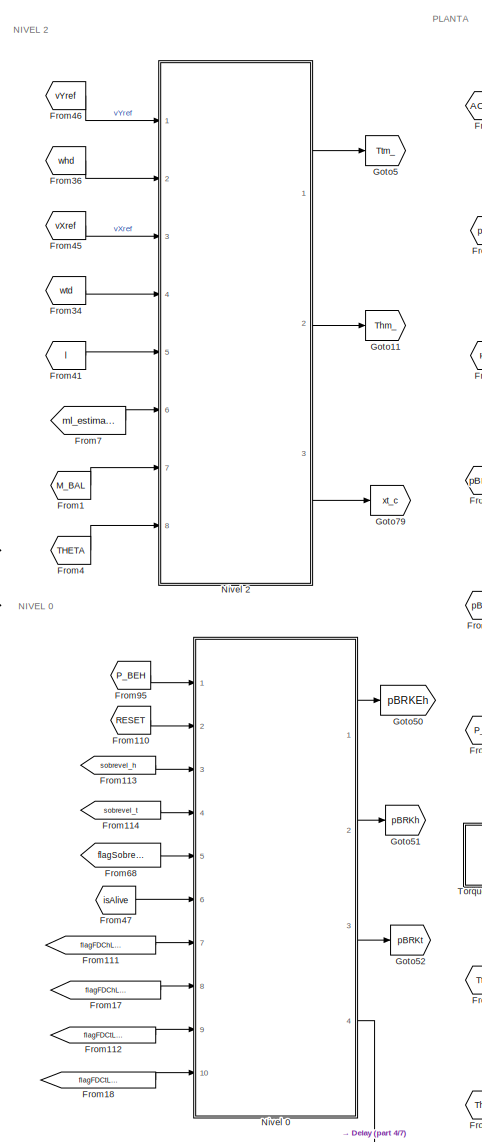
[diagram: root canvas - part 1/7, top right region]
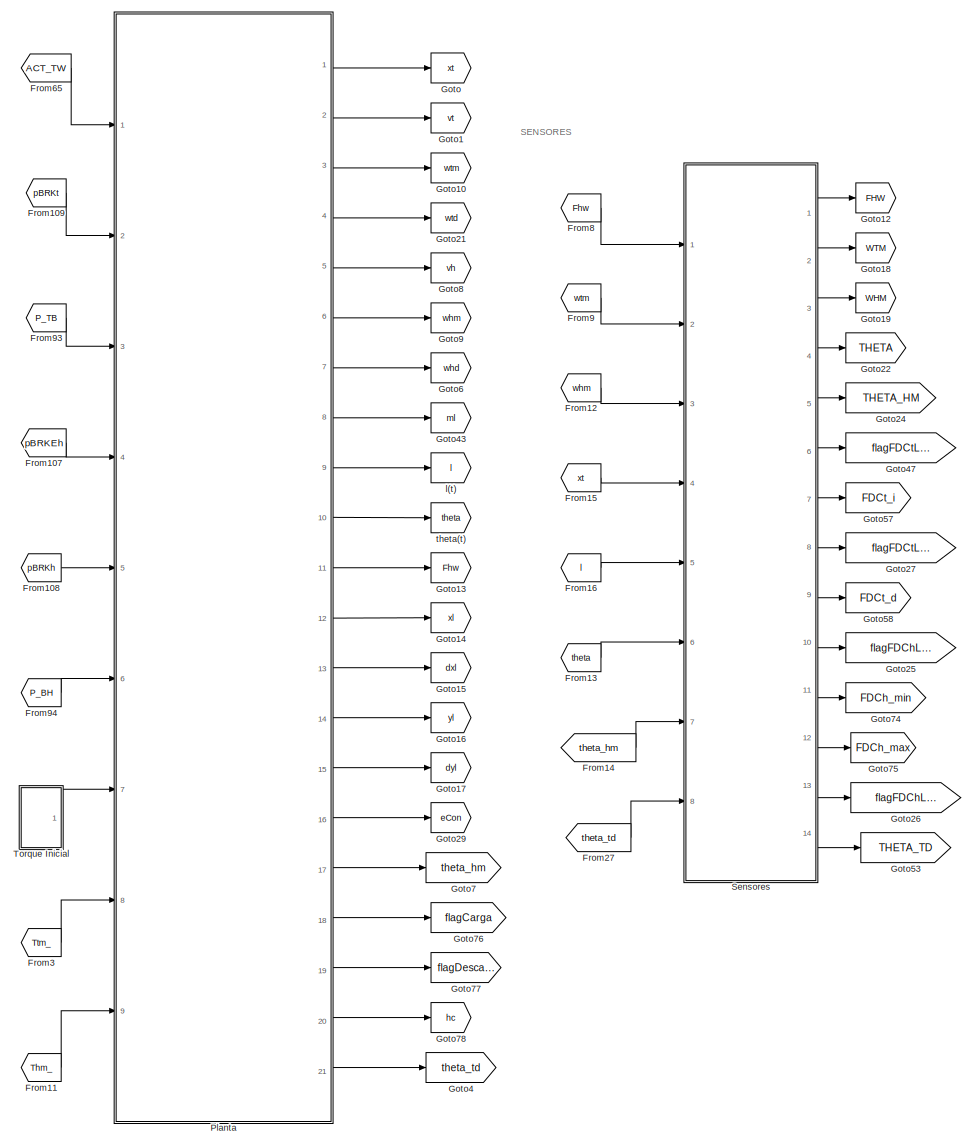
[diagram: root canvas - part 2/7, middle right region]
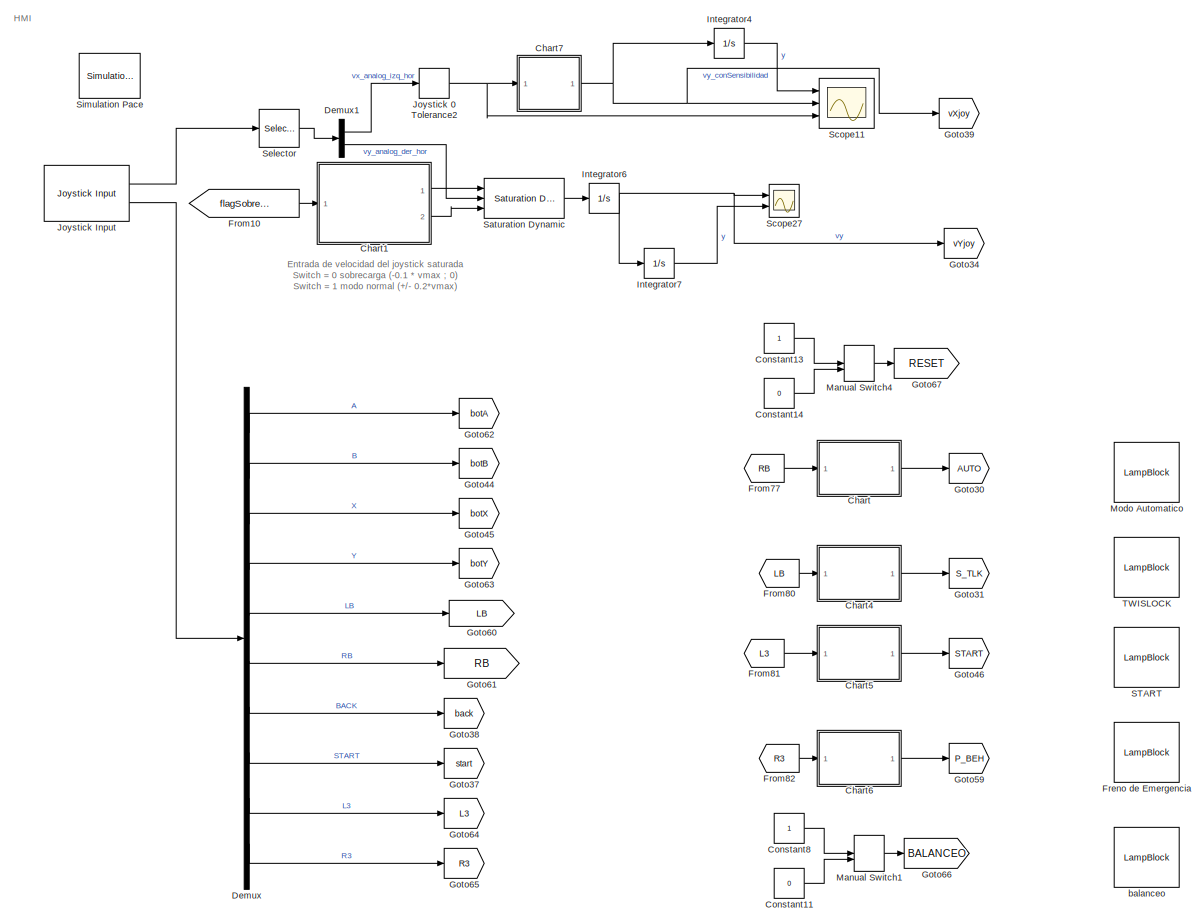
[diagram: root canvas - part 3/7, top left region]
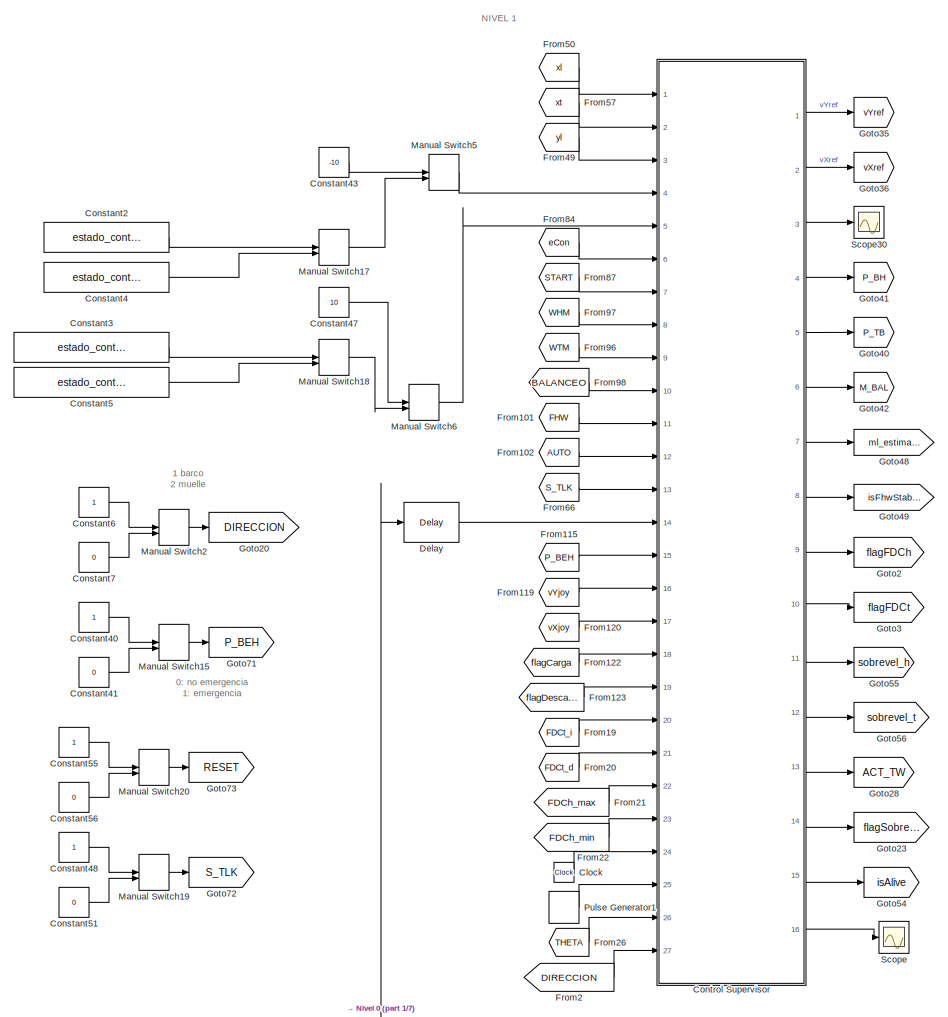
[diagram: root canvas - part 4/7, central region]
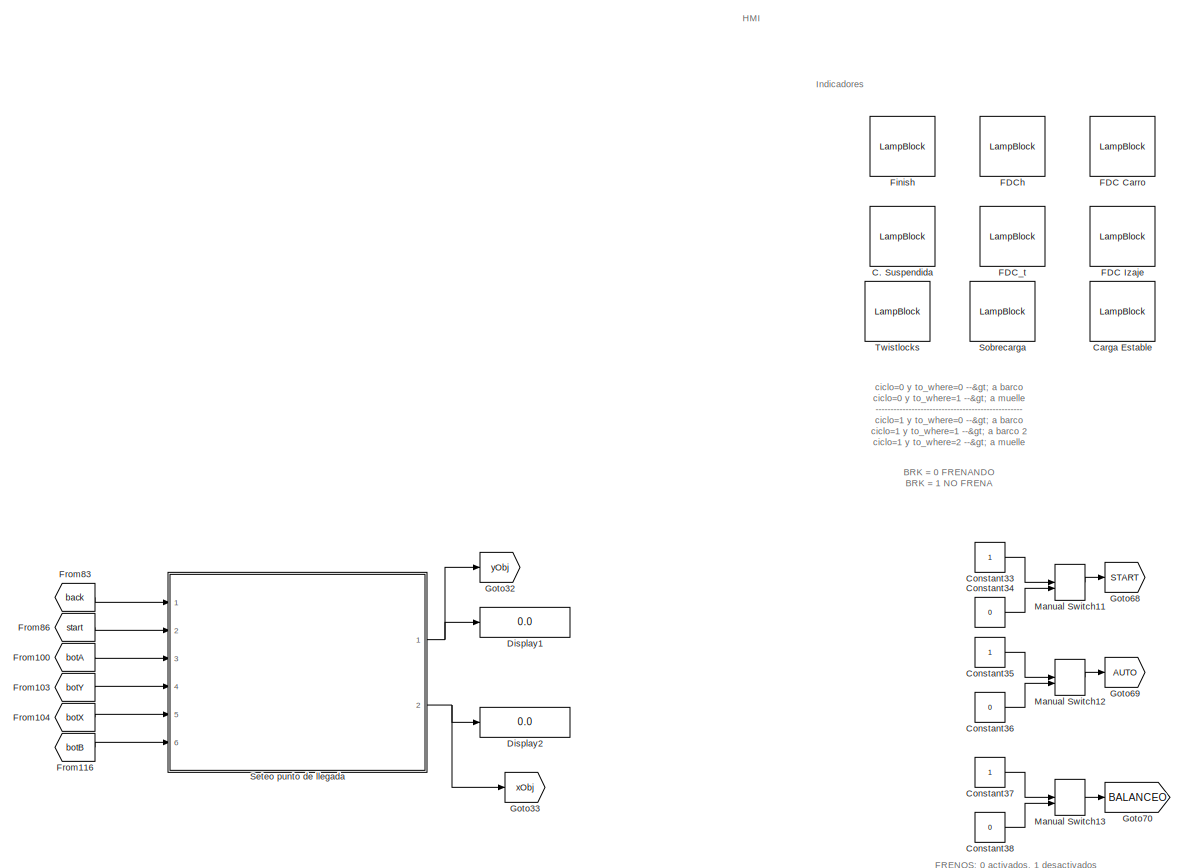
[diagram: root canvas - part 5/7, central region]
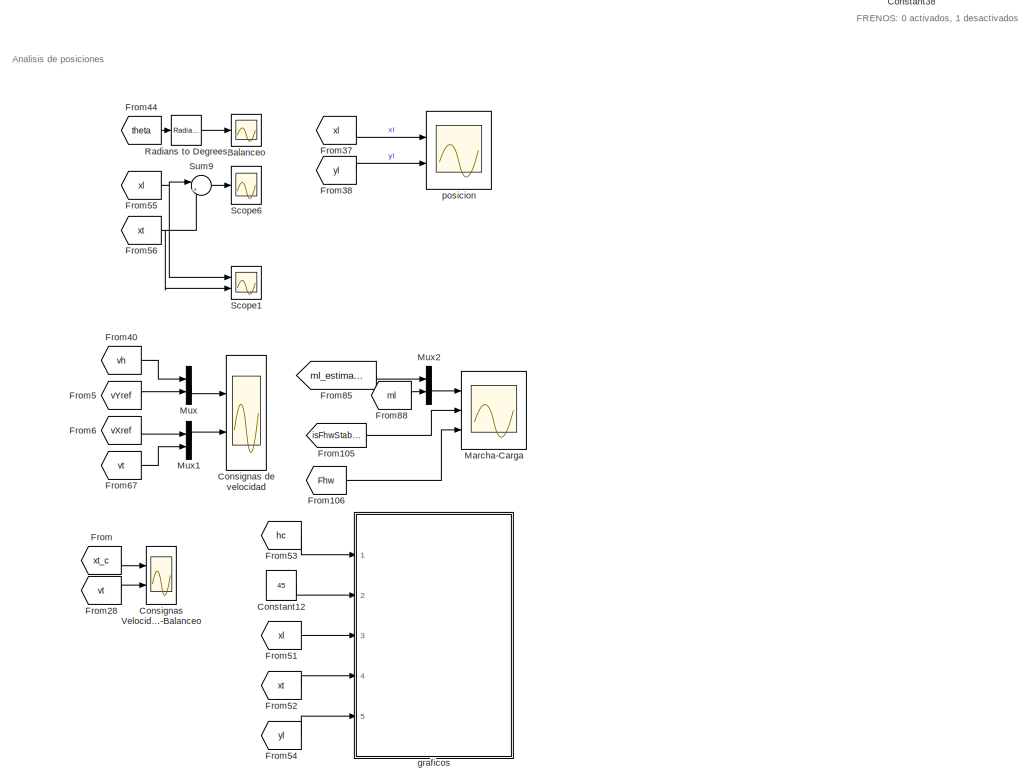
[diagram: root canvas - part 6/7, bottom center region]
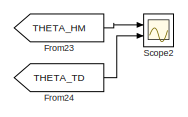
[diagram: root canvas - part 7/7, bottom center region]
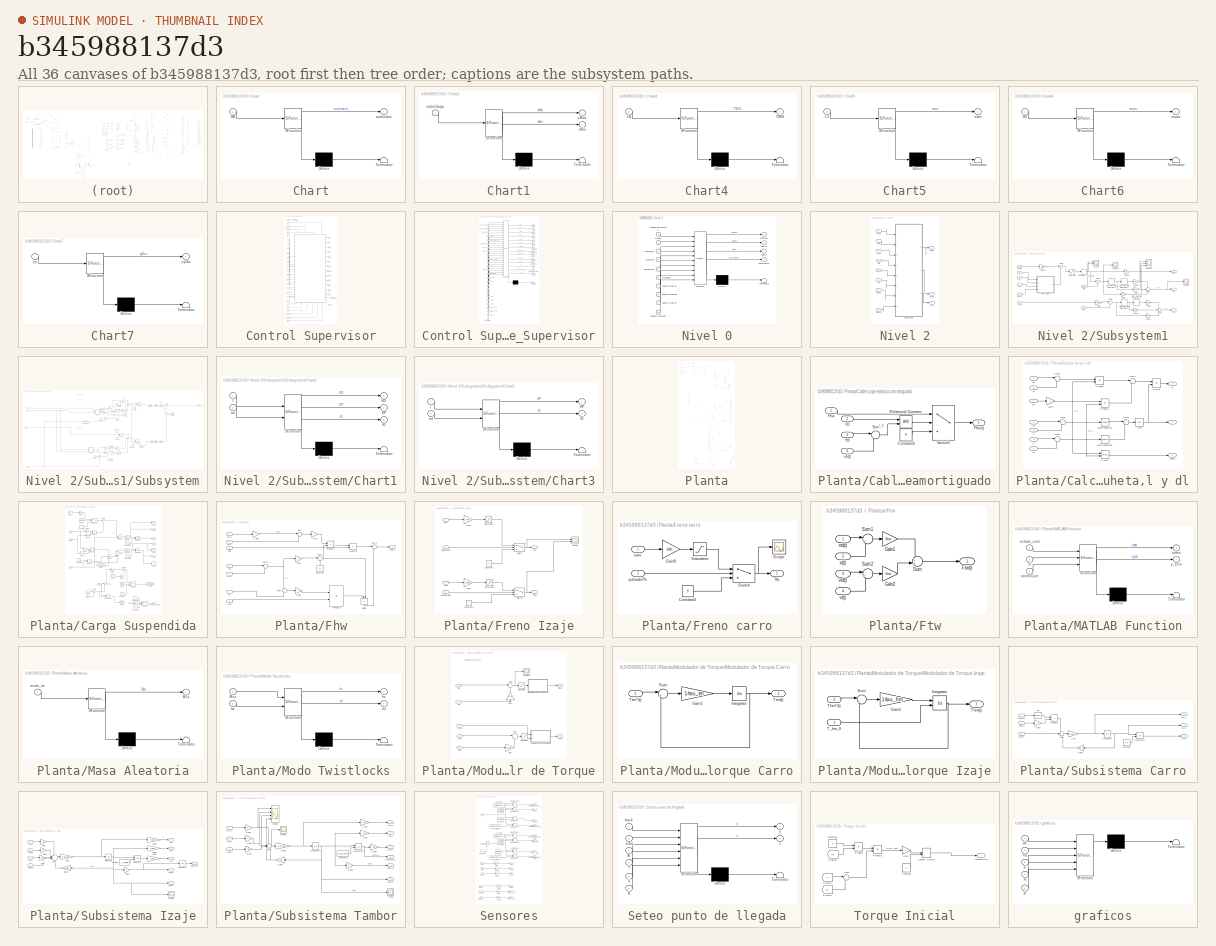
[diagram: thumbnail index - all 36 canvases of the model, root first then tree order]
MODEL slx_b345988137d3
KIND model
CONFIG AbsTol = auto
CONFIG EnableMultiTasking = off
CONFIG FixedStep = 0.002
CONFIG MaxStep = 1e-3
CONFIG MinStep = auto
CONFIG RelTol = 1e-4
CONFIG SampleTimeConstraint = Unconstrained
CONFIG SolverName = VariableStepAuto
CONFIG StartTime = 0.0
CONFIG StopTime = 120
WORKSPACE source: mxarray member
WORKSPACE VelMin = 0.5
WORKSPACE vMax = -0.3
BLOCK [Scope] Balanceo
  Floating = off
  NumInputPorts = 1
  Ports = [1]
  ScopeSpecificationString = Simulink.scopes.TimeScopeBlockCfg('CurrentConfiguration', extmgr.ConfigurationSet(extmgr.Configuration('Core','General UI',true,'FigureColor',[0.831372549019608 0.815686274509804 0.784313725490196]),extmgr.Configuration('Core','Source UI',true),extmgr.Configuration('Sources','WiredSimulink',true,'DataLoggingVariableName','ScopeData3'),extmgr.Configuration('Visuals','Time Domain',true,'SerializedDi...<+1961ch>
BLOCK [LampBlock] C. Suspendida
BLOCK [LampBlock] Carga Estable
BLOCK [SubSystem] Chart
  Commented = on
  ErrorFcn = Stateflow.Translate.translate
  PermitHierarchicalResolution = ExplicitOnly
  Ports = [1, 1]
  RequestExecContextInheritance = off
  SFBlockType = Chart
  TreatAsAtomicUnit = on
BLOCK [Demux] Chart/ Demux 
  Outputs = 1
  Ports = [1, 1]
BLOCK [S-Function] Chart/ SFunction 
  EnableBusSupport = on
  FunctionName = sf_sfun
  PortCounts = [1 2]
  Ports = [1, 2]
  SFcnIsStateOwnerBlock = off
  SFunctionDeploymentMode = off
  Tag = Stateflow S-Function 7
BLOCK [Terminator] Chart/ Terminator 
BLOCK [Inport] Chart/RB
BLOCK [Outport] Chart/automatic
BLOCK [SubSystem] Chart1
  Commented = on
  ErrorFcn = Stateflow.Translate.translate
  PermitHierarchicalResolution = ExplicitOnly
  Ports = [1, 2]
  RequestExecContextInheritance = off
  SFBlockType = Chart
  TreatAsAtomicUnit = on
BLOCK [Demux] Chart1/ Demux 
  Outputs = 1
  Ports = [1, 1]
BLOCK [S-Function] Chart1/ SFunction 
  EnableBusSupport = on
  FunctionName = sf_sfun
  Parameters = vh_max
  PortCounts = [1 3]
  Ports = [1, 3]
  SFcnIsStateOwnerBlock = off
  SFunctionDeploymentMode = off
  Tag = Stateflow S-Function 3
BLOCK [Terminator] Chart1/ Terminator 
BLOCK [Inport] Chart1/sobreCarga
BLOCK [Outport] Chart1/vMax
BLOCK [Outport] Chart1/vMin
  Port = 2
BLOCK [SubSystem] Chart4
  Commented = on
  ErrorFcn = Stateflow.Translate.translate
  PermitHierarchicalResolution = ExplicitOnly
  Ports = [1, 1]
  RequestExecContextInheritance = off
  SFBlockType = Chart
  TreatAsAtomicUnit = on
BLOCK [Demux] Chart4/ Demux 
  Outputs = 1
  Ports = [1, 1]
BLOCK [S-Function] Chart4/ SFunction 
  EnableBusSupport = on
  FunctionName = sf_sfun
  PortCounts = [1 2]
  Ports = [1, 2]
  SFcnIsStateOwnerBlock = off
  SFunctionDeploymentMode = off
  Tag = Stateflow S-Function 13
BLOCK [Terminator] Chart4/ Terminator 
BLOCK [Inport] Chart4/LB
BLOCK [Outport] Chart4/TWIS
BLOCK [SubSystem] Chart5
  Commented = on
  ErrorFcn = Stateflow.Translate.translate
  PermitHierarchicalResolution = ExplicitOnly
  Ports = [1, 1]
  RequestExecContextInheritance = off
  SFBlockType = Chart
  TreatAsAtomicUnit = on
BLOCK [Demux] Chart5/ Demux 
  Outputs = 1
  Ports = [1, 1]
BLOCK [S-Function] Chart5/ SFunction 
  EnableBusSupport = on
  FunctionName = sf_sfun
  PortCounts = [1 2]
  Ports = [1, 2]
  SFcnIsStateOwnerBlock = off
  SFunctionDeploymentMode = off
  Tag = Stateflow S-Function 17
BLOCK [Terminator] Chart5/ Terminator 
BLOCK [Inport] Chart5/L3
BLOCK [Outport] Chart5/start
BLOCK [SubSystem] Chart6
  Commented = on
  ErrorFcn = Stateflow.Translate.translate
  PermitHierarchicalResolution = ExplicitOnly
  Ports = [1, 1]
  RequestExecContextInheritance = off
  SFBlockType = Chart
  TreatAsAtomicUnit = on
BLOCK [Demux] Chart6/ Demux 
  Outputs = 1
  Ports = [1, 1]
BLOCK [S-Function] Chart6/ SFunction 
  EnableBusSupport = on
  FunctionName = sf_sfun
  PortCounts = [1 2]
  Ports = [1, 2]
  SFcnIsStateOwnerBlock = off
  SFunctionDeploymentMode = off
  Tag = Stateflow S-Function 18
BLOCK [Terminator] Chart6/ Terminator 
BLOCK [Inport] Chart6/R3
BLOCK [Outport] Chart6/modo
BLOCK [SubSystem] Chart7
  Commented = on
  ErrorFcn = Stateflow.Translate.translate
  PermitHierarchicalResolution = ExplicitOnly
  Ports = [1, 1]
  RequestExecContextInheritance = off
  SFBlockType = Chart
  TreatAsAtomicUnit = on
BLOCK [Demux] Chart7/ Demux 
  Outputs = 1
  Ports = [1, 1]
BLOCK [S-Function] Chart7/ SFunction 
  EnableBusSupport = on
  FunctionName = sf_sfun
  PortCounts = [1 2]
  Ports = [1, 2]
  SFcnIsStateOwnerBlock = off
  SFunctionDeploymentMode = off
  Tag = Stateflow S-Function 19
BLOCK [Terminator] Chart7/ Terminator 
BLOCK [Inport] Chart7/vy
BLOCK [Outport] Chart7/vyOut
BLOCK [Clock] Clock
BLOCK [Scope] Consignas Velocidad-Balanceo
  Floating = off
  NumInputPorts = 2
  Ports = [2]
  ScopeSpecificationString = Simulink.scopes.TimeScopeBlockCfg('CurrentConfiguration', extmgr.ConfigurationSet(extmgr.Configuration('Core','General UI',true,'FigureColor',[0.8 0.8 0.8]),extmgr.Configuration('Core','Source UI',true),extmgr.Configuration('Sources','WiredSimulink',true,'DataLoggingVariableName','ScopeData2'),extmgr.Configuration('Visuals','Time Domain',true,'SerializedDisplays',{struct('MinYLimReal','-1.3367','M...<+1699ch>
BLOCK [Scope] Consignas de velocidad
  Floating = off
  NumInputPorts = 2
  Ports = [2]
  ScopeSpecificationString = Simulink.scopes.TimeScopeBlockCfg('CurrentConfiguration', extmgr.ConfigurationSet(extmgr.Configuration('Core','General UI',true,'FigureColor',[0.831372549019608 0.815686274509804 0.784313725490196]),extmgr.Configuration('Core','Source UI',true),extmgr.Configuration('Sources','WiredSimulink',true,'DataLoggingVariableName','ScopeData1'),extmgr.Configuration('Visuals','Time Domain',true,'SerializedDi...<+2383ch>
BLOCK [Constant] Constant11
  Commented = on
  Value = 0
BLOCK [Constant] Constant12
  Commented = on
  Value = 45
BLOCK [Constant] Constant13
  Commented = on
BLOCK [Constant] Constant14
  Commented = on
  Value = 0
BLOCK [Constant] Constant2
  Value = estado_cont(1,23)
BLOCK [Constant] Constant3
  Value = estado_cont(2,23)+2*hx_cont
BLOCK [Constant] Constant33
BLOCK [Constant] Constant34
  Value = 0
BLOCK [Constant] Constant35
BLOCK [Constant] Constant36
  Value = 0
BLOCK [Constant] Constant37
BLOCK [Constant] Constant38
  Value = 0
BLOCK [Constant] Constant4
  Value = estado_cont(1,28)
BLOCK [Constant] Constant40
BLOCK [Constant] Constant41
  Value = 0
BLOCK [Constant] Constant43
  Value = -10
BLOCK [Constant] Constant47
  Value = 10
BLOCK [Constant] Constant48
BLOCK [Constant] Constant5
  Value = estado_cont(2,28)+2*hx_cont
BLOCK [Constant] Constant51
  Value = 0
BLOCK [Constant] Constant55
BLOCK [Constant] Constant56
  Value = 0
BLOCK [Constant] Constant6
BLOCK [Constant] Constant7
  Value = 0
BLOCK [Constant] Constant8
  Commented = on
BLOCK [SubSystem] Control Supervisor
  Ports = [27, 16]
  RequestExecContextInheritance = off
  SystemSampleTime = 0.02
  TreatAsAtomicUnit = on
BLOCK [Inport] Control Supervisor/AUTO
  Port = 12
BLOCK [Outport] Control Supervisor/BRKh
  Port = 4
BLOCK [Outport] Control Supervisor/BRKt
  Port = 5
BLOCK [Inport] Control Supervisor/Emergencia
  Port = 14
BLOCK [Inport] Control Supervisor/FDCh_max
  Port = 22
BLOCK [Inport] Control Supervisor/FDCh_min
  Port = 23
BLOCK [Inport] Control Supervisor/FDCt_d
  Port = 21
BLOCK [Inport] Control Supervisor/FDCt_i
  Port = 20
BLOCK [Outport] Control Supervisor/FINISH
  Port = 3
BLOCK [Inport] Control Supervisor/Fhw
  Port = 11
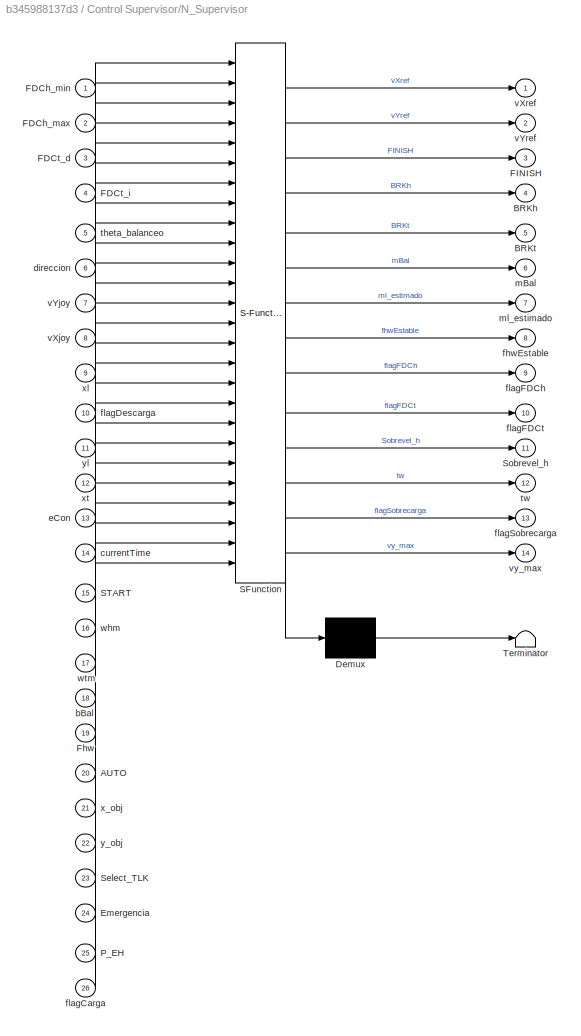
BLOCK [SubSystem] Control Supervisor/N_Supervisor
  ErrorFcn = Stateflow.Translate.translate
  PermitHierarchicalResolution = ExplicitOnly
  PortSchema = {"entries":[{"content":{"sides":[{"content":{"connectorIds":["In14","In12","In9","In11","In13","In20","In21","In15","In16","In17","In18","In19","In22","In23","In24","In25"]},"type":"ConnectorPlacement.EquallySpacedRectSide","uuid":"7754e6e1-1487-4c5e-b93c-5b95548dc503"},{"content":{"connectorIds":["Out1","Out2","Out3","Out4","Out5","Out6","Out7","Out8","Out9","Out10","Out11","Out12","Out13","Out14...<+645ch>
  Ports = [26, 14]
  RequestExecContextInheritance = off
  SFBlockType = Chart
  TreatAsAtomicUnit = on
BLOCK [Demux] Control Supervisor/N_Supervisor/ Demux 
  Outputs = 1
  Ports = [1, 1]
BLOCK [S-Function] Control Supervisor/N_Supervisor/ SFunction 
  EnableBusSupport = on
  FunctionName = sf_sfun
  Parameters = FhwMin,Hc,Mc_max,Ms,ax_max,ay_max,estado_cont,g,hx_cont,pos,vhmax,vx_max,whmMax,whmMin,wtmMax,wtmMin,xLimMax,xLimMin,yLimMax,yLimMin
  PortCounts = [26 15]
  Ports = [26, 15]
  SFcnIsStateOwnerBlock = off
  SFunctionDeploymentMode = off
  Tag = Stateflow S-Function 15
BLOCK [Terminator] Control Supervisor/N_Supervisor/ Terminator 
BLOCK [Inport] Control Supervisor/N_Supervisor/AUTO
  Port = 20
BLOCK [Outport] Control Supervisor/N_Supervisor/BRKh
  Port = 4
BLOCK [Outport] Control Supervisor/N_Supervisor/BRKt
  Port = 5
BLOCK [Inport] Control Supervisor/N_Supervisor/Emergencia
  Port = 24
BLOCK [Inport] Control Supervisor/N_Supervisor/FDCh_max
  Port = 2
BLOCK [Inport] Control Supervisor/N_Supervisor/FDCh_min
BLOCK [Inport] Control Supervisor/N_Supervisor/FDCt_d
  Port = 3
BLOCK [Inport] Control Supervisor/N_Supervisor/FDCt_i
  Port = 4
BLOCK [Outport] Control Supervisor/N_Supervisor/FINISH
  Port = 3
BLOCK [Inport] Control Supervisor/N_Supervisor/Fhw
  Port = 19
BLOCK [Inport] Control Supervisor/N_Supervisor/P_EH
  Port = 25
BLOCK [Inport] Control Supervisor/N_Supervisor/START
  Port = 15
BLOCK [Inport] Control Supervisor/N_Supervisor/Select_TLK
  Port = 23
BLOCK [Outport] Control Supervisor/N_Supervisor/Sobrevel_h
  Port = 11
BLOCK [Inport] Control Supervisor/N_Supervisor/bBal
  Port = 18
BLOCK [Inport] Control Supervisor/N_Supervisor/currentTime
  Port = 14
BLOCK [Inport] Control Supervisor/N_Supervisor/direccion
  Port = 6
BLOCK [Inport] Control Supervisor/N_Supervisor/eCon
  Port = 13
BLOCK [Outport] Control Supervisor/N_Supervisor/fhwEstable
  Port = 8
BLOCK [Inport] Control Supervisor/N_Supervisor/flagCarga
  Port = 26
BLOCK [Inport] Control Supervisor/N_Supervisor/flagDescarga
  Port = 10
BLOCK [Outport] Control Supervisor/N_Supervisor/flagFDCh
  Port = 9
BLOCK [Outport] Control Supervisor/N_Supervisor/flagFDCt
  Port = 10
BLOCK [Outport] Control Supervisor/N_Supervisor/flagSobrecarga
  Port = 13
BLOCK [Outport] Control Supervisor/N_Supervisor/mBal
  Port = 6
BLOCK [Outport] Control Supervisor/N_Supervisor/ml_estimado
  Port = 7
BLOCK [Inport] Control Supervisor/N_Supervisor/theta_balanceo
  Port = 5
BLOCK [Outport] Control Supervisor/N_Supervisor/tw
  Port = 12
BLOCK [Inport] Control Supervisor/N_Supervisor/vXjoy
  Port = 8
BLOCK [Outport] Control Supervisor/N_Supervisor/vXref
BLOCK [Inport] Control Supervisor/N_Supervisor/vYjoy
  Port = 7
BLOCK [Outport] Control Supervisor/N_Supervisor/vYref
  Port = 2
BLOCK [Outport] Control Supervisor/N_Supervisor/vy_max
  Port = 14
BLOCK [Inport] Control Supervisor/N_Supervisor/whm
  Port = 16
BLOCK [Inport] Control Supervisor/N_Supervisor/wtm
  Port = 17
BLOCK [Inport] Control Supervisor/N_Supervisor/x_obj
  Port = 21
BLOCK [Inport] Control Supervisor/N_Supervisor/xl
  Port = 9
BLOCK [Inport] Control Supervisor/N_Supervisor/xt
  Port = 12
BLOCK [Inport] Control Supervisor/N_Supervisor/y_obj
  Port = 22
BLOCK [Inport] Control Supervisor/N_Supervisor/yl
  Port = 11
BLOCK [Inport] Control Supervisor/P_EH
  Port = 15
BLOCK [Inport] Control Supervisor/Pulso
  Port = 25
BLOCK [Inport] Control Supervisor/START
  Port = 7
BLOCK [Inport] Control Supervisor/Select_TLK
  Port = 13
BLOCK [Outport] Control Supervisor/Sobrevel_h
  Port = 11
BLOCK [Outport] Control Supervisor/Sobrevel_t
  Port = 12
BLOCK [Inport] Control Supervisor/bBal
  Port = 10
BLOCK [Inport] Control Supervisor/direccion
  Port = 27
BLOCK [Inport] Control Supervisor/eCon
  Port = 6
BLOCK [Outport] Control Supervisor/fhwEstable
  Port = 8
BLOCK [Inport] Control Supervisor/flagCarga
  Port = 18
BLOCK [Inport] Control Supervisor/flagDescarga
  Port = 19
BLOCK [Outport] Control Supervisor/flagFDCh
  Port = 9
BLOCK [Outport] Control Supervisor/flagFDCt
  Port = 10
BLOCK [Outport] Control Supervisor/flagSobrecarga
  Port = 14
BLOCK [Outport] Control Supervisor/mBal
  Port = 6
BLOCK [Outport] Control Supervisor/ml_estimado
  Port = 7
BLOCK [Inport] Control Supervisor/theta_balanceo
  Port = 26
BLOCK [Inport] Control Supervisor/time
  Port = 24
BLOCK [Outport] Control Supervisor/tw
  Port = 13
BLOCK [Inport] Control Supervisor/vXjoy
  Port = 17
BLOCK [Outport] Control Supervisor/vXref
  Port = 2
BLOCK [Inport] Control Supervisor/vYjoy
  Port = 16
BLOCK [Outport] Control Supervisor/vYref
BLOCK [Outport] Control Supervisor/vy_max
  Port = 16
BLOCK [Outport] Control Supervisor/wd_signal
  Port = 15
BLOCK [Inport] Control Supervisor/whm
  Port = 8
BLOCK [Inport] Control Supervisor/wtm
  Port = 9
BLOCK [Inport] Control Supervisor/x_obj
  Port = 4
BLOCK [Inport] Control Supervisor/xl
BLOCK [Inport] Control Supervisor/xt
  Port = 2
BLOCK [Inport] Control Supervisor/y_obj
  Port = 5
BLOCK [Inport] Control Supervisor/yl
  Port = 3
BLOCK [Delay] Delay
  DelayLength = 1
  InputPortMap = u0
  InputProcessing = Columns as channels (frame based)
  Ports = [1, 1]
BLOCK [Demux] Demux
  Commented = on
  Outputs = 10
  Ports = [1, 10]
BLOCK [Demux] Demux1
  Commented = on
  Outputs = 2
  Ports = [1, 2]
BLOCK [Display] Display1
  Commented = on
  Decimation = 1
  Ports = [1]
BLOCK [Display] Display2
  Commented = on
  Decimation = 1
  Ports = [1]
BLOCK [LampBlock] FDC Carro
BLOCK [LampBlock] FDC Izaje
BLOCK [LampBlock] FDC_t
BLOCK [LampBlock] FDCh
BLOCK [LampBlock] Finish
BLOCK [LampBlock] Freno de Emergencia
  Commented = on
  LabelPosition = Hide
BLOCK [From] From
  GotoTag = xt_c
BLOCK [From] From1
  GotoTag = M_BAL
BLOCK [From] From10
  Commented = on
  GotoTag = flagSobrecarga
BLOCK [From] From100
  Commented = on
  GotoTag = botA
BLOCK [From] From101
  GotoTag = FHW
BLOCK [From] From102
  GotoTag = AUTO
BLOCK [From] From103
  Commented = on
  GotoTag = botY
BLOCK [From] From104
  Commented = on
  GotoTag = botX
BLOCK [From] From105
  GotoTag = isFhwStable
BLOCK [From] From106
  GotoTag = Fhw
BLOCK [From] From107
  GotoTag = pBRKEh
BLOCK [From] From108
  GotoTag = pBRKh
BLOCK [From] From109
  GotoTag = pBRKt
BLOCK [From] From11
  GotoTag = Thm_
BLOCK [From] From110
  GotoTag = RESET
BLOCK [From] From111
  GotoTag = flagFDChLimInf
BLOCK [From] From112
  GotoTag = flagFDCtLimInf
BLOCK [From] From113
  GotoTag = sobrevel_h
BLOCK [From] From114
  GotoTag = sobrevel_t
BLOCK [From] From115
  GotoTag = P_BEH
BLOCK [From] From116
  Commented = on
  GotoTag = botB
BLOCK [From] From119
  GotoTag = vYjoy
BLOCK [From] From12
  GotoTag = whm
BLOCK [From] From120
  GotoTag = vXjoy
BLOCK [From] From122
  GotoTag = flagCarga
BLOCK [From] From123
  GotoTag = flagDescarga
BLOCK [From] From13
  GotoTag = theta
BLOCK [From] From14
  GotoTag = theta_hm
BLOCK [From] From15
  GotoTag = xt
BLOCK [From] From16
  GotoTag = l
BLOCK [From] From17
  GotoTag = flagFDChLimSup
BLOCK [From] From18
  GotoTag = flagFDCtLimSup
BLOCK [From] From19
  GotoTag = FDCt_i
BLOCK [From] From2
  GotoTag = DIRECCION
BLOCK [From] From20
  GotoTag = FDCt_d
BLOCK [From] From21
  GotoTag = FDCh_max
BLOCK [From] From22
  GotoTag = FDCh_min
BLOCK [From] From23
  GotoTag = THETA_HM
BLOCK [From] From24
  GotoTag = THETA_TD
BLOCK [From] From26
  GotoTag = THETA
BLOCK [From] From27
  GotoTag = theta_td
BLOCK [From] From28
  GotoTag = vt
BLOCK [From] From3
  GotoTag = Ttm_
BLOCK [From] From34
  GotoTag = wtd
BLOCK [From] From36
  GotoTag = whd
BLOCK [From] From37
  GotoTag = xl
BLOCK [From] From38
  GotoTag = yl
BLOCK [From] From4
  GotoTag = THETA
BLOCK [From] From40
  GotoTag = vh
BLOCK [From] From41
  GotoTag = l
BLOCK [From] From44
  GotoTag = theta
BLOCK [From] From45
  GotoTag = vXref
BLOCK [From] From46
  GotoTag = vYref
BLOCK [From] From47
  GotoTag = isAlive
BLOCK [From] From49
  GotoTag = yl
BLOCK [From] From5
  GotoTag = vYref
BLOCK [From] From50
  GotoTag = xl
BLOCK [From] From51
  Commented = on
  GotoTag = xl
BLOCK [From] From52
  Commented = on
  GotoTag = xt
BLOCK [From] From53
  Commented = on
  GotoTag = hc
BLOCK [From] From54
  Commented = on
  GotoTag = yl
BLOCK [From] From55
  GotoTag = xl
BLOCK [From] From56
  GotoTag = xt
BLOCK [From] From57
  GotoTag = xt
BLOCK [From] From6
  GotoTag = vXref
BLOCK [From] From65
  GotoTag = ACT_TW
BLOCK [From] From66
  GotoTag = S_TLK
BLOCK [From] From67
  GotoTag = vt
BLOCK [From] From68
  GotoTag = flagSobrecarga
BLOCK [From] From7
  GotoTag = ml_estimado
BLOCK [From] From77
  Commented = on
  GotoTag = RB
BLOCK [From] From8
  GotoTag = Fhw
BLOCK [From] From80
  Commented = on
  GotoTag = LB
BLOCK [From] From81
  Commented = on
  GotoTag = L3
BLOCK [From] From82
  Commented = on
  GotoTag = R3
BLOCK [From] From83
  Commented = on
  GotoTag = back
BLOCK [From] From84
  GotoTag = eCon
BLOCK [From] From85
  GotoTag = ml_estimado
BLOCK [From] From86
  Commented = on
  GotoTag = start
BLOCK [From] From87
  GotoTag = START
BLOCK [From] From88
  GotoTag = ml
BLOCK [From] From9
  GotoTag = wtm
BLOCK [From] From93
  GotoTag = P_TB
BLOCK [From] From94
  GotoTag = P_BH
BLOCK [From] From95
  GotoTag = P_BEH
BLOCK [From] From96
  GotoTag = WTM
BLOCK [From] From97
  GotoTag = WHM
BLOCK [From] From98
  GotoTag = BALANCEO
BLOCK [Goto] Goto
  GotoTag = xt
BLOCK [Goto] Goto1
  GotoTag = vt
BLOCK [Goto] Goto10
  GotoTag = wtm
BLOCK [Goto] Goto11
  GotoTag = Thm_
BLOCK [Goto] Goto12
  GotoTag = FHW
BLOCK [Goto] Goto13
  GotoTag = Fhw
BLOCK [Goto] Goto14
  GotoTag = xl
BLOCK [Goto] Goto15
  GotoTag = dxl
BLOCK [Goto] Goto16
  GotoTag = yl
BLOCK [Goto] Goto17
  GotoTag = dyl
BLOCK [Goto] Goto18
  GotoTag = WTM
BLOCK [Goto] Goto19
  GotoTag = WHM
BLOCK [Goto] Goto2
  GotoTag = flagFDCh
BLOCK [Goto] Goto20
  GotoTag = DIRECCION
BLOCK [Goto] Goto21
  GotoTag = wtd
BLOCK [Goto] Goto22
  GotoTag = THETA
BLOCK [Goto] Goto23
  GotoTag = flagSobrecarga
BLOCK [Goto] Goto24
  GotoTag = THETA_HM
BLOCK [Goto] Goto25
  GotoTag = flagFDChLimInf
BLOCK [Goto] Goto26
  GotoTag = flagFDChLimSup
BLOCK [Goto] Goto27
  GotoTag = flagFDCtLimSup
BLOCK [Goto] Goto28
  GotoTag = ACT_TW
BLOCK [Goto] Goto29
  GotoTag = eCon
BLOCK [Goto] Goto3
  GotoTag = flagFDCt
BLOCK [Goto] Goto30
  Commented = on
  GotoTag = AUTO
BLOCK [Goto] Goto31
  Commented = on
  GotoTag = S_TLK
BLOCK [Goto] Goto32
  Commented = on
  GotoTag = yObj
BLOCK [Goto] Goto33
  Commented = on
  GotoTag = xObj
BLOCK [Goto] Goto34
  Commented = on
  GotoTag = vYjoy
BLOCK [Goto] Goto35
  GotoTag = vYref
BLOCK [Goto] Goto36
  GotoTag = vXref
BLOCK [Goto] Goto37
  Commented = on
  GotoTag = start
BLOCK [Goto] Goto38
  Commented = on
  GotoTag = back
BLOCK [Goto] Goto39
  Commented = on
  GotoTag = vXjoy
BLOCK [Goto] Goto4
  GotoTag = theta_td
BLOCK [Goto] Goto40
  GotoTag = P_TB
BLOCK [Goto] Goto41
  GotoTag = P_BH
BLOCK [Goto] Goto42
  GotoTag = M_BAL
BLOCK [Goto] Goto43
  GotoTag = ml
BLOCK [Goto] Goto44
  Commented = on
  GotoTag = botB
BLOCK [Goto] Goto45
  Commented = on
  GotoTag = botX
BLOCK [Goto] Goto46
  Commented = on
  GotoTag = START
BLOCK [Goto] Goto47
  GotoTag = flagFDCtLimInf
BLOCK [Goto] Goto48
  GotoTag = ml_estimado
BLOCK [Goto] Goto49
  GotoTag = isFhwStable
BLOCK [Goto] Goto5
  GotoTag = Ttm_
BLOCK [Goto] Goto50
  GotoTag = pBRKEh
BLOCK [Goto] Goto51
  GotoTag = pBRKh
BLOCK [Goto] Goto52
  GotoTag = pBRKt
BLOCK [Goto] Goto53
  GotoTag = THETA_TD
BLOCK [Goto] Goto54
  GotoTag = isAlive
BLOCK [Goto] Goto55
  GotoTag = sobrevel_h
BLOCK [Goto] Goto56
  GotoTag = sobrevel_t
BLOCK [Goto] Goto57
  GotoTag = FDCt_i
BLOCK [Goto] Goto58
  GotoTag = FDCt_d
BLOCK [Goto] Goto59
  Commented = on
  GotoTag = P_BEH
BLOCK [Goto] Goto6
  GotoTag = whd
BLOCK [Goto] Goto60
  Commented = on
  GotoTag = LB
BLOCK [Goto] Goto61
  Commented = on
  GotoTag = RB
BLOCK [Goto] Goto62
  Commented = on
  GotoTag = botA
BLOCK [Goto] Goto63
  Commented = on
  GotoTag = botY
BLOCK [Goto] Goto64
  Commented = on
  GotoTag = L3
BLOCK [Goto] Goto65
  Commented = on
  GotoTag = R3
BLOCK [Goto] Goto66
  Commented = on
  GotoTag = BALANCEO
BLOCK [Goto] Goto67
  Commented = on
  GotoTag = RESET
BLOCK [Goto] Goto68
  GotoTag = START
BLOCK [Goto] Goto69
  GotoTag = AUTO
BLOCK [Goto] Goto7
  GotoTag = theta_hm
BLOCK [Goto] Goto70
  GotoTag = BALANCEO
BLOCK [Goto] Goto71
  GotoTag = P_BEH
BLOCK [Goto] Goto72
  GotoTag = S_TLK
BLOCK [Goto] Goto73
  GotoTag = RESET
BLOCK [Goto] Goto74
  GotoTag = FDCh_min
BLOCK [Goto] Goto75
  GotoTag = FDCh_max
BLOCK [Goto] Goto76
  GotoTag = flagCarga
BLOCK [Goto] Goto77
  GotoTag = flagDescarga
BLOCK [Goto] Goto78
  GotoTag = hc
BLOCK [Goto] Goto79
  GotoTag = xt_c
BLOCK [Goto] Goto8
  GotoTag = vh
BLOCK [Goto] Goto9
  GotoTag = whm
BLOCK [Integrator] Integrator4
  Commented = on
  Ports = [1, 1]
BLOCK [Integrator] Integrator6
  Commented = on
  InitialCondition = [0]
  LimitOutput = on
  LowerSaturationLimit = [-3.5]
  Ports = [1, 1]
  UpperSaturationLimit = [3.5]
BLOCK [Integrator] Integrator7
  Commented = on
  Ports = [1, 1]
BLOCK [DeadZone] Joystick 0 Tolerance2
  Commented = on
  LowerValue = -0.2
  UpperValue = 0.2
BLOCK [Reference] Joystick Input  REF=vrlib/Joystick Input
  Commented = on
  Ports = [0, 2]
  SourceBlock = vrlib/Joystick Input
  SourceProductBaseCode = SL
  SourceType = Joystick Input
BLOCK [ManualSwitch] Manual Switch1
  Commented = on
BLOCK [ManualSwitch] Manual Switch11
BLOCK [ManualSwitch] Manual Switch12
BLOCK [ManualSwitch] Manual Switch13
BLOCK [ManualSwitch] Manual Switch15
  CurrentSetting = 0
BLOCK [ManualSwitch] Manual Switch17
BLOCK [ManualSwitch] Manual Switch18
BLOCK [ManualSwitch] Manual Switch19
BLOCK [ManualSwitch] Manual Switch2
BLOCK [ManualSwitch] Manual Switch20
  CurrentSetting = 0
BLOCK [ManualSwitch] Manual Switch4
  Commented = on
  CurrentSetting = 0
BLOCK [ManualSwitch] Manual Switch5
  CurrentSetting = 0
BLOCK [ManualSwitch] Manual Switch6
  CurrentSetting = 0
BLOCK [Scope] Marcha-Carga
  Floating = off
  NumInputPorts = 3
  Ports = [3]
  ScopeSpecificationString = Simulink.scopes.TimeScopeBlockCfg('CurrentConfiguration', extmgr.ConfigurationSet(extmgr.Configuration('Core','General UI',true,'FigureColor',[0.831372549019608 0.815686274509804 0.784313725490196]),extmgr.Configuration('Core','Source UI',true),extmgr.Configuration('Sources','WiredSimulink',true,'DataLoggingVariableName','ScopeData1','DataLogging',true,'DataLoggingSaveFormat','StructureWithTime'),...<+3640ch>
BLOCK [LampBlock] Modo Automatico
  Commented = on
  LabelPosition = Hide
BLOCK [Mux] Mux
  DisplayOption = bar
  Inputs = 2
  Ports = [2, 1]
BLOCK [Mux] Mux1
  DisplayOption = bar
  Inputs = 2
  Ports = [2, 1]
BLOCK [Mux] Mux2
  DisplayOption = bar
  Inputs = 2
  Ports = [2, 1]
BLOCK [SubSystem] Nivel 0
  ErrorFcn = Stateflow.Translate.translate
  PermitHierarchicalResolution = ExplicitOnly
  Ports = [10, 4]
  RequestExecContextInheritance = off
  SFBlockType = Chart
  SystemSampleTime = 0.02
  TreatAsAtomicUnit = on
BLOCK [Demux] Nivel 0/ Demux 
  Outputs = 1
  Ports = [1, 1]
BLOCK [S-Function] Nivel 0/ SFunction 
  EnableBusSupport = on
  FunctionName = sf_sfun
  Parameters = WD_TIMEOUT
  PortCounts = [10 5]
  Ports = [10, 5]
  SFcnIsStateOwnerBlock = off
  SFunctionDeploymentMode = off
  Tag = Stateflow S-Function 12
BLOCK [Terminator] Nivel 0/ Terminator 
BLOCK [Outport] Nivel 0/Emergencia
  Port = 4
BLOCK [Inport] Nivel 0/RESET
  Port = 2
BLOCK [Inport] Nivel 0/flagFDChLimInf
  Port = 7
BLOCK [Inport] Nivel 0/flagFDChLimSup
  Port = 8
BLOCK [Inport] Nivel 0/flagFDCtLimInf
  Port = 9
BLOCK [Inport] Nivel 0/flagFDCtLimSup
  Port = 10
BLOCK [Outport] Nivel 0/pBRKEh
BLOCK [Outport] Nivel 0/pBRKh
  Port = 2
BLOCK [Outport] Nivel 0/pBRKt
  Port = 3
BLOCK [Inport] Nivel 0/pulsadorEmergencia
BLOCK [Inport] Nivel 0/sobrecarga
  Port = 5
BLOCK [Inport] Nivel 0/sobrevel_h
  Port = 3
BLOCK [Inport] Nivel 0/sobrevel_t
  Port = 4
BLOCK [Inport] Nivel 0/wd_signal
  Port = 6
BLOCK [SubSystem] Nivel 2
  Ports = [8, 3]
  RequestExecContextInheritance = off
  SystemSampleTime = 0.005
BLOCK [Inport] Nivel 2/M_BAL
  Port = 7
BLOCK [SubSystem] Nivel 2/Subsystem1
  Ports = [8, 3]
  RequestExecContextInheritance = off
  SystemSampleTime = 0.005
  TreatAsAtomicUnit = on
BLOCK [DiscreteIntegrator] Nivel 2/Subsystem1/Discrete-Time Integrator2
  ICPrevOutput = DiscIntNeverNeededParam
  ICPrevScaledInput = DiscIntNeverNeededParam
  InitialConditionSetting = Auto
  Ports = [1, 1]
  SampleTime = -1
BLOCK [DiscreteIntegrator] Nivel 2/Subsystem1/Discrete-Time Integrator3
  ICPrevOutput = DiscIntNeverNeededParam
  ICPrevScaledInput = DiscIntNeverNeededParam
  InitialConditionSetting = Auto
  Ports = [1, 1]
  SampleTime = -1
BLOCK [DiscreteIntegrator] Nivel 2/Subsystem1/Discrete-Time Integrator4
  ICPrevOutput = DiscIntNeverNeededParam
  ICPrevScaledInput = DiscIntNeverNeededParam
  InitialConditionSetting = Auto
  Ports = [1, 1]
  SampleTime = -1
BLOCK [DiscreteIntegrator] Nivel 2/Subsystem1/Discrete-Time Integrator5
  ICPrevOutput = DiscIntNeverNeededParam
  ICPrevScaledInput = DiscIntNeverNeededParam
  InitialConditionSetting = Auto
  Ports = [1, 1]
  SampleTime = -1
BLOCK [Gain] Nivel 2/Subsystem1/Gain10
  Gain = 1/rtd
BLOCK [Gain] Nivel 2/Subsystem1/Gain18
  Gain = rtd
BLOCK [Gain] Nivel 2/Subsystem1/Gain2
  Gain = KIt
BLOCK [Gain] Nivel 2/Subsystem1/Gain3
  Gain = KDh
BLOCK [Gain] Nivel 2/Subsystem1/Gain4
  Gain = KPh
BLOCK [Gain] Nivel 2/Subsystem1/Gain5
  Gain = KIh
BLOCK [Gain] Nivel 2/Subsystem1/Gain6
  Gain = KPt
BLOCK [Gain] Nivel 2/Subsystem1/Gain7
  Gain = KDt
BLOCK [Gain] Nivel 2/Subsystem1/Gain9
  Gain = 2/rhd
BLOCK [Inport] Nivel 2/Subsystem1/M_BAL
  Port = 7
BLOCK [RateLimiter] Nivel 2/Subsystem1/Rate Limiter1
  FallingSlewLimit = -vx_max/rtd
  RisingSlewLimit = vx_max/rtd
  SampleTimeMode = inherited
BLOCK [Saturate] Nivel 2/Subsystem1/Saturation
  LowerLimit = -vx_max/rtd
  UpperLimit = vx_max/rtd
BLOCK [Scope] Nivel 2/Subsystem1/Scope
  Floating = off
  NumInputPorts = 2
  Ports = [2]
  ScopeSpecificationString = Simulink.scopes.TimeScopeBlockCfg('CurrentConfiguration', extmgr.ConfigurationSet(extmgr.Configuration('Core','General UI',true),extmgr.Configuration('Core','Source UI',true),extmgr.Configuration('Sources','WiredSimulink',true,'DataLoggingVariableName','ScopeData3'),extmgr.Configuration('Visuals','Time Domain',true,'SerializedDisplays',{struct('MinYLimReal','-1.92398','MaxYLimReal','9.12927','YLab...<+1499ch>
BLOCK [Scope] Nivel 2/Subsystem1/Scope1
  Floating = off
  NumInputPorts = 1
  Ports = [1]
  ScopeSpecificationString = Simulink.scopes.TimeScopeBlockCfg('CurrentConfiguration', extmgr.ConfigurationSet(extmgr.Configuration('Core','General UI',true),extmgr.Configuration('Core','Source UI',true),extmgr.Configuration('Sources','WiredSimulink',true,'DataLoggingVariableName','ScopeData4'),extmgr.Configuration('Visuals','Time Domain',true,'SerializedDisplays',{struct('MinYLimReal','-731782.16255','MaxYLimReal','85224.002...<+1757ch>
BLOCK [Scope] Nivel 2/Subsystem1/Scope2
  Floating = off
  NumInputPorts = 1
  Ports = [1]
  ScopeSpecificationString = Simulink.scopes.TimeScopeBlockCfg('CurrentConfiguration', extmgr.ConfigurationSet(extmgr.Configuration('Core','General UI',true),extmgr.Configuration('Core','Source UI',true),extmgr.Configuration('Sources','WiredSimulink',true,'DataLoggingVariableName','ScopeData5'),extmgr.Configuration('Visuals','Time Domain',true,'SerializedDisplays',{struct('MinYLimReal','-0.14311','MaxYLimReal','0.15006','YLab...<+1695ch>
BLOCK [Scope] Nivel 2/Subsystem1/Scope3
  Floating = off
  NumInputPorts = 3
  Ports = [3]
  ScopeSpecificationString = Simulink.scopes.TimeScopeBlockCfg('CurrentConfiguration', extmgr.ConfigurationSet(extmgr.Configuration('Core','General UI',true),extmgr.Configuration('Core','Source UI',true),extmgr.Configuration('Sources','WiredSimulink',true,'DataLoggingVariableName','ScopeData6'),extmgr.Configuration('Visuals','Time Domain',true,'SerializedDisplays',{struct('MinYLimReal','-727832.73657','MaxYLimReal','91993.544...<+1514ch>
BLOCK [SubSystem] Nivel 2/Subsystem1/Subsystem
  Ports = [4, 1]
  RequestExecContextInheritance = off
BLOCK [SubSystem] Nivel 2/Subsystem1/Subsystem/Chart1
  ErrorFcn = Stateflow.Translate.translate
  PermitHierarchicalResolution = ExplicitOnly
  PortSchema = {"entries":[{"content":{"sides":[{"content":{"connectorIds":["In1","In2"]},"type":"ConnectorPlacement.EquallySpacedRectSide","uuid":"2706cb28-e561-41f3-aaae-5e50d366a6f9"},{"content":{"connectorIds":["Out3","Out1","Out2"],"side":"RIGHT"},"type":"ConnectorPlacement.EquallySpacedRectSide","uuid":"5d228b80-c5fc-4985-8ccd-b503e576b184"},{"content":{"connectorIds":[],"side":"TOP"},"type":"ConnectorPlac...<+260ch>
  Ports = [2, 3]
  RequestExecContextInheritance = off
  SFBlockType = Chart
  TreatAsAtomicUnit = on
BLOCK [Demux] Nivel 2/Subsystem1/Subsystem/Chart1/ Demux 
  Outputs = 1
  Ports = [1, 1]
BLOCK [S-Function] Nivel 2/Subsystem1/Subsystem/Chart1/ SFunction 
  EnableBusSupport = on
  FunctionName = sf_sfun
  Parameters = Mt,g
  PortCounts = [2 4]
  Ports = [2, 4]
  SFcnIsStateOwnerBlock = off
  SFunctionDeploymentMode = off
  Tag = Stateflow S-Function 4
BLOCK [Terminator] Nivel 2/Subsystem1/Subsystem/Chart1/ Terminator 
BLOCK [Outport] Nivel 2/Subsystem1/Subsystem/Chart1/KD
BLOCK [Outport] Nivel 2/Subsystem1/Subsystem/Chart1/KI
  Port = 3
BLOCK [Outport] Nivel 2/Subsystem1/Subsystem/Chart1/KP
  Port = 2
BLOCK [Inport] Nivel 2/Subsystem1/Subsystem/Chart1/l
BLOCK [Inport] Nivel 2/Subsystem1/Subsystem/Chart1/ml
  Port = 2
BLOCK [SubSystem] Nivel 2/Subsystem1/Subsystem/Chart3
  ErrorFcn = Stateflow.Translate.translate
  PermitHierarchicalResolution = ExplicitOnly
  Ports = [2, 2]
  RequestExecContextInheritance = off
  SFBlockType = Chart
  TreatAsAtomicUnit = on
BLOCK [Demux] Nivel 2/Subsystem1/Subsystem/Chart3/ Demux 
  Outputs = 1
  Ports = [1, 1]
BLOCK [S-Function] Nivel 2/Subsystem1/Subsystem/Chart3/ SFunction 
  EnableBusSupport = on
  FunctionName = sf_sfun
  Parameters = Mt,g
  PortCounts = [2 3]
  Ports = [2, 3]
  SFcnIsStateOwnerBlock = off
  SFunctionDeploymentMode = off
  Tag = Stateflow S-Function 6
BLOCK [Terminator] Nivel 2/Subsystem1/Subsystem/Chart3/ Terminator 
BLOCK [Outport] Nivel 2/Subsystem1/Subsystem/Chart3/KI
  Port = 2
BLOCK [Outport] Nivel 2/Subsystem1/Subsystem/Chart3/KP
BLOCK [Inport] Nivel 2/Subsystem1/Subsystem/Chart3/l
BLOCK [Inport] Nivel 2/Subsystem1/Subsystem/Chart3/ml
  Port = 2
BLOCK [Constant] Nivel 2/Subsystem1/Subsystem/Constant
  Value = 0
BLOCK [Constant] Nivel 2/Subsystem1/Subsystem/Constant17
  Value = 0
BLOCK [Constant] Nivel 2/Subsystem1/Subsystem/Constant20
  Value = 0
BLOCK [Constant] Nivel 2/Subsystem1/Subsystem/Constant42
  Value = 0
BLOCK [Constant] Nivel 2/Subsystem1/Subsystem/Constant53
BLOCK [Constant] Nivel 2/Subsystem1/Subsystem/Constant54
  Value = 0
BLOCK [Reference] Nivel 2/Subsystem1/Subsystem/Discrete Derivative  REF=simulink/Discrete/Discrete Derivative
  Ports = [1, 1]
  SourceBlock = simulink/Discrete/Discrete Derivative
  SourceProductBaseCode = SL
  SourceType = Discrete Derivative
BLOCK [DiscreteIntegrator] Nivel 2/Subsystem1/Subsystem/Discrete-Time Integrator
  ICPrevOutput = DiscIntNeverNeededParam
  ICPrevScaledInput = DiscIntNeverNeededParam
  InitialConditionSetting = Auto
  Ports = [1, 1]
  SampleTime = -1
BLOCK [DiscreteIntegrator] Nivel 2/Subsystem1/Subsystem/Discrete-Time Integrator1
  ICPrevOutput = DiscIntNeverNeededParam
  ICPrevScaledInput = DiscIntNeverNeededParam
  InitialConditionSetting = Auto
  Ports = [1, 1]
  SampleTime = -1
BLOCK [DiscreteIntegrator] Nivel 2/Subsystem1/Subsystem/Discrete-Time Integrator6
  ICPrevOutput = DiscIntNeverNeededParam
  ICPrevScaledInput = DiscIntNeverNeededParam
  InitialConditionSetting = Auto
  Ports = [1, 1]
  SampleTime = -1
BLOCK [Gain] Nivel 2/Subsystem1/Subsystem/Gain
  Gain = 0.5
BLOCK [Gain] Nivel 2/Subsystem1/Subsystem/Gain1
BLOCK [Gain] Nivel 2/Subsystem1/Subsystem/Gain11
  Gain = 0.15
BLOCK [Gain] Nivel 2/Subsystem1/Subsystem/Gain12
  Gain = 0.4
BLOCK [Gain] Nivel 2/Subsystem1/Subsystem/Gain13
  Gain = 1/rtd
BLOCK [Gain] Nivel 2/Subsystem1/Subsystem/Gain14
BLOCK [Gain] Nivel 2/Subsystem1/Subsystem/Gain15
BLOCK [Gain] Nivel 2/Subsystem1/Subsystem/Gain16
  Gain = 0.75
BLOCK [Gain] Nivel 2/Subsystem1/Subsystem/Gain17
BLOCK [Gain] Nivel 2/Subsystem1/Subsystem/Gain8
  Gain = 1/rtd
BLOCK [Inport] Nivel 2/Subsystem1/Subsystem/In3
  Port = 3
BLOCK [Inport] Nivel 2/Subsystem1/Subsystem/In5
  Port = 4
BLOCK [Product] Nivel 2/Subsystem1/Subsystem/Product
  Ports = [2, 1]
BLOCK [Product] Nivel 2/Subsystem1/Subsystem/Product1
  Ports = [2, 1]
BLOCK [Product] Nivel 2/Subsystem1/Subsystem/Product2
  Ports = [2, 1]
BLOCK [Product] Nivel 2/Subsystem1/Subsystem/Product6
  Ports = [2, 1]
BLOCK [Product] Nivel 2/Subsystem1/Subsystem/Product7
  Ports = [2, 1]
BLOCK [Saturate] Nivel 2/Subsystem1/Subsystem/Saturation2
  LowerLimit = -4
  UpperLimit = 4
BLOCK [Saturate] Nivel 2/Subsystem1/Subsystem/Saturation5
  LowerLimit = -4
  UpperLimit = 4
BLOCK [Scope] Nivel 2/Subsystem1/Subsystem/Scope
  Floating = off
  NumInputPorts = 2
  Ports = [2]
  ScopeSpecificationString = Simulink.scopes.TimeScopeBlockCfg('CurrentConfiguration', extmgr.ConfigurationSet(extmgr.Configuration('Core','General UI',true),extmgr.Configuration('Core','Source UI',true),extmgr.Configuration('Sources','WiredSimulink',true,'DataLoggingVariableName','ScopeData1'),extmgr.Configuration('Visuals','Time Domain',true),extmgr.Configuration('Tools','Plot Navigation',true),extmgr.Configuration('Tools',...<+40ch>
BLOCK [Scope] Nivel 2/Subsystem1/Subsystem/Scope13
  Floating = off
  NumInputPorts = 1
  Ports = [1]
  ScopeSpecificationString = Simulink.scopes.TimeScopeBlockCfg('CurrentConfiguration', extmgr.ConfigurationSet(extmgr.Configuration('Core','General UI',true),extmgr.Configuration('Core','Source UI',true),extmgr.Configuration('Sources','WiredSimulink',true,'DataLoggingVariableName','ScopeData3'),extmgr.Configuration('Visuals','Time Domain',true,'SerializedDisplays',{struct('MinYLimReal','-0.12769','MaxYLimReal','0.11457','YLab...<+1395ch>
BLOCK [Scope] Nivel 2/Subsystem1/Subsystem/Scope19
  Floating = off
  NumInputPorts = 1
  Ports = [1]
  ScopeSpecificationString = Simulink.scopes.TimeScopeBlockCfg('CurrentConfiguration', extmgr.ConfigurationSet(extmgr.Configuration('Core','General UI',true),extmgr.Configuration('Core','Source UI',true),extmgr.Configuration('Sources','WiredSimulink',true,'DataLoggingVariableName','ScopeData1'),extmgr.Configuration('Visuals','Time Domain',true,'SerializedDisplays',{struct('MinYLimReal','-0.13068','MaxYLimReal','0.22889','YLab...<+1393ch>
BLOCK [Sum] Nivel 2/Subsystem1/Subsystem/Sum
  Inputs = |++
  Ports = [2, 1]
BLOCK [Sum] Nivel 2/Subsystem1/Subsystem/Sum12
  Inputs = |+-
  Ports = [2, 1]
BLOCK [Sum] Nivel 2/Subsystem1/Subsystem/Sum13
  Inputs = |++
  Ports = [2, 1]
BLOCK [Sum] Nivel 2/Subsystem1/Subsystem/Sum6
  Inputs = |+-
  Ports = [2, 1]
BLOCK [Sum] Nivel 2/Subsystem1/Subsystem/Sum7
  Inputs = +++
  Ports = [3, 1]
BLOCK [Switch] Nivel 2/Subsystem1/Subsystem/Switch
  Criteria = u2 > Threshold
  InputSameDT = off
  SaturateOnIntegerOverflow = off
BLOCK [Switch] Nivel 2/Subsystem1/Subsystem/Switch1
  Criteria = u2 > Threshold
  InputSameDT = off
  SaturateOnIntegerOverflow = off
BLOCK [Switch] Nivel 2/Subsystem1/Subsystem/Switch2
  Criteria = u2 > Threshold
  InputSameDT = off
  SaturateOnIntegerOverflow = off
BLOCK [Inport] Nivel 2/Subsystem1/Subsystem/l
BLOCK [Inport] Nivel 2/Subsystem1/Subsystem/ml
  Port = 2
BLOCK [Outport] Nivel 2/Subsystem1/Subsystem/vX_Balanceo
BLOCK [Sum] Nivel 2/Subsystem1/Sum1
  Inputs = |+-
  Ports = [2, 1]
BLOCK [Sum] Nivel 2/Subsystem1/Sum2
  Inputs = +++
  Ports = [3, 1]
BLOCK [Sum] Nivel 2/Subsystem1/Sum4
  Inputs = |+-
  Ports = [2, 1]
BLOCK [Sum] Nivel 2/Subsystem1/Sum5
  Inputs = +++
  Ports = [3, 1]
BLOCK [Sum] Nivel 2/Subsystem1/Sum8
  Inputs = |+-
  Ports = [2, 1]
BLOCK [Outport] Nivel 2/Subsystem1/Thm_
  Port = 2
BLOCK [Outport] Nivel 2/Subsystem1/Ttm_
BLOCK [Inport] Nivel 2/Subsystem1/l
  Port = 5
BLOCK [Inport] Nivel 2/Subsystem1/ml
  Port = 6
BLOCK [Inport] Nivel 2/Subsystem1/theta(t)
  Port = 8
BLOCK [Inport] Nivel 2/Subsystem1/vXref
  Port = 3
BLOCK [Inport] Nivel 2/Subsystem1/vYref
BLOCK [Inport] Nivel 2/Subsystem1/whd
  Port = 2
BLOCK [Inport] Nivel 2/Subsystem1/wtd
  Port = 4
BLOCK [Outport] Nivel 2/Subsystem1/xt*
  Port = 3
BLOCK [Outport] Nivel 2/Thm(t)
  Port = 2
BLOCK [Outport] Nivel 2/Ttm(t)
BLOCK [Inport] Nivel 2/l
  Port = 5
BLOCK [Inport] Nivel 2/ml
  Port = 6
BLOCK [Inport] Nivel 2/theta(t)
  Port = 8
BLOCK [Inport] Nivel 2/vXref
  Port = 3
BLOCK [Inport] Nivel 2/vYref
BLOCK [Inport] Nivel 2/whd
  Port = 2
BLOCK [Inport] Nivel 2/wtd
  Port = 4
BLOCK [Outport] Nivel 2/xt*
  Port = 3
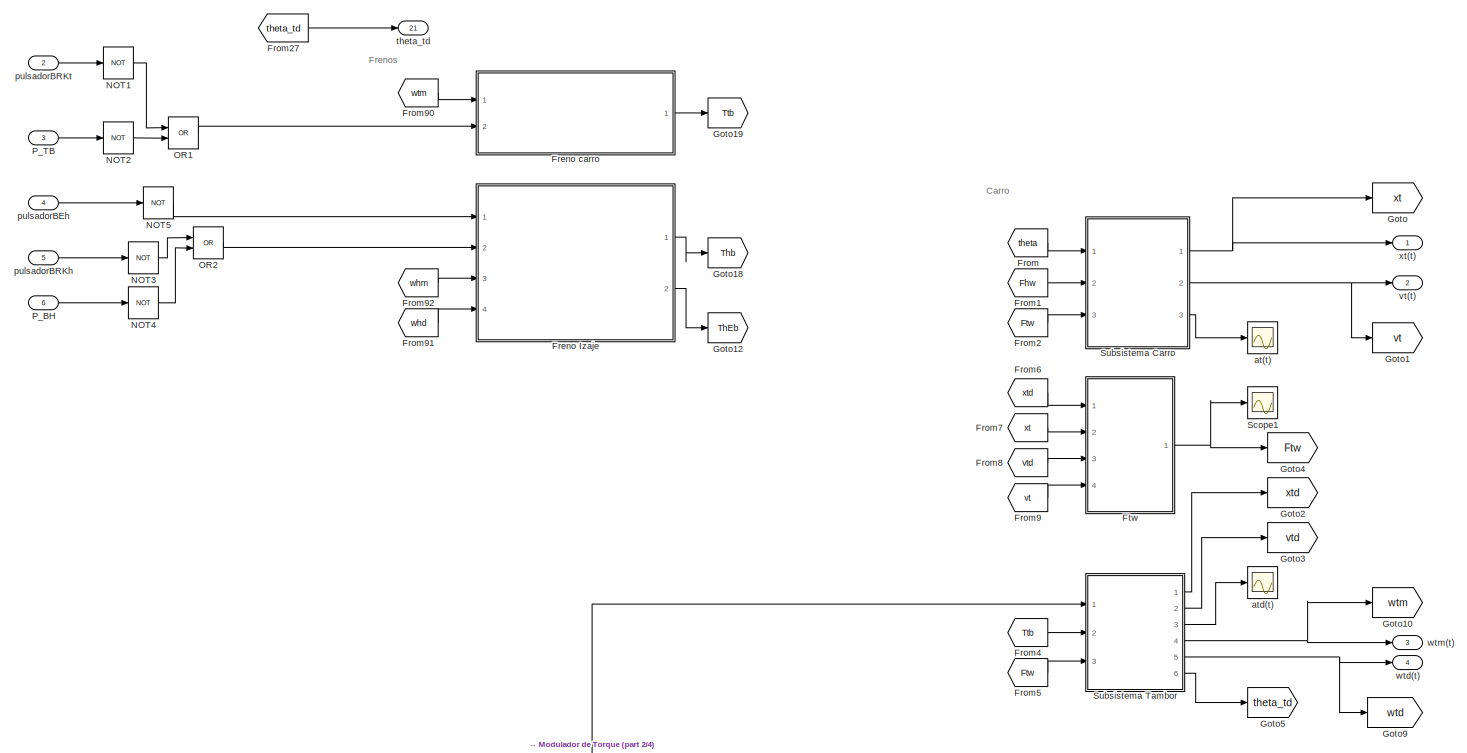
[diagram: Planta - part 1/4, full width, top band]
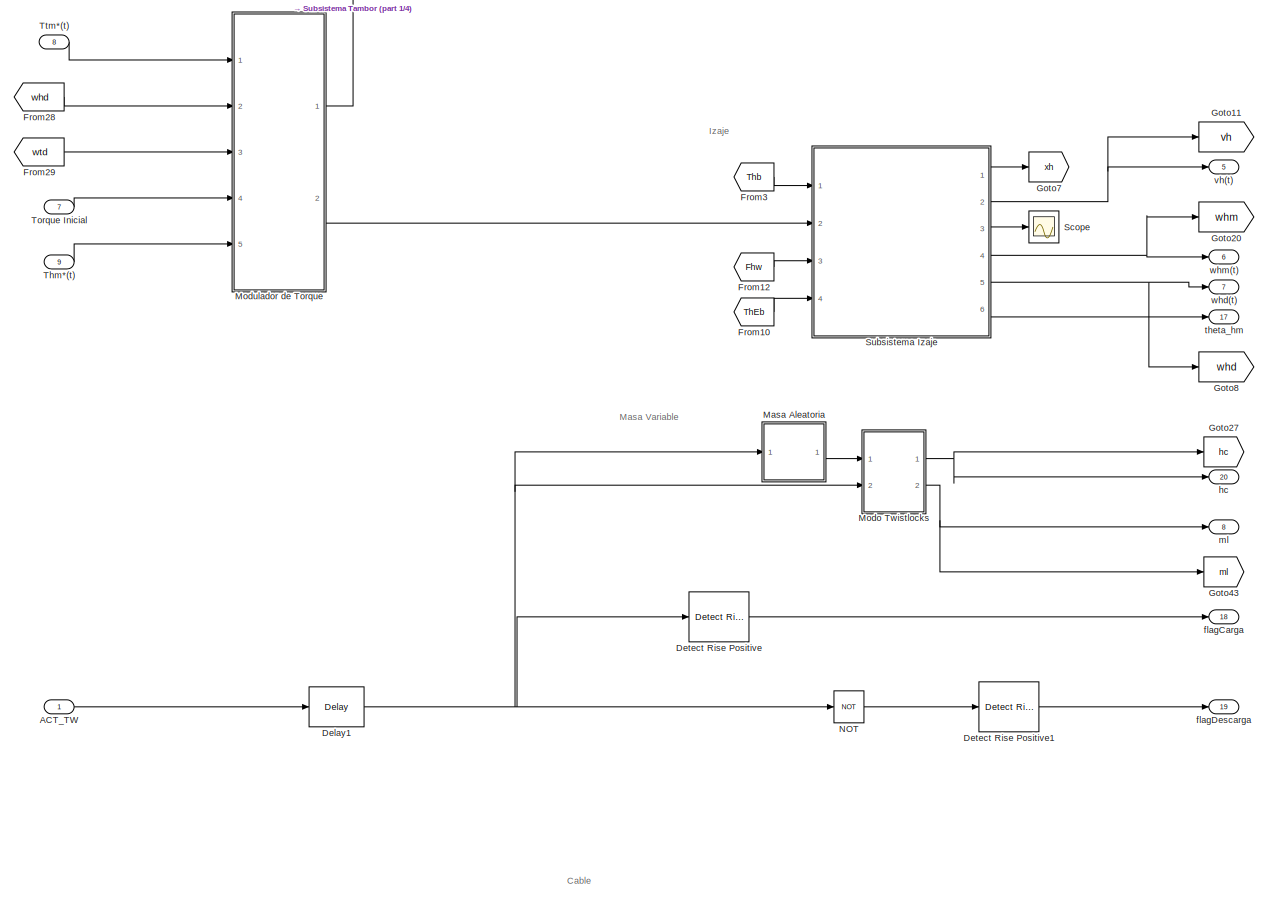
[diagram: Planta - part 2/4, full width, middle band]
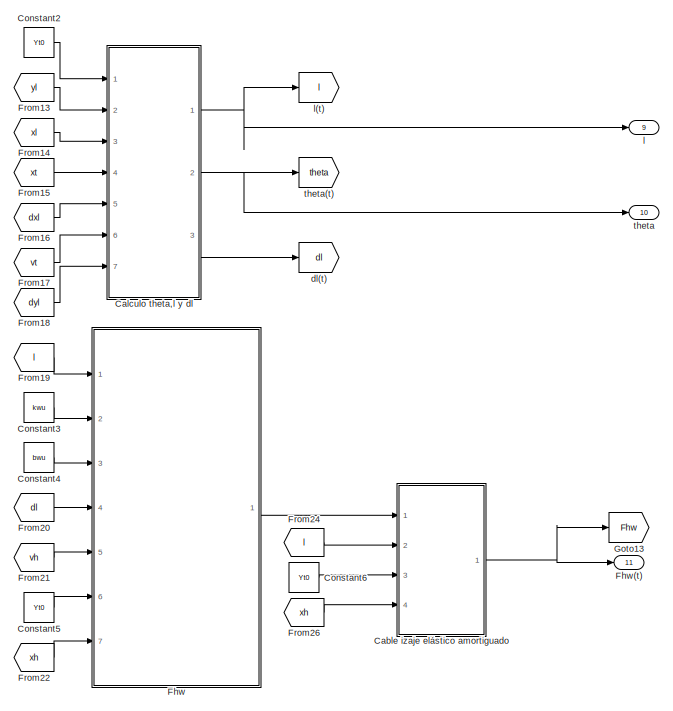
[diagram: Planta - part 3/4, bottom right region]
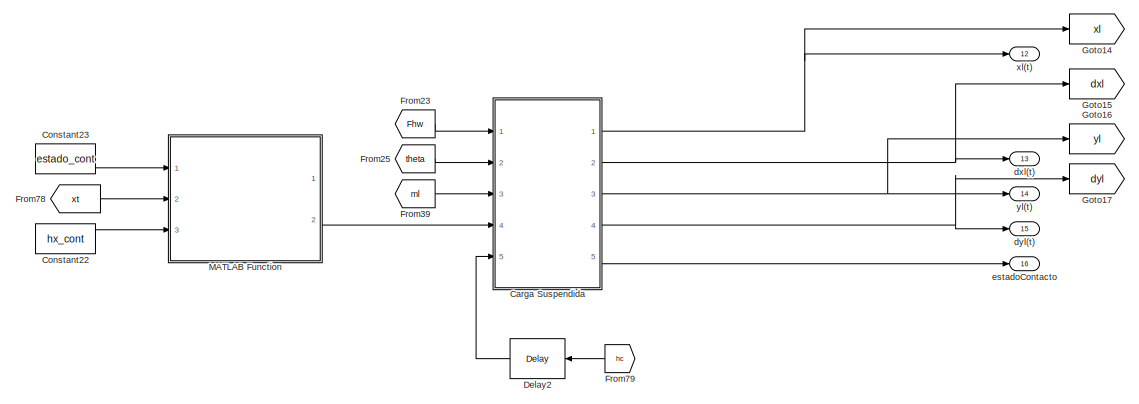
[diagram: Planta - part 4/4, bottom center region]
BLOCK [SubSystem] Planta
  Ports = [9, 21]
  RequestExecContextInheritance = off
BLOCK [Inport] Planta/ACT_TW
BLOCK [SubSystem] Planta/Cable izaje elástico amortiguado
  Ports = [4, 1]
  RequestExecContextInheritance = off
BLOCK [Constant] Planta/Cable izaje elástico amortiguado/Constant9
  Value = 0
BLOCK [Inport] Planta/Cable izaje elástico amortiguado/Fhw
BLOCK [Outport] Planta/Cable izaje elástico amortiguado/Fhw(t)
BLOCK [RelationalOperator] Planta/Cable izaje elástico amortiguado/Relational Operator
  InputSameDT = off
  OutDataTypeStr = boolean
  Ports = [2, 1]
  RndMeth = Simplest
BLOCK [Sum] Planta/Cable izaje elástico amortiguado/Sum
  Inputs = |+-
  Ports = [2, 1]
BLOCK [Switch] Planta/Cable izaje elástico amortiguado/Switch1
  Criteria = u2 > Threshold
  InputSameDT = off
  SaturateOnIntegerOverflow = off
BLOCK [Inport] Planta/Cable izaje elástico amortiguado/Yt0
  Port = 3
BLOCK [Inport] Planta/Cable izaje elástico amortiguado/l(t)
  Port = 2
BLOCK [Inport] Planta/Cable izaje elástico amortiguado/xh(t)
  Port = 4
BLOCK [SubSystem] Planta/Calculo theta,l y dl
  Ports = [7, 3]
  RequestExecContextInheritance = off
BLOCK [Trigonometry] Planta/Calculo theta,l y dl/Atan2
  Operator = atan2
  Ports = [2, 1]
BLOCK [Product] Planta/Calculo theta,l y dl/Divide
  Inputs = */
  Ports = [2, 1]
BLOCK [Gain] Planta/Calculo theta,l y dl/Gain
  Gain = -1
BLOCK [Math] Planta/Calculo theta,l y dl/Math Function
  Operator = square
  Ports = [1, 1]
BLOCK [Math] Planta/Calculo theta,l y dl/Math Function1
  Operator = square
  Ports = [1, 1]
BLOCK [Product] Planta/Calculo theta,l y dl/Product
  Ports = [2, 1]
BLOCK [Product] Planta/Calculo theta,l y dl/Product1
  Ports = [2, 1]
BLOCK [Sqrt] Planta/Calculo theta,l y dl/Sqrt
BLOCK [Sum] Planta/Calculo theta,l y dl/Sum
  Inputs = |+-
  Ports = [2, 1]
BLOCK [Sum] Planta/Calculo theta,l y dl/Sum1
  Inputs = |+-
  Ports = [2, 1]
BLOCK [Sum] Planta/Calculo theta,l y dl/Sum2
  Inputs = |++
  Ports = [2, 1]
BLOCK [Sum] Planta/Calculo theta,l y dl/Sum3
  Inputs = |+-
  Ports = [2, 1]
BLOCK [Sum] Planta/Calculo theta,l y dl/Sum4
  Inputs = |++
  Ports = [2, 1]
BLOCK [Inport] Planta/Calculo theta,l y dl/Yt0
BLOCK [Outport] Planta/Calculo theta,l y dl/dl
  Port = 3
BLOCK [Inport] Planta/Calculo theta,l y dl/dxl
  Port = 5
BLOCK [Inport] Planta/Calculo theta,l y dl/dyl
  Port = 7
BLOCK [Outport] Planta/Calculo theta,l y dl/l
BLOCK [Outport] Planta/Calculo theta,l y dl/theta
  Port = 2
BLOCK [Inport] Planta/Calculo theta,l y dl/vt
  Port = 6
BLOCK [Inport] Planta/Calculo theta,l y dl/xl
  Port = 3
BLOCK [Inport] Planta/Calculo theta,l y dl/xt
  Port = 4
BLOCK [Inport] Planta/Calculo theta,l y dl/yl
  Port = 2
BLOCK [SubSystem] Planta/Carga Suspendida
  Ports = [5, 5]
  RequestExecContextInheritance = off
BLOCK [Constant] Planta/Carga Suspendida/Constant
  Value = 0
BLOCK [Constant] Planta/Carga Suspendida/Constant1
  Value = x_0
BLOCK [Constant] Planta/Carga Suspendida/Constant2
  Value = 0
BLOCK [Constant] Planta/Carga Suspendida/Constant3
  Value = 0
BLOCK [Constant] Planta/Carga Suspendida/Constant4
BLOCK [Constant] Planta/Carga Suspendida/Constant5
  Value = y_0
BLOCK [Constant] Planta/Carga Suspendida/Constant7
  Value = g
BLOCK [Product] Planta/Carga Suspendida/Divide
  Inputs = */
  NameLocation = right
  Ports = [2, 1]
BLOCK [Product] Planta/Carga Suspendida/Divide1
  Inputs = */
  Ports = [2, 1]
BLOCK [Inport] Planta/Carga Suspendida/Fhw(t)
BLOCK [From] Planta/Carga Suspendida/From
  GotoTag = contacto
BLOCK [From] Planta/Carga Suspendida/From1
  GotoTag = dyl
BLOCK [From] Planta/Carga Suspendida/From2
  GotoTag = yl
BLOCK [From] Planta/Carga Suspendida/From3
  GotoTag = dxl
BLOCK [From] Planta/Carga Suspendida/From4
  GotoTag = altura
BLOCK [From] Planta/Carga Suspendida/From5
  GotoTag = altura
BLOCK [From] Planta/Carga Suspendida/From6
  GotoTag = altura
BLOCK [Gain] Planta/Carga Suspendida/Gain
  Gain = kcy
BLOCK [Gain] Planta/Carga Suspendida/Gain1
  Gain = bcy
BLOCK [Gain] Planta/Carga Suspendida/Gain2
  Gain = -2
BLOCK [Gain] Planta/Carga Suspendida/Gain3
  Gain = bcy
BLOCK [Gain] Planta/Carga Suspendida/Gain4
  Gain = 2
BLOCK [Goto] Planta/Carga Suspendida/Goto
  GotoTag = contacto
BLOCK [Goto] Planta/Carga Suspendida/Goto1
  GotoTag = dyl
BLOCK [Goto] Planta/Carga Suspendida/Goto2
  GotoTag = yl
BLOCK [Goto] Planta/Carga Suspendida/Goto3
  GotoTag = dxl
BLOCK [Goto] Planta/Carga Suspendida/Goto4
  GotoTag = altura
BLOCK [Integrator] Planta/Carga Suspendida/Integrator
  Ports = [1, 1]
BLOCK [Integrator] Planta/Carga Suspendida/Integrator1
  InitialConditionSource = external
  Ports = [2, 1]
BLOCK [Integrator] Planta/Carga Suspendida/Integrator2
  Ports = [1, 1]
BLOCK [Integrator] Planta/Carga Suspendida/Integrator3
  InitialConditionSource = external
  Ports = [2, 1]
BLOCK [RelationalOperator] Planta/Carga Suspendida/Less Than
  InputSameDT = off
  Operator = >
  OutDataTypeStr = boolean
  Ports = [2, 1]
  RndMeth = Simplest
BLOCK [Product] Planta/Carga Suspendida/Product
  Ports = [2, 1]
BLOCK [Product] Planta/Carga Suspendida/Product1
  Ports = [2, 1]
BLOCK [Product] Planta/Carga Suspendida/Product2
  Ports = [2, 1]
BLOCK [Trigonometry] Planta/Carga Suspendida/Sin
  Ports = [1, 1]
BLOCK [Trigonometry] Planta/Carga Suspendida/Sin1
  Operator = cos
  Ports = [1, 1]
BLOCK [Sum] Planta/Carga Suspendida/Sum
  Inputs = +-+
  Ports = [3, 1]
BLOCK [Sum] Planta/Carga Suspendida/Sum1
  Inputs = |+-
  Ports = [2, 1]
BLOCK [Sum] Planta/Carga Suspendida/Sum2
  Inputs = |+-
  Ports = [2, 1]
BLOCK [Sum] Planta/Carga Suspendida/Sum3
  Inputs = |+-
  Ports = [2, 1]
BLOCK [Sum] Planta/Carga Suspendida/Sum4
  Inputs = |-+
  Ports = [2, 1]
BLOCK [Switch] Planta/Carga Suspendida/Switch
  Criteria = u2 > Threshold
  InputSameDT = off
  SaturateOnIntegerOverflow = off
BLOCK [Switch] Planta/Carga Suspendida/Switch1
  InputSameDT = off
  SaturateOnIntegerOverflow = off
BLOCK [Switch] Planta/Carga Suspendida/Switch2
  InputSameDT = off
  SaturateOnIntegerOverflow = off
BLOCK [Outport] Planta/Carga Suspendida/dxl(t)
  Port = 2
BLOCK [Outport] Planta/Carga Suspendida/dyl(t)
  Port = 4
BLOCK [Outport] Planta/Carga Suspendida/estadoContacto
  Port = 5
BLOCK [Inport] Planta/Carga Suspendida/hc
  Port = 5
BLOCK [Inport] Planta/Carga Suspendida/ml
  Port = 3
BLOCK [Inport] Planta/Carga Suspendida/theta(t)
  Port = 2
BLOCK [Outport] Planta/Carga Suspendida/xl(t)
BLOCK [Inport] Planta/Carga Suspendida/yc0
  Port = 4
BLOCK [Outport] Planta/Carga Suspendida/yl(t)
  Port = 3
BLOCK [Constant] Planta/Constant2
  Value = Yt0
BLOCK [Constant] Planta/Constant22
  Value = hx_cont
BLOCK [Constant] Planta/Constant23
  Value = estado_cont
BLOCK [Constant] Planta/Constant3
  Value = kwu
BLOCK [Constant] Planta/Constant4
  Value = bwu
BLOCK [Constant] Planta/Constant5
  Value = Yt0
BLOCK [Constant] Planta/Constant6
  Value = Yt0
BLOCK [Delay] Planta/Delay1
  DelayLength = 1
  InputPortMap = u0
  InputProcessing = Columns as channels (frame based)
  Ports = [1, 1]
BLOCK [Delay] Planta/Delay2
  DelayLength = 1
  InputPortMap = u0
  InputProcessing = Columns as channels (frame based)
  NameLocation = top
  Ports = [1, 1]
BLOCK [Reference] Planta/Detect Rise Positive  REF=simulink/Logic and Bit
Operations/Detect Rise
Positive
  Ports = [1, 1]
  SourceBlock = simulink/Logic and Bit\nOperations/Detect Rise\nPositive
  SourceProductBaseCode = SL
  SourceType = Detect Rise Positive
BLOCK [Reference] Planta/Detect Rise Positive1  REF=simulink/Logic and Bit
Operations/Detect Rise
Positive
  Ports = [1, 1]
  SourceBlock = simulink/Logic and Bit\nOperations/Detect Rise\nPositive
  SourceProductBaseCode = SL
  SourceType = Detect Rise Positive
BLOCK [SubSystem] Planta/Fhw
  Ports = [7, 1]
  RequestExecContextInheritance = off
BLOCK [Outport] Planta/Fhw(t)
  Port = 11
BLOCK [Constant] Planta/Fhw/Constant
  NameLocation = right
  Value = 110
BLOCK [Product] Planta/Fhw/Divide
  Inputs = */
  NameLocation = left
  Ports = [2, 1]
BLOCK [Outport] Planta/Fhw/Fhw(t)
BLOCK [Gain] Planta/Fhw/Gain
  Gain = 2
BLOCK [Gain] Planta/Fhw/Gain1
  Gain = 2
BLOCK [Gain] Planta/Fhw/Gain2
  Gain = 2
BLOCK [Gain] Planta/Fhw/Gain3
  Gain = -1
BLOCK [Product] Planta/Fhw/Product1
  Ports = [2, 1]
BLOCK [Product] Planta/Fhw/Product2
  Ports = [2, 1]
BLOCK [Product] Planta/Fhw/Product3
  Ports = [2, 1]
BLOCK [Sum] Planta/Fhw/Sum
  Inputs = |-+
  Ports = [2, 1]
BLOCK [Sum] Planta/Fhw/Sum1
  Inputs = |++
  Ports = [2, 1]
BLOCK [Sum] Planta/Fhw/Sum2
  Inputs = |++
  Ports = [2, 1]
BLOCK [Sum] Planta/Fhw/Sum3
  Inputs = -||+
  Ports = [2, 1]
BLOCK [Sum] Planta/Fhw/Sum4
  Inputs = |+-
  Ports = [2, 1]
BLOCK [Inport] Planta/Fhw/Yt0
  Port = 6
BLOCK [Inport] Planta/Fhw/bwu
  Port = 3
BLOCK [Inport] Planta/Fhw/dl(t)
  Port = 4
BLOCK [Inport] Planta/Fhw/kwu
  Port = 2
BLOCK [Inport] Planta/Fhw/l(t)
BLOCK [Inport] Planta/Fhw/vh(t)
  Port = 5
BLOCK [Inport] Planta/Fhw/xh(t)
  Port = 7
BLOCK [SubSystem] Planta/Freno Izaje
  Ports = [4, 2]
  RequestExecContextInheritance = off
BLOCK [Constant] Planta/Freno Izaje/Constant3
  Value = 0
BLOCK [Constant] Planta/Freno Izaje/Constant6
  Value = 0
BLOCK [Gain] Planta/Freno Izaje/Gain1
  Gain = -bhEb
BLOCK [Gain] Planta/Freno Izaje/Gain9
  Gain = -bhb
BLOCK [Saturate] Planta/Freno Izaje/Saturation
  LowerLimit = -Thb_Max
  UpperLimit = Thb_Max
BLOCK [Saturate] Planta/Freno Izaje/Saturation1
  LowerLimit = -ThEb_Max
  UpperLimit = ThEb_Max
BLOCK [Scope] Planta/Freno Izaje/Scope
  Floating = off
  NumInputPorts = 2
  Ports = [2]
  ScopeSpecificationString = Simulink.scopes.TimeScopeBlockCfg('CurrentConfiguration', extmgr.ConfigurationSet(extmgr.Configuration('Core','General UI',true),extmgr.Configuration('Core','Source UI',true),extmgr.Configuration('Sources','WiredSimulink',true,'DataLoggingVariableName','ScopeData2'),extmgr.Configuration('Visuals','Time Domain',true,'SerializedDisplays',{struct('MinYLimReal','-62500.00000','MaxYLimReal','62500.0000...<+2049ch>
BLOCK [Switch] Planta/Freno Izaje/Switch
  Criteria = u2 > Threshold
  InputSameDT = off
  SaturateOnIntegerOverflow = off
BLOCK [Switch] Planta/Freno Izaje/Switch1
  Criteria = u2 > Threshold
  InputSameDT = off
  SaturateOnIntegerOverflow = off
BLOCK [Outport] Planta/Freno Izaje/ThEb
  Port = 2
  VectorParamsAs1DForOutWhenUnconnected = off
BLOCK [Outport] Planta/Freno Izaje/Thb
  VectorParamsAs1DForOutWhenUnconnected = off
BLOCK [Inport] Planta/Freno Izaje/pulsadorBEh
BLOCK [Inport] Planta/Freno Izaje/pulsadorBh
  Port = 2
BLOCK [Inport] Planta/Freno Izaje/whd
  Port = 4
BLOCK [Inport] Planta/Freno Izaje/whm
  Port = 3
BLOCK [SubSystem] Planta/Freno carro
  Ports = [2, 1]
  RequestExecContextInheritance = off
BLOCK [Constant] Planta/Freno carro/Constant3
  Value = 0
BLOCK [Gain] Planta/Freno carro/Gain9
  Gain = -btb
BLOCK [Saturate] Planta/Freno carro/Saturation
  LowerLimit = -Ttb_Max
  UpperLimit = Ttb_Max
BLOCK [Scope] Planta/Freno carro/Scope
  Floating = off
  NumInputPorts = 1
  Ports = [1]
  ScopeSpecificationString = Simulink.scopes.TimeScopeBlockCfg('CurrentConfiguration', extmgr.ConfigurationSet(extmgr.Configuration('Core','General UI',true),extmgr.Configuration('Core','Source UI',true),extmgr.Configuration('Sources','WiredSimulink',true,'DataLoggingVariableName','ScopeData1'),extmgr.Configuration('Visuals','Time Domain',true),extmgr.Configuration('Tools','Plot Navigation',true),extmgr.Configuration('Tools',...<+40ch>
BLOCK [Switch] Planta/Freno carro/Switch
  Criteria = u2 > Threshold
  InputSameDT = off
  SaturateOnIntegerOverflow = off
BLOCK [Outport] Planta/Freno carro/Ttb
  VectorParamsAs1DForOutWhenUnconnected = off
BLOCK [Inport] Planta/Freno carro/pulsadorTb
  Port = 2
BLOCK [Inport] Planta/Freno carro/wtm
BLOCK [From] Planta/From
  GotoTag = theta
BLOCK [From] Planta/From1
  GotoTag = Fhw
BLOCK [From] Planta/From10
  GotoTag = ThEb
BLOCK [From] Planta/From12
  GotoTag = Fhw
BLOCK [From] Planta/From13
  GotoTag = yl
BLOCK [From] Planta/From14
  GotoTag = xl
BLOCK [From] Planta/From15
  GotoTag = xt
BLOCK [From] Planta/From16
  GotoTag = dxl
BLOCK [From] Planta/From17
  GotoTag = vt
BLOCK [From] Planta/From18
  GotoTag = dyl
BLOCK [From] Planta/From19
  GotoTag = l
BLOCK [From] Planta/From2
  GotoTag = Ftw
BLOCK [From] Planta/From20
  GotoTag = dl
BLOCK [From] Planta/From21
  GotoTag = vh
BLOCK [From] Planta/From22
  GotoTag = xh
BLOCK [From] Planta/From23
  GotoTag = Fhw
BLOCK [From] Planta/From24
  GotoTag = l
BLOCK [From] Planta/From25
  GotoTag = theta
BLOCK [From] Planta/From26
  GotoTag = xh
BLOCK [From] Planta/From27
  GotoTag = theta_td
BLOCK [From] Planta/From28
  GotoTag = whd
BLOCK [From] Planta/From29
  GotoTag = wtd
BLOCK [From] Planta/From3
  GotoTag = Thb
BLOCK [From] Planta/From39
  GotoTag = ml
BLOCK [From] Planta/From4
  GotoTag = Ttb
BLOCK [From] Planta/From5
  GotoTag = Ftw
BLOCK [From] Planta/From6
  GotoTag = xtd
BLOCK [From] Planta/From7
  GotoTag = xt
BLOCK [From] Planta/From78
  GotoTag = xt
BLOCK [From] Planta/From79
  GotoTag = hc
  NameLocation = top
BLOCK [From] Planta/From8
  GotoTag = vtd
BLOCK [From] Planta/From9
  GotoTag = vt
BLOCK [From] Planta/From90
  GotoTag = wtm
BLOCK [From] Planta/From91
  GotoTag = whd
BLOCK [From] Planta/From92
  GotoTag = whm
BLOCK [SubSystem] Planta/Ftw
  Ports = [4, 1]
  RequestExecContextInheritance = off
BLOCK [Outport] Planta/Ftw/Ftw(t)
BLOCK [Gain] Planta/Ftw/Gain1
  Gain = Ktw
BLOCK [Gain] Planta/Ftw/Gain2
  Gain = btw
BLOCK [Sum] Planta/Ftw/Sum
  Ports = [2, 1]
BLOCK [Sum] Planta/Ftw/Sum1
  Inputs = |+-
  Ports = [2, 1]
BLOCK [Sum] Planta/Ftw/Sum2
  Inputs = |+-
  Ports = [2, 1]
BLOCK [Inport] Planta/Ftw/vt(t)
  Port = 4
BLOCK [Inport] Planta/Ftw/vtd(t)
  Port = 3
BLOCK [Inport] Planta/Ftw/xt(t)
  Port = 2
BLOCK [Inport] Planta/Ftw/xtd(t)
BLOCK [Goto] Planta/Goto
  GotoTag = xt
BLOCK [Goto] Planta/Goto1
  GotoTag = vt
BLOCK [Goto] Planta/Goto10
  GotoTag = wtm
BLOCK [Goto] Planta/Goto11
  GotoTag = vh
BLOCK [Goto] Planta/Goto12
  GotoTag = ThEb
BLOCK [Goto] Planta/Goto13
  GotoTag = Fhw
BLOCK [Goto] Planta/Goto14
  GotoTag = xl
BLOCK [Goto] Planta/Goto15
  GotoTag = dxl
BLOCK [Goto] Planta/Goto16
  GotoTag = yl
BLOCK [Goto] Planta/Goto17
  GotoTag = dyl
BLOCK [Goto] Planta/Goto18
  GotoTag = Thb
BLOCK [Goto] Planta/Goto19
  GotoTag = Ttb
BLOCK [Goto] Planta/Goto2
  GotoTag = xtd
BLOCK [Goto] Planta/Goto20
  GotoTag = whm
BLOCK [Goto] Planta/Goto27
  GotoTag = hc
BLOCK [Goto] Planta/Goto3
  GotoTag = vtd
BLOCK [Goto] Planta/Goto4
  GotoTag = Ftw
BLOCK [Goto] Planta/Goto43
  GotoTag = ml
BLOCK [Goto] Planta/Goto5
  GotoTag = theta_td
BLOCK [Goto] Planta/Goto7
  GotoTag = xh
BLOCK [Goto] Planta/Goto8
  GotoTag = whd
BLOCK [Goto] Planta/Goto9
  GotoTag = wtd
BLOCK [SubSystem] Planta/MATLAB Function
  ErrorFcn = Stateflow.Translate.translate
  PermitHierarchicalResolution = ExplicitOnly
  Ports = [3, 2]
  RequestExecContextInheritance = off
  SFBlockType = MATLAB Function
  TreatAsAtomicUnit = on
BLOCK [Demux] Planta/MATLAB Function/ Demux 
  Outputs = 1
  Ports = [1, 1]
BLOCK [S-Function] Planta/MATLAB Function/ SFunction 
  EnableBusSupport = on
  FunctionName = sf_sfun
  PortCounts = [3 3]
  Ports = [3, 3]
  SFcnIsStateOwnerBlock = off
  SFunctionDeploymentMode = off
  Tag = Stateflow S-Function 10
BLOCK [Terminator] Planta/MATLAB Function/ Terminator 
BLOCK [Inport] Planta/MATLAB Function/anchoCont
  Port = 3
BLOCK [Inport] Planta/MATLAB Function/estado_cont
BLOCK [Outport] Planta/MATLAB Function/index
BLOCK [Inport] Planta/MATLAB Function/xl
  Port = 2
BLOCK [Outport] Planta/MATLAB Function/y_evol
  Port = 2
BLOCK [SubSystem] Planta/Masa Aleatoria
  ErrorFcn = Stateflow.Translate.translate
  PermitHierarchicalResolution = ExplicitOnly
  Ports = [1, 1]
  RequestExecContextInheritance = off
  SFBlockType = Chart
  TreatAsAtomicUnit = on
BLOCK [Demux] Planta/Masa Aleatoria/ Demux 
  Outputs = 1
  Ports = [1, 1]
BLOCK [S-Function] Planta/Masa Aleatoria/ SFunction 
  EnableBusSupport = on
  FunctionName = sf_sfun
  Parameters = Mc_max,Mc_min
  PortCounts = [1 2]
  Ports = [1, 2]
  SFcnIsStateOwnerBlock = off
  SFunctionDeploymentMode = off
  Tag = Stateflow S-Function 2
BLOCK [Terminator] Planta/Masa Aleatoria/ Terminator 
BLOCK [Outport] Planta/Masa Aleatoria/Mcx
BLOCK [Inport] Planta/Masa Aleatoria/modo_tw
BLOCK [SubSystem] Planta/Modo Twistlocks
  ErrorFcn = Stateflow.Translate.translate
  PermitHierarchicalResolution = ExplicitOnly
  Ports = [2, 2]
  RequestExecContextInheritance = off
  SFBlockType = Chart
  TreatAsAtomicUnit = on
BLOCK [Demux] Planta/Modo Twistlocks/ Demux 
  Outputs = 1
  Ports = [1, 1]
BLOCK [S-Function] Planta/Modo Twistlocks/ SFunction 
  EnableBusSupport = on
  FunctionName = sf_sfun
  Parameters = Ms
  PortCounts = [2 3]
  Ports = [2, 3]
  SFcnIsStateOwnerBlock = off
  SFunctionDeploymentMode = off
  Tag = Stateflow S-Function 14
BLOCK [Terminator] Planta/Modo Twistlocks/ Terminator 
BLOCK [Inport] Planta/Modo Twistlocks/Mcx
BLOCK [Outport] Planta/Modo Twistlocks/hc
BLOCK [Outport] Planta/Modo Twistlocks/ml
  Port = 2
BLOCK [Inport] Planta/Modo Twistlocks/tw
  Port = 2
BLOCK [SubSystem] Planta/Modulador de Torque
  Ports = [5, 2]
  RequestExecContextInheritance = off
BLOCK [Gain] Planta/Modulador de Torque/Gain
  Gain = bh_eq
BLOCK [Gain] Planta/Modulador de Torque/Gain1
  Gain = bt_eq
  NameLocation = right
BLOCK [SubSystem] Planta/Modulador de Torque/Modulador de Torque Carro
  Ports = [1, 1]
  RequestExecContextInheritance = off
BLOCK [Gain] Planta/Modulador de Torque/Modulador de Torque Carro/Gain1
  Gain = 1/tau_tm
BLOCK [Integrator] Planta/Modulador de Torque/Modulador de Torque Carro/Integrator
  Ports = [1, 1]
BLOCK [Sum] Planta/Modulador de Torque/Modulador de Torque Carro/Sum
  Inputs = |+-
  Ports = [2, 1]
BLOCK [Outport] Planta/Modulador de Torque/Modulador de Torque Carro/Ttm(t)
BLOCK [Inport] Planta/Modulador de Torque/Modulador de Torque Carro/Ttm*(t)
BLOCK [SubSystem] Planta/Modulador de Torque/Modulador de Torque Izaje
  Ports = [2, 1]
  RequestExecContextInheritance = off
BLOCK [Gain] Planta/Modulador de Torque/Modulador de Torque Izaje/Gain1
  Gain = 1/tau_hm
BLOCK [Integrator] Planta/Modulador de Torque/Modulador de Torque Izaje/Integrator
  InitialConditionSource = external
  Ports = [2, 1]
BLOCK [Sum] Planta/Modulador de Torque/Modulador de Torque Izaje/Sum
  Inputs = |+-
  Ports = [2, 1]
BLOCK [Inport] Planta/Modulador de Torque/Modulador de Torque Izaje/T_hm_0
BLOCK [Outport] Planta/Modulador de Torque/Modulador de Torque Izaje/Thm(t)
BLOCK [Inport] Planta/Modulador de Torque/Modulador de Torque Izaje/Thm*(t)
  Port = 2
BLOCK [Saturate] Planta/Modulador de Torque/Saturation6
  LowerLimit = -Ttm_Max*2
  UpperLimit = Ttm_Max*2
BLOCK [Saturate] Planta/Modulador de Torque/Saturation7
  LowerLimit = -Thm_Max
  UpperLimit = Thm_Max
BLOCK [Scope] Planta/Modulador de Torque/Scope29
  Floating = off
  NumInputPorts = 1
  Ports = [1]
  ScopeSpecificationString = Simulink.scopes.TimeScopeBlockCfg('CurrentConfiguration', extmgr.ConfigurationSet(extmgr.Configuration('Core','General UI',true),extmgr.Configuration('Core','Source UI',true),extmgr.Configuration('Sources','WiredSimulink',true,'DataLoggingVariableName','ScopeData1'),extmgr.Configuration('Visuals','Time Domain',true,'SerializedDisplays',{struct('MinYLimReal','-731816.83878','MaxYLimReal','85227.855...<+1399ch>
BLOCK [Sum] Planta/Modulador de Torque/Sum
  Inputs = |++
  Ports = [2, 1]
BLOCK [Sum] Planta/Modulador de Torque/Sum3
  Inputs = |++
  Ports = [2, 1]
BLOCK [Inport] Planta/Modulador de Torque/T_hm_0
  Port = 4
BLOCK [Outport] Planta/Modulador de Torque/Thm(t)
  Port = 2
BLOCK [Inport] Planta/Modulador de Torque/Thm_
  Port = 5
BLOCK [Outport] Planta/Modulador de Torque/Ttm(t)
BLOCK [Inport] Planta/Modulador de Torque/Ttm_
BLOCK [Inport] Planta/Modulador de Torque/whd
  Port = 2
BLOCK [Inport] Planta/Modulador de Torque/wtd
  Port = 3
BLOCK [Logic] Planta/NOT
  AllPortsSameDT = off
  IconShape = distinctive
  Operator = NOT
  OutDataTypeStr = boolean
  Ports = [1, 1]
BLOCK [Logic] Planta/NOT1
  AllPortsSameDT = off
  IconShape = distinctive
  Operator = NOT
  OutDataTypeStr = boolean
  Ports = [1, 1]
BLOCK [Logic] Planta/NOT2
  AllPortsSameDT = off
  IconShape = distinctive
  Operator = NOT
  OutDataTypeStr = boolean
  Ports = [1, 1]
BLOCK [Logic] Planta/NOT3
  AllPortsSameDT = off
  IconShape = distinctive
  Operator = NOT
  OutDataTypeStr = boolean
  Ports = [1, 1]
BLOCK [Logic] Planta/NOT4
  AllPortsSameDT = off
  IconShape = distinctive
  Operator = NOT
  OutDataTypeStr = boolean
  Ports = [1, 1]
BLOCK [Logic] Planta/NOT5
  AllPortsSameDT = off
  IconShape = distinctive
  Operator = NOT
  OutDataTypeStr = boolean
  Ports = [1, 1]
BLOCK [Logic] Planta/OR1
  AllPortsSameDT = off
  IconShape = distinctive
  Operator = OR
  OutDataTypeStr = fixdt(0,1)
  Ports = [2, 1]
BLOCK [Logic] Planta/OR2
  AllPortsSameDT = off
  IconShape = distinctive
  Operator = OR
  OutDataTypeStr = fixdt(0,1)
  Ports = [2, 1]
BLOCK [Inport] Planta/P_BH
  Port = 6
BLOCK [Inport] Planta/P_TB
  Port = 3
BLOCK [Scope] Planta/Scope
  Floating = off
  NumInputPorts = 1
  Ports = [1]
  ScopeSpecificationString = Simulink.scopes.TimeScopeBlockCfg('CurrentConfiguration', extmgr.ConfigurationSet(extmgr.Configuration('Core','General UI',true),extmgr.Configuration('Core','Source UI',true),extmgr.Configuration('Sources','WiredSimulink',true,'DataLoggingVariableName','ScopeData1'),extmgr.Configuration('Visuals','Time Domain',true,'SerializedDisplays',{struct('MinYLimReal','-1.00000','MaxYLimReal','1.00000','YLab...<+1409ch>
BLOCK [Scope] Planta/Scope1
  Floating = off
  NumInputPorts = 1
  Ports = [1]
  ScopeSpecificationString = Simulink.scopes.TimeScopeBlockCfg('CurrentConfiguration', extmgr.ConfigurationSet(extmgr.Configuration('Core','General UI',true),extmgr.Configuration('Core','Source UI',true),extmgr.Configuration('Sources','WiredSimulink',true,'DataLoggingVariableName','ScopeData1'),extmgr.Configuration('Visuals','Time Domain',true,'SerializedDisplays',{struct('MinYLimReal','-104745.17304','MaxYLimReal','139216.04...<+1429ch>
BLOCK [SubSystem] Planta/Subsistema Carro
  Ports = [3, 3]
  RequestExecContextInheritance = off
BLOCK [Constant] Planta/Subsistema Carro/Constant
  Value = x_0
BLOCK [Inport] Planta/Subsistema Carro/Fhw(t)
  Port = 2
BLOCK [Inport] Planta/Subsistema Carro/Ftw(t)
  Port = 3
BLOCK [Gain] Planta/Subsistema Carro/Gain
  Gain = 1/Mt
BLOCK [Gain] Planta/Subsistema Carro/Gain1
  Gain = 2
BLOCK [Gain] Planta/Subsistema Carro/Gain2
  Gain = bt
  NameLocation = top
BLOCK [Integrator] Planta/Subsistema Carro/Integrator
  Ports = [1, 1]
BLOCK [Integrator] Planta/Subsistema Carro/Integrator1
  InitialConditionSource = external
  Ports = [2, 1]
BLOCK [Product] Planta/Subsistema Carro/Product
  Ports = [2, 1]
BLOCK [Trigonometry] Planta/Subsistema Carro/Sin
  Ports = [1, 1]
BLOCK [Sum] Planta/Subsistema Carro/Sum
  Inputs = ++-
  Ports = [3, 1]
BLOCK [Outport] Planta/Subsistema Carro/at(t)
  Port = 3
BLOCK [Inport] Planta/Subsistema Carro/theta(t)
BLOCK [Outport] Planta/Subsistema Carro/vt(t)
  Port = 2
BLOCK [Outport] Planta/Subsistema Carro/xt(t)
BLOCK [SubSystem] Planta/Subsistema Izaje
  Ports = [4, 6]
  RequestExecContextInheritance = off
BLOCK [Constant] Planta/Subsistema Izaje/Constant
  Value = y_0_izaje
BLOCK [Inport] Planta/Subsistema Izaje/Fhw(t)
  Port = 3
BLOCK [Gain] Planta/Subsistema Izaje/Gain
  Gain = ih
BLOCK [Gain] Planta/Subsistema Izaje/Gain1
  Gain = 1/Jh_eq
BLOCK [Gain] Planta/Subsistema Izaje/Gain2
  Gain = bh_eq
  NameLocation = top
BLOCK [Gain] Planta/Subsistema Izaje/Gain3
  Gain = rhd/2
BLOCK [Gain] Planta/Subsistema Izaje/Gain4
  Gain = rhd/2
BLOCK [Gain] Planta/Subsistema Izaje/Gain5
  Gain = rhd/2
BLOCK [Gain] Planta/Subsistema Izaje/Gain6
  Gain = ih
BLOCK [Gain] Planta/Subsistema Izaje/Gain7
  Gain = rhd
BLOCK [Gain] Planta/Subsistema Izaje/Gain8
  Gain = ih
BLOCK [Integrator] Planta/Subsistema Izaje/Integrator
  Ports = [1, 1]
BLOCK [Integrator] Planta/Subsistema Izaje/Integrator1
  InitialConditionSource = external
  Ports = [2, 1]
BLOCK [Integrator] Planta/Subsistema Izaje/Integrator2
  Ports = [1, 1]
BLOCK [Scope] Planta/Subsistema Izaje/Scope
  Floating = off
  NumInputPorts = 1
  Ports = [1]
  ScopeSpecificationString = Simulink.scopes.TimeScopeBlockCfg('CurrentConfiguration', extmgr.ConfigurationSet(extmgr.Configuration('Core','General UI',true,'FigureColor',[0.831372549019608 0.815686274509804 0.784313725490196]),extmgr.Configuration('Core','Source UI',true),extmgr.Configuration('Sources','WiredSimulink',true,'DataLoggingVariableName','ScopeData1'),extmgr.Configuration('Visuals','Time Domain',true,'SerializedDi...<+1564ch>
BLOCK [Sum] Planta/Subsistema Izaje/Sum
  Inputs = ++-+-
  Ports = [5, 1]
BLOCK [Inport] Planta/Subsistema Izaje/ThEb(t)
  Port = 4
BLOCK [Inport] Planta/Subsistema Izaje/Thb(t)
BLOCK [Inport] Planta/Subsistema Izaje/Thm(t)
  Port = 2
BLOCK [Outport] Planta/Subsistema Izaje/ah(t)
  Port = 3
BLOCK [Outport] Planta/Subsistema Izaje/theta_hm
  Port = 6
BLOCK [Outport] Planta/Subsistema Izaje/vh(t)
  Port = 2
BLOCK [Outport] Planta/Subsistema Izaje/whd(t)
  Port = 5
BLOCK [Outport] Planta/Subsistema Izaje/whm(t)
  Port = 4
BLOCK [Outport] Planta/Subsistema Izaje/xh(t)
BLOCK [SubSystem] Planta/Subsistema Tambor
  Ports = [3, 6]
  RequestExecContextInheritance = off
BLOCK [Constant] Planta/Subsistema Tambor/Constant
  Value = x_0_tamb
BLOCK [Inport] Planta/Subsistema Tambor/Ftw(t)
  Port = 3
BLOCK [Gain] Planta/Subsistema Tambor/Gain
  Gain = rtd
BLOCK [Gain] Planta/Subsistema Tambor/Gain1
  Gain = rtd
BLOCK [Gain] Planta/Subsistema Tambor/Gain2
  Gain = rtd
BLOCK [Gain] Planta/Subsistema Tambor/Gain3
  Gain = 1/Jt_eq
BLOCK [Gain] Planta/Subsistema Tambor/Gain4
  Gain = it
BLOCK [Gain] Planta/Subsistema Tambor/Gain5
  Gain = bt_eq
  NameLocation = top
BLOCK [Gain] Planta/Subsistema Tambor/Gain6
  Gain = it
BLOCK [Gain] Planta/Subsistema Tambor/Gain7
  Gain = rtd
BLOCK [Gain] Planta/Subsistema Tambor/Gain8
  Gain = it
BLOCK [Integrator] Planta/Subsistema Tambor/Integrator2
  Ports = [1, 1]
BLOCK [Integrator] Planta/Subsistema Tambor/Integrator3
  InitialConditionSource = external
  Ports = [2, 1]
BLOCK [Scope] Planta/Subsistema Tambor/Scope
  Floating = off
  NumInputPorts = 1
  Ports = [1]
  ScopeSpecificationString = Simulink.scopes.TimeScopeBlockCfg('CurrentConfiguration', extmgr.ConfigurationSet(extmgr.Configuration('Core','General UI',true,'FigureColor',[0.831372549019608 0.815686274509804 0.784313725490196]),extmgr.Configuration('Core','Source UI',true),extmgr.Configuration('Sources','WiredSimulink',true,'DataLoggingVariableName','ScopeData2'),extmgr.Configuration('Visuals','Time Domain',true,'SerializedDi...<+1938ch>
BLOCK [Scope] Planta/Subsistema Tambor/Scope1
  Floating = off
  NumInputPorts = 4
  Ports = [4]
  ScopeSpecificationString = Simulink.scopes.TimeScopeBlockCfg('CurrentConfiguration', extmgr.ConfigurationSet(extmgr.Configuration('Core','General UI',true),extmgr.Configuration('Core','Source UI',true),extmgr.Configuration('Sources','WiredSimulink',true,'DataLoggingVariableName','ScopeData7'),extmgr.Configuration('Visuals','Time Domain',true,'SerializedDisplays',{struct('MinYLimReal','-153750.00000','MaxYLimReal','183750.00...<+1879ch>
BLOCK [Scope] Planta/Subsistema Tambor/Scope2
  Floating = off
  NumInputPorts = 1
  Ports = [1]
  ScopeSpecificationString = Simulink.scopes.TimeScopeBlockCfg('CurrentConfiguration', extmgr.ConfigurationSet(extmgr.Configuration('Core','General UI',true,'FigureColor',[0.831372549019608 0.815686274509804 0.784313725490196]),extmgr.Configuration('Core','Source UI',true),extmgr.Configuration('Sources','WiredSimulink',true,'DataLoggingVariableName','ScopeData8'),extmgr.Configuration('Visuals','Time Domain',true,'SerializedDi...<+1634ch>
BLOCK [Sum] Planta/Subsistema Tambor/Sum1
  Inputs = ++--
  Ports = [4, 1]
BLOCK [Inport] Planta/Subsistema Tambor/Ttb(t)
  Port = 2
BLOCK [Inport] Planta/Subsistema Tambor/Ttm(t)
BLOCK [Outport] Planta/Subsistema Tambor/atd(t)
  Port = 3
BLOCK [Outport] Planta/Subsistema Tambor/theta_td(t)
  Port = 6
BLOCK [Outport] Planta/Subsistema Tambor/vtd(t)
  Port = 2
BLOCK [Outport] Planta/Subsistema Tambor/wtd(t)
  Port = 5
BLOCK [Outport] Planta/Subsistema Tambor/wtm(t)
  Port = 4
BLOCK [Outport] Planta/Subsistema Tambor/xtd(t)
BLOCK [Inport] Planta/Thm*(t)
  Port = 9
BLOCK [Inport] Planta/Torque Inicial
  Port = 7
BLOCK [Inport] Planta/Ttm*(t)
  Port = 8
BLOCK [Scope] Planta/at(t)
  Floating = off
  NumInputPorts = 1
  Ports = [1]
  ScopeSpecificationString = Simulink.scopes.TimeScopeBlockCfg('CurrentConfiguration', extmgr.ConfigurationSet(extmgr.Configuration('Core','General UI',true),extmgr.Configuration('Core','Source UI',true),extmgr.Configuration('Sources','WiredSimulink',true),extmgr.Configuration('Visuals','Time Domain',true,'SerializedDisplays',{struct('MinYLimReal','-1.87976','MaxYLimReal','1.64944','YLabelReal','','MinYLimMag','0.00000','MaxY...<+1364ch>
BLOCK [Scope] Planta/atd(t)
  Floating = off
  NumInputPorts = 1
  Ports = [1]
  ScopeSpecificationString = Simulink.scopes.TimeScopeBlockCfg('CurrentConfiguration', extmgr.ConfigurationSet(extmgr.Configuration('Core','General UI',true),extmgr.Configuration('Core','Source UI',true),extmgr.Configuration('Sources','WiredSimulink',true,'DataLoggingVariableName','ScopeData2'),extmgr.Configuration('Visuals','Time Domain',true,'SerializedDisplays',{struct('MinYLimReal','-1.13887','MaxYLimReal','1.15472','YLab...<+1407ch>
BLOCK [Goto] Planta/dl(t)
  GotoTag = dl
BLOCK [Outport] Planta/dxl(t)
  Port = 13
BLOCK [Outport] Planta/dyl(t)
  Port = 15
BLOCK [Outport] Planta/estadoContacto
  Port = 16
BLOCK [Outport] Planta/flagCarga
  Port = 18
BLOCK [Outport] Planta/flagDescarga
  Port = 19
BLOCK [Outport] Planta/hc
  Port = 20
BLOCK [Outport] Planta/l
  Port = 9
BLOCK [Goto] Planta/l(t)
  GotoTag = l
BLOCK [Outport] Planta/ml
  Port = 8
BLOCK [Inport] Planta/pulsadorBEh
  Port = 4
BLOCK [Inport] Planta/pulsadorBRKh
  Port = 5
BLOCK [Inport] Planta/pulsadorBRKt
  Port = 2
BLOCK [Outport] Planta/theta
  Port = 10
BLOCK [Goto] Planta/theta(t)
  GotoTag = theta
BLOCK [Outport] Planta/theta_hm
  Port = 17
BLOCK [Outport] Planta/theta_td
  Port = 21
BLOCK [Outport] Planta/vh(t)
  Port = 5
BLOCK [Outport] Planta/vt(t)
  Port = 2
BLOCK [Outport] Planta/whd(t)
  Port = 7
BLOCK [Outport] Planta/whm(t)
  Port = 6
BLOCK [Outport] Planta/wtd(t)
  Port = 4
BLOCK [Outport] Planta/wtm(t)
  Port = 3
BLOCK [Outport] Planta/xl(t)
  Port = 12
BLOCK [Outport] Planta/xt(t)
BLOCK [Outport] Planta/yl(t)
  Port = 14
BLOCK [DiscretePulseGenerator] Pulse Generator1
  Period = 1
  Ports = [0, 1]
  PulseType = Time based
  PulseWidth = 50
BLOCK [Reference] Radians to Degrees  REF=simulink_extras/Transformations/Radians
to Degrees
  Ports = [1, 1]
  SourceBlock = simulink_extras/Transformations/Radians\nto Degrees
  SourceProductBaseCode = SL
  SourceType = RadiansToDegrees
BLOCK [LampBlock] START
  Commented = on
  LabelPosition = Hide
BLOCK [Reference] Saturation Dynamic  REF=simulink/Discontinuities/Saturation
Dynamic
  Commented = on
  Ports = [3, 1]
  SourceBlock = simulink/Discontinuities/Saturation\nDynamic
  SourceProductBaseCode = SL
  SourceType = Saturation Dynamic
BLOCK [Scope] Scope
  Floating = off
  NumInputPorts = 1
  Ports = [1]
  ScopeSpecificationString = Simulink.scopes.TimeScopeBlockCfg('CurrentConfiguration', extmgr.ConfigurationSet(extmgr.Configuration('Core','General UI',true),extmgr.Configuration('Core','Source UI',true),extmgr.Configuration('Sources','WiredSimulink',true,'DataLoggingVariableName','ScopeData1'),extmgr.Configuration('Visuals','Time Domain',true,'SerializedDisplays',{struct('MinYLimReal','-0.375','MaxYLimReal','3.375','YLabelRe...<+1403ch>
BLOCK [Scope] Scope1
  Floating = off
  NumInputPorts = 2
  Ports = [2]
  ScopeSpecificationString = Simulink.scopes.TimeScopeBlockCfg('CurrentConfiguration', extmgr.ConfigurationSet(extmgr.Configuration('Core','General UI',true,'FigureColor',[0.8 0.8 0.8]),extmgr.Configuration('Core','Source UI',true),extmgr.Configuration('Sources','WiredSimulink',true,'DataLoggingVariableName','ScopeData1'),extmgr.Configuration('Visuals','Time Domain',true,'SerializedDisplays',{struct('MinYLimReal','-25.79222',...<+1650ch>
BLOCK [Scope] Scope11
  Commented = on
  Floating = off
  NumInputPorts = 3
  Ports = [3]
  ScopeSpecificationString = Simulink.scopes.TimeScopeBlockCfg('CurrentConfiguration', extmgr.ConfigurationSet(extmgr.Configuration('Core','General UI',true),extmgr.Configuration('Core','Source UI',true),extmgr.Configuration('Sources','WiredSimulink',true,'DataLoggingVariableName','ScopeData1'),extmgr.Configuration('Visuals','Time Domain',true,'SerializedDisplays',{struct('MinYLimReal','-1.00000','MaxYLimReal','1.00000','YLab...<+2788ch>
BLOCK [Scope] Scope2
  Floating = off
  NumInputPorts = 2
  Ports = [2]
  ScopeSpecificationString = Simulink.scopes.TimeScopeBlockCfg('CurrentConfiguration', extmgr.ConfigurationSet(extmgr.Configuration('Core','General UI',true),extmgr.Configuration('Core','Source UI',true),extmgr.Configuration('Sources','WiredSimulink',true,'DataLoggingVariableName','ScopeData1'),extmgr.Configuration('Visuals','Time Domain',true,'SerializedDisplays',{struct('MinYLimReal','-199.82902','MaxYLimReal','1398.46121',...<+1401ch>
BLOCK [Scope] Scope27
  Commented = on
  Floating = off
  NumInputPorts = 2
  Ports = [2]
  ScopeSpecificationString = Simulink.scopes.TimeScopeBlockCfg('CurrentConfiguration', extmgr.ConfigurationSet(extmgr.Configuration('Core','General UI',true),extmgr.Configuration('Core','Source UI',true),extmgr.Configuration('Sources','WiredSimulink',true,'DataLoggingVariableName','ScopeData2'),extmgr.Configuration('Visuals','Time Domain',true,'SerializedDisplays',{struct('MinYLimReal','0.05387','MaxYLimReal','0.07387','YLabe...<+2051ch>
BLOCK [Scope] Scope30
  Floating = off
  NumInputPorts = 1
  Ports = [1]
  ScopeSpecificationString = Simulink.scopes.TimeScopeBlockCfg('CurrentConfiguration', extmgr.ConfigurationSet(extmgr.Configuration('Core','General UI',true),extmgr.Configuration('Core','Source UI',true),extmgr.Configuration('Sources','WiredSimulink',true,'DataLoggingVariableName','ScopeData1'),extmgr.Configuration('Visuals','Time Domain',true,'SerializedDisplays',{struct('MinYLimReal','-1.00000','MaxYLimReal','1.00000','YLab...<+1384ch>
BLOCK [Scope] Scope6
  Floating = off
  NumInputPorts = 1
  Ports = [1]
  ScopeSpecificationString = Simulink.scopes.TimeScopeBlockCfg('CurrentConfiguration', extmgr.ConfigurationSet(extmgr.Configuration('Core','General UI',true),extmgr.Configuration('Core','Source UI',true),extmgr.Configuration('Sources','WiredSimulink',true,'DataLoggingVariableName','ScopeData1'),extmgr.Configuration('Visuals','Time Domain',true,'SerializedDisplays',{struct('MinYLimReal','-5.24161','MaxYLimReal','6.51459','YLab...<+1694ch>
BLOCK [Selector] Selector
  Commented = on
  IndexOptions = Index vector (dialog)
  Indices = [1 4]
  InputPortWidth = 5
  OutputSizes = 1
  Ports = [1, 1]
BLOCK [SubSystem] Sensores
  Ports = [8, 14]
  RequestExecContextInheritance = off
BLOCK [Constant] Sensores/Constant
  Value = xLimMax
BLOCK [Constant] Sensores/Constant1
  Value = xLimMaxSeguridad
BLOCK [Constant] Sensores/Constant2
  Value = xLimMin
BLOCK [Constant] Sensores/Constant3
  Value = xLimMinSeguridad
BLOCK [Constant] Sensores/Constant4
  Value = yLimMax
BLOCK [Constant] Sensores/Constant5
  Value = yLimMaxSeguridad
BLOCK [Constant] Sensores/Constant6
  Value = yLimMin
BLOCK [Constant] Sensores/Constant7
  Value = yLimMinSeguridad
BLOCK [Constant] Sensores/Constant9
  Value = Yt0
BLOCK [Outport] Sensores/FDChEmergencia_max
  Port = 13
BLOCK [Outport] Sensores/FDChEmergencia_min
  Port = 10
BLOCK [Outport] Sensores/FDCh_max
  Port = 12
BLOCK [Outport] Sensores/FDCh_min
  Port = 11
BLOCK [Outport] Sensores/FDCtEmergencia_d
  Port = 8
BLOCK [Outport] Sensores/FDCtEmergencia_i
  Port = 6
BLOCK [Outport] Sensores/FDCt_d
  Port = 9
BLOCK [Outport] Sensores/FDCt_i
  Port = 7
BLOCK [Outport] Sensores/FHW
BLOCK [Inport] Sensores/Fhw
BLOCK [Gain] Sensores/Gain
BLOCK [Gain] Sensores/Gain1
BLOCK [Gain] Sensores/Gain2
BLOCK [Gain] Sensores/Gain3
BLOCK [Gain] Sensores/Gain6
BLOCK [Gain] Sensores/Gain7
BLOCK [RelationalOperator] Sensores/GreaterThan
  InputSameDT = off
  Operator = >
  OutDataTypeStr = boolean
  Ports = [2, 1]
  RndMeth = Simplest
BLOCK [RelationalOperator] Sensores/GreaterThan1
  InputSameDT = off
  Operator = >
  OutDataTypeStr = boolean
  Ports = [2, 1]
  RndMeth = Simplest
BLOCK [RelationalOperator] Sensores/GreaterThan4
  InputSameDT = off
  Operator = <
  OutDataTypeStr = boolean
  Ports = [2, 1]
  RndMeth = Simplest
BLOCK [RelationalOperator] Sensores/GreaterThan5
  InputSameDT = off
  Operator = <
  OutDataTypeStr = boolean
  Ports = [2, 1]
  RndMeth = Simplest
BLOCK [RelationalOperator] Sensores/GreaterThan6
  InputSameDT = off
  Operator = >
  OutDataTypeStr = boolean
  Ports = [2, 1]
  RndMeth = Simplest
BLOCK [RelationalOperator] Sensores/GreaterThan7
  InputSameDT = off
  Operator = >
  OutDataTypeStr = boolean
  Ports = [2, 1]
  RndMeth = Simplest
BLOCK [RelationalOperator] Sensores/GreaterThan8
  InputSameDT = off
  Operator = <
  OutDataTypeStr = boolean
  Ports = [2, 1]
  RndMeth = Simplest
BLOCK [RelationalOperator] Sensores/GreaterThan9
  InputSameDT = off
  Operator = <
  OutDataTypeStr = boolean
  Ports = [2, 1]
  RndMeth = Simplest
BLOCK [Sum] Sensores/Sum
  Inputs = |-+
  Ports = [2, 1]
BLOCK [Outport] Sensores/THETA
  Port = 4
BLOCK [Outport] Sensores/THETA_HM
  Port = 5
BLOCK [Outport] Sensores/THETA_TD
  Port = 14
BLOCK [Outport] Sensores/WHM
  Port = 3
BLOCK [Outport] Sensores/WTM
  Port = 2
BLOCK [Inport] Sensores/l
  Port = 5
BLOCK [Inport] Sensores/theta
  Port = 6
BLOCK [Inport] Sensores/theta_hm
  Port = 7
BLOCK [Inport] Sensores/theta_td
  Port = 8
BLOCK [Inport] Sensores/whm
  Port = 3
BLOCK [Inport] Sensores/wtm
  Port = 2
BLOCK [Inport] Sensores/xt
  Port = 4
BLOCK [SubSystem] Seteo punto de llegada
  Commented = on
  ErrorFcn = Stateflow.Translate.translate
  PermitHierarchicalResolution = ExplicitOnly
  Ports = [6, 2]
  RequestExecContextInheritance = off
  SFBlockType = Chart
  TreatAsAtomicUnit = on
BLOCK [Demux] Seteo punto de llegada/ Demux 
  Outputs = 1
  Ports = [1, 1]
BLOCK [S-Function] Seteo punto de llegada/ SFunction 
  EnableBusSupport = on
  FunctionName = sf_sfun
  PortCounts = [6 3]
  Ports = [6, 3]
  SFcnIsStateOwnerBlock = off
  SFunctionDeploymentMode = off
  Tag = Stateflow S-Function 20
BLOCK [Terminator] Seteo punto de llegada/ Terminator 
BLOCK [Inport] Seteo punto de llegada/A
  Port = 3
BLOCK [Inport] Seteo punto de llegada/B
  Port = 6
BLOCK [Inport] Seteo punto de llegada/X
  Port = 5
BLOCK [Inport] Seteo punto de llegada/Y
  Port = 4
BLOCK [Inport] Seteo punto de llegada/back
BLOCK [Inport] Seteo punto de llegada/start
  Port = 2
BLOCK [Outport] Seteo punto de llegada/x
  Port = 2
BLOCK [Outport] Seteo punto de llegada/y
BLOCK [Reference] Simulation Pace  REF=aerolibanimutils/Simulation Pace
  AttributesFormatString = %<SleepMode>\n%<SimulationPace> sec/sec
  Commented = on
  Ports = []
  SourceBlock = aerolibanimutils/Simulation Pace
  SourceProductBaseCode = AE
  SourceType = Simulation Pace
BLOCK [LampBlock] Sobrecarga
BLOCK [Sum] Sum9
  Inputs = |+-
  Ports = [2, 1]
BLOCK [LampBlock] TWISLOCK
  Commented = on
  LabelPosition = Hide
BLOCK [SubSystem] Torque Inicial
  Ports = [0, 1]
  RequestExecContextInheritance = off
BLOCK [Constant] Torque Inicial/Constant
  Value = 0
BLOCK [Constant] Torque Inicial/Constant1
  Value = g
BLOCK [From] Torque Inicial/From23
  GotoTag = hc
BLOCK [From] Torque Inicial/From24
  GotoTag = ml
BLOCK [From] Torque Inicial/From25
  GotoTag = yl
BLOCK [Gain] Torque Inicial/Gain
  Gain = -1
BLOCK [ManualSwitch] Torque Inicial/Manual Switch
  CurrentSetting = 0
BLOCK [Product] Torque Inicial/Product
  Ports = [2, 1]
BLOCK [Product] Torque Inicial/Product1
  Ports = [2, 1]
BLOCK [Sum] Torque Inicial/Sum
  Inputs = |+-
  Ports = [2, 1]
BLOCK [Outport] Torque Inicial/TorqueInicial
BLOCK [LampBlock] Twistlocks
BLOCK [LampBlock] balanceo
  Commented = on
  LabelPosition = Hide
BLOCK [SubSystem] graficos
  Commented = on
  ErrorFcn = Stateflow.Translate.translate
  PermitHierarchicalResolution = ExplicitOnly
  Ports = [5]
  RequestExecContextInheritance = off
  SFBlockType = Chart
  TreatAsAtomicUnit = on
BLOCK [Demux] graficos/ Demux 
  Outputs = 1
  Ports = [1, 1]
BLOCK [S-Function] graficos/ SFunction 
  EnableBusSupport = on
  FunctionName = sf_sfun
  PortCounts = [5 1]
  Ports = [5, 1]
  SFcnIsStateOwnerBlock = off
  SFunctionDeploymentMode = off
  Tag = Stateflow S-Function 11
BLOCK [Terminator] graficos/ Terminator 
BLOCK [Inport] graficos/Hc
BLOCK [Inport] graficos/Yt0
  Port = 2
BLOCK [Inport] graficos/xl
  Port = 3
BLOCK [Inport] graficos/xt
  Port = 4
BLOCK [Inport] graficos/yl
  Port = 5
BLOCK [Goto] l(t)
  GotoTag = l
BLOCK [Scope] posicion
  Floating = off
  NumInputPorts = 2
  Ports = [2]
  ScopeSpecificationString = Simulink.scopes.TimeScopeBlockCfg('CurrentConfiguration', extmgr.ConfigurationSet(extmgr.Configuration('Core','General UI',true,'FigureColor',[0.831372549019608 0.815686274509804 0.784313725490196]),extmgr.Configuration('Core','Source UI',true),extmgr.Configuration('Sources','WiredSimulink',true,'DataLoggingVariableName','pos_salida','DataLogging',true,'DataLoggingSaveFormat','StructureWithTime'),...<+2802ch>
BLOCK [Goto] theta(t)
  GotoTag = theta
ANNOTATION (root): Entrada de velocidad del joystick saturada Switch = 0 sobrecarga (-0.1 * vmax ; 0) Switch = 1 modo normal (+/- 0.2*vmax)
ANNOTATION (root): ciclo=0 y to_where=0 --> a barco ciclo=0 y to_where=1 --> a muelle ------------------------------------------------- ciclo=1 y to_where=0 --> a barco ciclo=1 y to_where=1 --> a barco 2 ciclo=1 y to_where=2 --> a muelle
ANNOTATION (root): 0: no emergencia 1: emergencia
ANNOTATION (root): 1 barco 2 muelle
ANNOTATION (root): FRENOS: 0 activados, 1 desactivados
ANNOTATION (root): BRK = 0 FRENANDO BRK = 1 NO FRENA
ANNOTATION (root): Analisis de posiciones
ANNOTATION (root): HMI
ANNOTATION (root): Indicadores
ANNOTATION (root): NIVEL 0
ANNOTATION (root): NIVEL 1
ANNOTATION (root): NIVEL 2
ANNOTATION (root): PLANTA
ANNOTATION (root): SENSORES
ANNOTATION Nivel 2/Subsystem1: Movimiento
ANNOTATION Nivel 2/Subsystem1/Subsystem: Control P
ANNOTATION Nivel 2/Subsystem1/Subsystem: PD Balanceo
ANNOTATION Nivel 2/Subsystem1/Subsystem: PI balanceo
ANNOTATION Planta: Cable
ANNOTATION Planta: Carro
ANNOTATION Planta: Frenos
ANNOTATION Planta: Izaje
ANNOTATION Planta: Masa Variable
ANNOTATION Planta/Cable izaje elástico amortiguado: l_h
ANNOTATION Planta/Carga Suspendida: vxl'
ANNOTATION Planta/Carga Suspendida: vyl'
ANNOTATION Planta/Modulador de Torque: Modulador de Torque
LINE Chart1:1 -> Saturation Dynamic:1
LINE Chart1:2 -> Saturation Dynamic:3
LINE Chart4:1 -> Goto31:1
LINE Chart5:1 -> Goto46:1
LINE Chart6:1 -> Goto59:1
NET Chart7:1 -> Goto39:1, Integrator4:1, Scope11:2
LINE Chart:1 -> Goto30:1
LINE Clock:1 -> Control Supervisor:24
LINE Constant11:1 -> Manual Switch1:2
LINE Constant12:1 -> graficos:2
LINE Constant13:1 -> Manual Switch4:1
LINE Constant14:1 -> Manual Switch4:2
LINE Constant2:1 -> Manual Switch17:1
LINE Constant33:1 -> Manual Switch11:1
LINE Constant34:1 -> Manual Switch11:2
LINE Constant35:1 -> Manual Switch12:1
LINE Constant36:1 -> Manual Switch12:2
LINE Constant37:1 -> Manual Switch13:1
LINE Constant38:1 -> Manual Switch13:2
LINE Constant3:1 -> Manual Switch18:1
LINE Constant40:1 -> Manual Switch15:1
LINE Constant41:1 -> Manual Switch15:2
LINE Constant43:1 -> Manual Switch5:1
LINE Constant47:1 -> Manual Switch6:1
LINE Constant48:1 -> Manual Switch19:1
LINE Constant4:1 -> Manual Switch17:2
LINE Constant51:1 -> Manual Switch19:2
LINE Constant55:1 -> Manual Switch20:1
LINE Constant56:1 -> Manual Switch20:2
LINE Constant5:1 -> Manual Switch18:2
LINE Constant6:1 -> Manual Switch2:1
LINE Constant7:1 -> Manual Switch2:2
LINE Constant8:1 -> Manual Switch1:1
LINE Control Supervisor/AUTO:1 -> Control Supervisor/N_Supervisor:20
LINE Control Supervisor/Emergencia:1 -> Control Supervisor/N_Supervisor:24
LINE Control Supervisor/FDCh_max:1 -> Control Supervisor/N_Supervisor:2
LINE Control Supervisor/FDCh_min:1 -> Control Supervisor/N_Supervisor:1
LINE Control Supervisor/FDCt_d:1 -> Control Supervisor/N_Supervisor:3
LINE Control Supervisor/FDCt_i:1 -> Control Supervisor/N_Supervisor:4
LINE Control Supervisor/Fhw:1 -> Control Supervisor/N_Supervisor:19
LINE Control Supervisor/N_Supervisor:1 -> Control Supervisor/vXref:1
LINE Control Supervisor/N_Supervisor:10 -> Control Supervisor/flagFDCt:1
LINE Control Supervisor/N_Supervisor:11 -> Control Supervisor/Sobrevel_h:1
LINE Control Supervisor/N_Supervisor:12 -> Control Supervisor/tw:1
LINE Control Supervisor/N_Supervisor:13 -> Control Supervisor/flagSobrecarga:1
LINE Control Supervisor/N_Supervisor:14 -> Control Supervisor/vy_max:1
LINE Control Supervisor/N_Supervisor:2 -> Control Supervisor/vYref:1
LINE Control Supervisor/N_Supervisor:3 -> Control Supervisor/FINISH:1
LINE Control Supervisor/N_Supervisor:4 -> Control Supervisor/BRKh:1
LINE Control Supervisor/N_Supervisor:5 -> Control Supervisor/BRKt:1
LINE Control Supervisor/N_Supervisor:6 -> Control Supervisor/mBal:1
LINE Control Supervisor/N_Supervisor:7 -> Control Supervisor/ml_estimado:1
LINE Control Supervisor/N_Supervisor:8 -> Control Supervisor/fhwEstable:1
LINE Control Supervisor/N_Supervisor:9 -> Control Supervisor/flagFDCh:1
LINE Control Supervisor/P_EH:1 -> Control Supervisor/N_Supervisor:25
LINE Control Supervisor/Pulso:1 -> Control Supervisor/wd_signal:1
LINE Control Supervisor/START:1 -> Control Supervisor/N_Supervisor:15
LINE Control Supervisor/Select_TLK:1 -> Control Supervisor/N_Supervisor:23
LINE Control Supervisor/bBal:1 -> Control Supervisor/N_Supervisor:18
LINE Control Supervisor/direccion:1 -> Control Supervisor/N_Supervisor:6
LINE Control Supervisor/eCon:1 -> Control Supervisor/N_Supervisor:13
LINE Control Supervisor/flagCarga:1 -> Control Supervisor/N_Supervisor:26
LINE Control Supervisor/flagDescarga:1 -> Control Supervisor/N_Supervisor:10
LINE Control Supervisor/theta_balanceo:1 -> Control Supervisor/N_Supervisor:5
LINE Control Supervisor/time:1 -> Control Supervisor/N_Supervisor:14
LINE Control Supervisor/vXjoy:1 -> Control Supervisor/N_Supervisor:8
LINE Control Supervisor/vYjoy:1 -> Control Supervisor/N_Supervisor:7
LINE Control Supervisor/whm:1 -> Control Supervisor/N_Supervisor:16
LINE Control Supervisor/wtm:1 -> Control Supervisor/N_Supervisor:17
LINE Control Supervisor/x_obj:1 -> Control Supervisor/N_Supervisor:21
LINE Control Supervisor/xl:1 -> Control Supervisor/N_Supervisor:9
LINE Control Supervisor/xt:1 -> Control Supervisor/N_Supervisor:12
LINE Control Supervisor/y_obj:1 -> Control Supervisor/N_Supervisor:22
LINE Control Supervisor/yl:1 -> Control Supervisor/N_Supervisor:11
LINE Control Supervisor:1 -> Goto35:1
LINE Control Supervisor:10 -> Goto3:1
LINE Control Supervisor:11 -> Goto55:1
LINE Control Supervisor:12 -> Goto56:1
LINE Control Supervisor:13 -> Goto28:1
LINE Control Supervisor:14 -> Goto23:1
LINE Control Supervisor:15 -> Goto54:1
LINE Control Supervisor:16 -> Scope:1
LINE Control Supervisor:2 -> Goto36:1
LINE Control Supervisor:3 -> Scope30:1
LINE Control Supervisor:4 -> Goto41:1
LINE Control Supervisor:5 -> Goto40:1
LINE Control Supervisor:6 -> Goto42:1
LINE Control Supervisor:7 -> Goto48:1
LINE Control Supervisor:8 -> Goto49:1
LINE Control Supervisor:9 -> Goto2:1
LINE Delay:1 -> Control Supervisor:14
LINE Demux1:1 -> Joystick 0 Tolerance2:1
LINE Demux1:2 -> Saturation Dynamic:2
LINE Demux:1 -> Goto62:1
LINE Demux:10 -> Goto65:1
LINE Demux:2 -> Goto44:1
LINE Demux:3 -> Goto45:1
LINE Demux:4 -> Goto63:1
LINE Demux:5 -> Goto60:1
LINE Demux:6 -> Goto61:1
LINE Demux:7 -> Goto38:1
LINE Demux:8 -> Goto37:1
LINE Demux:9 -> Goto64:1
LINE From100:1 -> Seteo punto de llegada:3
LINE From101:1 -> Control Supervisor:11
LINE From102:1 -> Control Supervisor:12
LINE From103:1 -> Seteo punto de llegada:4
LINE From104:1 -> Seteo punto de llegada:5
LINE From105:1 -> Marcha-Carga:2
LINE From106:1 -> Marcha-Carga:3
LINE From107:1 -> Planta:4
LINE From108:1 -> Planta:5
LINE From109:1 -> Planta:2
LINE From10:1 -> Chart1:1
LINE From110:1 -> Nivel 0:2
LINE From111:1 -> Nivel 0:7
LINE From112:1 -> Nivel 0:9
LINE From113:1 -> Nivel 0:3
LINE From114:1 -> Nivel 0:4
LINE From115:1 -> Control Supervisor:15
LINE From116:1 -> Seteo punto de llegada:6
LINE From119:1 -> Control Supervisor:16
LINE From11:1 -> Planta:9
LINE From120:1 -> Control Supervisor:17
LINE From122:1 -> Control Supervisor:18
LINE From123:1 -> Control Supervisor:19
LINE From12:1 -> Sensores:3
LINE From13:1 -> Sensores:6
LINE From14:1 -> Sensores:7
LINE From15:1 -> Sensores:4
LINE From16:1 -> Sensores:5
LINE From17:1 -> Nivel 0:8
LINE From18:1 -> Nivel 0:10
LINE From19:1 -> Control Supervisor:20
LINE From1:1 -> Nivel 2:7
LINE From20:1 -> Control Supervisor:21
LINE From21:1 -> Control Supervisor:22
LINE From22:1 -> Control Supervisor:23
LINE From23:1 -> Scope2:1
LINE From24:1 -> Scope2:2
LINE From26:1 -> Control Supervisor:26
LINE From27:1 -> Sensores:8
LINE From28:1 -> Consignas Velocidad-Balanceo:2
LINE From2:1 -> Control Supervisor:27
LINE From34:1 -> Nivel 2:4
LINE From36:1 -> Nivel 2:2
LINE From37:1 -> posicion:1
LINE From38:1 -> posicion:2
LINE From3:1 -> Planta:8
LINE From40:1 -> Mux:1
LINE From41:1 -> Nivel 2:5
LINE From44:1 -> Radians to Degrees:1
LINE From45:1 -> Nivel 2:3
LINE From46:1 -> Nivel 2:1
LINE From47:1 -> Nivel 0:6
LINE From49:1 -> Control Supervisor:3
LINE From4:1 -> Nivel 2:8
LINE From50:1 -> Control Supervisor:1
LINE From51:1 -> graficos:3
LINE From52:1 -> graficos:4
LINE From53:1 -> graficos:1
LINE From54:1 -> graficos:5
NET From55:1 -> Scope1:1, Sum9:1
NET From56:1 -> Scope1:2, Sum9:2
LINE From57:1 -> Control Supervisor:2
LINE From5:1 -> Mux:2
LINE From65:1 -> Planta:1
LINE From66:1 -> Control Supervisor:13
LINE From67:1 -> Mux1:2
LINE From68:1 -> Nivel 0:5
LINE From6:1 -> Mux1:1
LINE From77:1 -> Chart:1
LINE From7:1 -> Nivel 2:6
LINE From80:1 -> Chart4:1
LINE From81:1 -> Chart5:1
LINE From82:1 -> Chart6:1
LINE From83:1 -> Seteo punto de llegada:1
LINE From84:1 -> Control Supervisor:6
LINE From85:1 -> Mux2:1
LINE From86:1 -> Seteo punto de llegada:2
LINE From87:1 -> Control Supervisor:7
LINE From88:1 -> Mux2:2
LINE From8:1 -> Sensores:1
LINE From93:1 -> Planta:3
LINE From94:1 -> Planta:6
LINE From95:1 -> Nivel 0:1
LINE From96:1 -> Control Supervisor:9
LINE From97:1 -> Control Supervisor:8
LINE From98:1 -> Control Supervisor:10
LINE From9:1 -> Sensores:2
LINE From:1 -> Consignas Velocidad-Balanceo:1
LINE Integrator4:1 -> Scope11:1
NET Integrator6:1 -> Goto34:1, Integrator7:1, Scope27:1
LINE Integrator7:1 -> Scope27:2
NET Joystick 0 Tolerance2:1 -> Chart7:1, Scope11:3
LINE Joystick Input:1 -> Selector:1
LINE Joystick Input:2 -> Demux:1
LINE Manual Switch11:1 -> Goto68:1
LINE Manual Switch12:1 -> Goto69:1
LINE Manual Switch13:1 -> Goto70:1
LINE Manual Switch15:1 -> Goto71:1
LINE Manual Switch17:1 -> Manual Switch5:2
LINE Manual Switch18:1 -> Manual Switch6:2
LINE Manual Switch19:1 -> Goto72:1
LINE Manual Switch1:1 -> Goto66:1
LINE Manual Switch20:1 -> Goto73:1
LINE Manual Switch2:1 -> Goto20:1
LINE Manual Switch4:1 -> Goto67:1
LINE Manual Switch5:1 -> Control Supervisor:4
LINE Manual Switch6:1 -> Control Supervisor:5
LINE Mux1:1 -> Consignas de velocidad:2
LINE Mux2:1 -> Marcha-Carga:1
LINE Mux:1 -> Consignas de velocidad:1
LINE Nivel 0:1 -> Goto50:1
LINE Nivel 0:2 -> Goto51:1
LINE Nivel 0:3 -> Goto52:1
LINE Nivel 0:4 -> Delay:1
LINE Nivel 2/M_BAL:1 -> Nivel 2/Subsystem1:7
LINE Nivel 2/Subsystem1/Discrete-Time Integrator2:1 -> Nivel 2/Subsystem1/Gain2:1
NET Nivel 2/Subsystem1/Discrete-Time Integrator3:1 -> Nivel 2/Subsystem1/Discrete-Time Integrator2:1, Nivel 2/Subsystem1/Gain6:1
LINE Nivel 2/Subsystem1/Discrete-Time Integrator4:1 -> Nivel 2/Subsystem1/Gain5:1
NET Nivel 2/Subsystem1/Discrete-Time Integrator5:1 -> Nivel 2/Subsystem1/Discrete-Time Integrator4:1, Nivel 2/Subsystem1/Gain4:1
LINE Nivel 2/Subsystem1/Gain10:1 -> Nivel 2/Subsystem1/Sum8:1
LINE Nivel 2/Subsystem1/Gain18:1 -> Nivel 2/Subsystem1/xt*:1
NET Nivel 2/Subsystem1/Gain2:1 -> Nivel 2/Subsystem1/Scope3:1, Nivel 2/Subsystem1/Sum5:1
LINE Nivel 2/Subsystem1/Gain3:1 -> Nivel 2/Subsystem1/Sum2:3
LINE Nivel 2/Subsystem1/Gain4:1 -> Nivel 2/Subsystem1/Sum2:2
LINE Nivel 2/Subsystem1/Gain5:1 -> Nivel 2/Subsystem1/Sum2:1
NET Nivel 2/Subsystem1/Gain6:1 -> Nivel 2/Subsystem1/Scope3:2, Nivel 2/Subsystem1/Sum5:2
NET Nivel 2/Subsystem1/Gain7:1 -> Nivel 2/Subsystem1/Scope3:3, Nivel 2/Subsystem1/Sum5:3
LINE Nivel 2/Subsystem1/Gain9:1 -> Nivel 2/Subsystem1/Sum1:1
LINE Nivel 2/Subsystem1/M_BAL:1 -> Nivel 2/Subsystem1/Subsystem:3
NET Nivel 2/Subsystem1/Rate Limiter1:1 -> Nivel 2/Subsystem1/Gain18:1, Nivel 2/Subsystem1/Scope:1, Nivel 2/Subsystem1/Sum4:1
LINE Nivel 2/Subsystem1/Saturation:1 -> Nivel 2/Subsystem1/Rate Limiter1:1
LINE Nivel 2/Subsystem1/Subsystem/Chart1:1 -> Nivel 2/Subsystem1/Subsystem/Gain1:1
LINE Nivel 2/Subsystem1/Subsystem/Chart1:2 -> Nivel 2/Subsystem1/Subsystem/Gain:1
LINE Nivel 2/Subsystem1/Subsystem/Chart1:3 -> Nivel 2/Subsystem1/Subsystem/Gain15:1
LINE Nivel 2/Subsystem1/Subsystem/Chart3:1 -> Nivel 2/Subsystem1/Subsystem/Gain16:1
LINE Nivel 2/Subsystem1/Subsystem/Chart3:2 -> Nivel 2/Subsystem1/Subsystem/Gain17:1
LINE Nivel 2/Subsystem1/Subsystem/Constant17:1 -> Nivel 2/Subsystem1/Subsystem/Sum12:1
LINE Nivel 2/Subsystem1/Subsystem/Constant20:1 -> Nivel 2/Subsystem1/Subsystem/Switch:3
LINE Nivel 2/Subsystem1/Subsystem/Constant42:1 -> Nivel 2/Subsystem1/Subsystem/Switch1:3
LINE Nivel 2/Subsystem1/Subsystem/Constant53:1 -> Nivel 2/Subsystem1/Subsystem/Switch2:1
LINE Nivel 2/Subsystem1/Subsystem/Constant54:1 -> Nivel 2/Subsystem1/Subsystem/Switch2:3
LINE Nivel 2/Subsystem1/Subsystem/Constant:1 -> Nivel 2/Subsystem1/Subsystem/Sum6:1
LINE Nivel 2/Subsystem1/Subsystem/Discrete Derivative:1 -> Nivel 2/Subsystem1/Subsystem/Sum6:2
NET Nivel 2/Subsystem1/Subsystem/Discrete-Time Integrator1:1 -> Nivel 2/Subsystem1/Subsystem/Discrete-Time Integrator6:1, Nivel 2/Subsystem1/Subsystem/Product:2
LINE Nivel 2/Subsystem1/Subsystem/Discrete-Time Integrator6:1 -> Nivel 2/Subsystem1/Subsystem/Product7:2
LINE Nivel 2/Subsystem1/Subsystem/Discrete-Time Integrator:1 -> Nivel 2/Subsystem1/Subsystem/Product2:2
NET Nivel 2/Subsystem1/Subsystem/Gain11:1 -> Nivel 2/Subsystem1/Subsystem/Scope:1, Nivel 2/Subsystem1/Subsystem/Sum:1
NET Nivel 2/Subsystem1/Subsystem/Gain12:1 -> Nivel 2/Subsystem1/Subsystem/Scope:2, Nivel 2/Subsystem1/Subsystem/Sum:2
LINE Nivel 2/Subsystem1/Subsystem/Gain13:1 -> Nivel 2/Subsystem1/Subsystem/Gain12:1
LINE Nivel 2/Subsystem1/Subsystem/Gain14:1 -> Nivel 2/Subsystem1/Subsystem/Saturation5:1
LINE Nivel 2/Subsystem1/Subsystem/Gain15:1 -> Nivel 2/Subsystem1/Subsystem/Product7:1
LINE Nivel 2/Subsystem1/Subsystem/Gain16:1 -> Nivel 2/Subsystem1/Subsystem/Product6:1
LINE Nivel 2/Subsystem1/Subsystem/Gain17:1 -> Nivel 2/Subsystem1/Subsystem/Product2:1
LINE Nivel 2/Subsystem1/Subsystem/Gain1:1 -> Nivel 2/Subsystem1/Subsystem/Product1:1
LINE Nivel 2/Subsystem1/Subsystem/Gain8:1 -> Nivel 2/Subsystem1/Subsystem/Gain11:1
LINE Nivel 2/Subsystem1/Subsystem/Gain:1 -> Nivel 2/Subsystem1/Subsystem/Product:1
LINE Nivel 2/Subsystem1/Subsystem/In3:1 -> Nivel 2/Subsystem1/Subsystem/Switch2:2
NET Nivel 2/Subsystem1/Subsystem/In5:1 -> Nivel 2/Subsystem1/Subsystem/Discrete Derivative:1, Nivel 2/Subsystem1/Subsystem/Sum12:2
LINE Nivel 2/Subsystem1/Subsystem/Product1:1 -> Nivel 2/Subsystem1/Subsystem/Sum7:2
LINE Nivel 2/Subsystem1/Subsystem/Product2:1 -> Nivel 2/Subsystem1/Subsystem/Sum13:1
LINE Nivel 2/Subsystem1/Subsystem/Product6:1 -> Nivel 2/Subsystem1/Subsystem/Sum13:2
LINE Nivel 2/Subsystem1/Subsystem/Product7:1 -> Nivel 2/Subsystem1/Subsystem/Sum7:1
LINE Nivel 2/Subsystem1/Subsystem/Product:1 -> Nivel 2/Subsystem1/Subsystem/Sum7:3
LINE Nivel 2/Subsystem1/Subsystem/Saturation2:1 -> Nivel 2/Subsystem1/Subsystem/Gain8:1
LINE Nivel 2/Subsystem1/Subsystem/Saturation5:1 -> Nivel 2/Subsystem1/Subsystem/Gain13:1
NET Nivel 2/Subsystem1/Subsystem/Sum12:1 -> Nivel 2/Subsystem1/Subsystem/Discrete-Time Integrator:1, Nivel 2/Subsystem1/Subsystem/Product6:2, Nivel 2/Subsystem1/Subsystem/Scope19:1
LINE Nivel 2/Subsystem1/Subsystem/Sum13:1 -> Nivel 2/Subsystem1/Subsystem/Switch:1
NET Nivel 2/Subsystem1/Subsystem/Sum6:1 -> Nivel 2/Subsystem1/Subsystem/Discrete-Time Integrator1:1, Nivel 2/Subsystem1/Subsystem/Product1:2, Nivel 2/Subsystem1/Subsystem/Scope13:1
LINE Nivel 2/Subsystem1/Subsystem/Sum7:1 -> Nivel 2/Subsystem1/Subsystem/Switch1:1
LINE Nivel 2/Subsystem1/Subsystem/Sum:1 -> Nivel 2/Subsystem1/Subsystem/vX_Balanceo:1
LINE Nivel 2/Subsystem1/Subsystem/Switch1:1 -> Nivel 2/Subsystem1/Subsystem/Saturation2:1
NET Nivel 2/Subsystem1/Subsystem/Switch2:1 -> Nivel 2/Subsystem1/Subsystem/Switch1:2, Nivel 2/Subsystem1/Subsystem/Switch:2
LINE Nivel 2/Subsystem1/Subsystem/Switch:1 -> Nivel 2/Subsystem1/Subsystem/Gain14:1
NET Nivel 2/Subsystem1/Subsystem/l:1 -> Nivel 2/Subsystem1/Subsystem/Chart1:1, Nivel 2/Subsystem1/Subsystem/Chart3:1
NET Nivel 2/Subsystem1/Subsystem/ml:1 -> Nivel 2/Subsystem1/Subsystem/Chart1:2, Nivel 2/Subsystem1/Subsystem/Chart3:2
LINE Nivel 2/Subsystem1/Subsystem:1 -> Nivel 2/Subsystem1/Sum8:2
NET Nivel 2/Subsystem1/Sum1:1 -> Nivel 2/Subsystem1/Discrete-Time Integrator5:1, Nivel 2/Subsystem1/Gain3:1
LINE Nivel 2/Subsystem1/Sum2:1 -> Nivel 2/Subsystem1/Thm_:1
NET Nivel 2/Subsystem1/Sum4:1 -> Nivel 2/Subsystem1/Discrete-Time Integrator3:1, Nivel 2/Subsystem1/Gain7:1, Nivel 2/Subsystem1/Scope2:1
NET Nivel 2/Subsystem1/Sum5:1 -> Nivel 2/Subsystem1/Scope1:1, Nivel 2/Subsystem1/Ttm_:1
LINE Nivel 2/Subsystem1/Sum8:1 -> Nivel 2/Subsystem1/Saturation:1
LINE Nivel 2/Subsystem1/l:1 -> Nivel 2/Subsystem1/Subsystem:1
LINE Nivel 2/Subsystem1/ml:1 -> Nivel 2/Subsystem1/Subsystem:2
LINE Nivel 2/Subsystem1/theta(t):1 -> Nivel 2/Subsystem1/Subsystem:4
LINE Nivel 2/Subsystem1/vXref:1 -> Nivel 2/Subsystem1/Gain10:1
LINE Nivel 2/Subsystem1/vYref:1 -> Nivel 2/Subsystem1/Gain9:1
LINE Nivel 2/Subsystem1/whd:1 -> Nivel 2/Subsystem1/Sum1:2
NET Nivel 2/Subsystem1/wtd:1 -> Nivel 2/Subsystem1/Scope:2, Nivel 2/Subsystem1/Sum4:2
LINE Nivel 2/Subsystem1:1 -> Nivel 2/Ttm(t):1
LINE Nivel 2/Subsystem1:2 -> Nivel 2/Thm(t):1
LINE Nivel 2/Subsystem1:3 -> Nivel 2/xt*:1
LINE Nivel 2/l:1 -> Nivel 2/Subsystem1:5
LINE Nivel 2/ml:1 -> Nivel 2/Subsystem1:6
LINE Nivel 2/theta(t):1 -> Nivel 2/Subsystem1:8
LINE Nivel 2/vXref:1 -> Nivel 2/Subsystem1:3
LINE Nivel 2/vYref:1 -> Nivel 2/Subsystem1:1
LINE Nivel 2/whd:1 -> Nivel 2/Subsystem1:2
LINE Nivel 2/wtd:1 -> Nivel 2/Subsystem1:4
LINE Nivel 2:1 -> Goto5:1
LINE Nivel 2:2 -> Goto11:1
LINE Nivel 2:3 -> Goto79:1
LINE Planta/ACT_TW:1 -> Planta/Delay1:1
LINE Planta/Cable izaje elástico amortiguado/Constant9:1 -> Planta/Cable izaje elástico amortiguado/Switch1:3
LINE Planta/Cable izaje elástico amortiguado/Fhw:1 -> Planta/Cable izaje elástico amortiguado/Switch1:1
LINE Planta/Cable izaje elástico amortiguado/Relational Operator:1 -> Planta/Cable izaje elástico amortiguado/Switch1:2
LINE Planta/Cable izaje elástico amortiguado/Sum:1 -> Planta/Cable izaje elástico amortiguado/Relational Operator:2
LINE Planta/Cable izaje elástico amortiguado/Switch1:1 -> Planta/Cable izaje elástico amortiguado/Fhw(t):1
LINE Planta/Cable izaje elástico amortiguado/Yt0:1 -> Planta/Cable izaje elástico amortiguado/Sum:1
LINE Planta/Cable izaje elástico amortiguado/l(t):1 -> Planta/Cable izaje elástico amortiguado/Relational Operator:1
LINE Planta/Cable izaje elástico amortiguado/xh(t):1 -> Planta/Cable izaje elástico amortiguado/Sum:2
NET Planta/Cable izaje elástico amortiguado:1 -> Planta/Fhw(t):1, Planta/Goto13:1
LINE Planta/Calculo theta,l y dl/Atan2:1 -> Planta/Calculo theta,l y dl/theta:1
LINE Planta/Calculo theta,l y dl/Divide:1 -> Planta/Calculo theta,l y dl/dl:1
LINE Planta/Calculo theta,l y dl/Gain:1 -> Planta/Calculo theta,l y dl/Product1:1
LINE Planta/Calculo theta,l y dl/Math Function1:1 -> Planta/Calculo theta,l y dl/Sum2:2
LINE Planta/Calculo theta,l y dl/Math Function:1 -> Planta/Calculo theta,l y dl/Sum2:1
LINE Planta/Calculo theta,l y dl/Product1:1 -> Planta/Calculo theta,l y dl/Sum4:2
LINE Planta/Calculo theta,l y dl/Product:1 -> Planta/Calculo theta,l y dl/Sum4:1
NET Planta/Calculo theta,l y dl/Sqrt:1 -> Planta/Calculo theta,l y dl/Divide:2, Planta/Calculo theta,l y dl/l:1
NET Planta/Calculo theta,l y dl/Sum1:1 -> Planta/Calculo theta,l y dl/Atan2:1, Planta/Calculo theta,l y dl/Math Function1:1, Planta/Calculo theta,l y dl/Product:2
LINE Planta/Calculo theta,l y dl/Sum2:1 -> Planta/Calculo theta,l y dl/Sqrt:1
LINE Planta/Calculo theta,l y dl/Sum3:1 -> Planta/Calculo theta,l y dl/Product:1
LINE Planta/Calculo theta,l y dl/Sum4:1 -> Planta/Calculo theta,l y dl/Divide:1
NET Planta/Calculo theta,l y dl/Sum:1 -> Planta/Calculo theta,l y dl/Atan2:2, Planta/Calculo theta,l y dl/Math Function:1, Planta/Calculo theta,l y dl/Product1:2
LINE Planta/Calculo theta,l y dl/Yt0:1 -> Planta/Calculo theta,l y dl/Sum:1
LINE Planta/Calculo theta,l y dl/dxl:1 -> Planta/Calculo theta,l y dl/Sum3:1
LINE Planta/Calculo theta,l y dl/dyl:1 -> Planta/Calculo theta,l y dl/Gain:1
LINE Planta/Calculo theta,l y dl/vt:1 -> Planta/Calculo theta,l y dl/Sum3:2
LINE Planta/Calculo theta,l y dl/xl:1 -> Planta/Calculo theta,l y dl/Sum1:1
LINE Planta/Calculo theta,l y dl/xt:1 -> Planta/Calculo theta,l y dl/Sum1:2
LINE Planta/Calculo theta,l y dl/yl:1 -> Planta/Calculo theta,l y dl/Sum:2
NET Planta/Calculo theta,l y dl:1 -> Planta/l(t):1, Planta/l:1
NET Planta/Calculo theta,l y dl:2 -> Planta/theta(t):1, Planta/theta:1
LINE Planta/Calculo theta,l y dl:3 -> Planta/dl(t):1
LINE Planta/Carga Suspendida/Constant1:1 -> Planta/Carga Suspendida/Integrator1:2
LINE Planta/Carga Suspendida/Constant2:1 -> Planta/Carga Suspendida/Switch2:3
LINE Planta/Carga Suspendida/Constant3:1 -> Planta/Carga Suspendida/Switch1:3
LINE Planta/Carga Suspendida/Constant4:1 -> Planta/Carga Suspendida/Switch2:1
LINE Planta/Carga Suspendida/Constant5:1 -> Planta/Carga Suspendida/Integrator3:2
LINE Planta/Carga Suspendida/Constant7:1 -> Planta/Carga Suspendida/Product2:1
LINE Planta/Carga Suspendida/Constant:1 -> Planta/Carga Suspendida/Switch:3
LINE Planta/Carga Suspendida/Divide1:1 -> Planta/Carga Suspendida/Integrator:1
LINE Planta/Carga Suspendida/Divide:1 -> Planta/Carga Suspendida/Integrator2:1
NET Planta/Carga Suspendida/Fhw(t):1 -> Planta/Carga Suspendida/Gain2:1, Planta/Carga Suspendida/Gain4:1
LINE Planta/Carga Suspendida/From1:1 -> Planta/Carga Suspendida/Gain1:1
LINE Planta/Carga Suspendida/From2:1 -> Planta/Carga Suspendida/Sum1:1
LINE Planta/Carga Suspendida/From3:1 -> Planta/Carga Suspendida/Gain3:1
LINE Planta/Carga Suspendida/From4:1 -> Planta/Carga Suspendida/Switch:2
LINE Planta/Carga Suspendida/From5:1 -> Planta/Carga Suspendida/Switch1:2
LINE Planta/Carga Suspendida/From6:1 -> Planta/Carga Suspendida/Switch2:2
LINE Planta/Carga Suspendida/From:1 -> Planta/Carga Suspendida/Sum:3
LINE Planta/Carga Suspendida/Gain1:1 -> Planta/Carga Suspendida/Sum3:2
LINE Planta/Carga Suspendida/Gain2:1 -> Planta/Carga Suspendida/Product:1
LINE Planta/Carga Suspendida/Gain3:1 -> Planta/Carga Suspendida/Switch1:1
LINE Planta/Carga Suspendida/Gain4:1 -> Planta/Carga Suspendida/Product1:1
LINE Planta/Carga Suspendida/Gain:1 -> Planta/Carga Suspendida/Sum3:1
LINE Planta/Carga Suspendida/Integrator1:1 -> Planta/Carga Suspendida/xl(t):1
NET Planta/Carga Suspendida/Integrator2:1 -> Planta/Carga Suspendida/Goto1:1, Planta/Carga Suspendida/Integrator3:1, Planta/Carga Suspendida/dyl(t):1
NET Planta/Carga Suspendida/Integrator3:1 -> Planta/Carga Suspendida/Goto2:1, Planta/Carga Suspendida/yl(t):1
NET Planta/Carga Suspendida/Integrator:1 -> Planta/Carga Suspendida/Goto3:1, Planta/Carga Suspendida/Integrator1:1, Planta/Carga Suspendida/dxl(t):1
LINE Planta/Carga Suspendida/Less Than:1 -> Planta/Carga Suspendida/Goto4:1
LINE Planta/Carga Suspendida/Product1:1 -> Planta/Carga Suspendida/Sum:1
LINE Planta/Carga Suspendida/Product2:1 -> Planta/Carga Suspendida/Sum:2
LINE Planta/Carga Suspendida/Product:1 -> Planta/Carga Suspendida/Sum4:2
LINE Planta/Carga Suspendida/Sin1:1 -> Planta/Carga Suspendida/Product1:2
LINE Planta/Carga Suspendida/Sin:1 -> Planta/Carga Suspendida/Product:2
NET Planta/Carga Suspendida/Sum1:1 -> Planta/Carga Suspendida/Less Than:2, Planta/Carga Suspendida/Sum2:2
LINE Planta/Carga Suspendida/Sum2:1 -> Planta/Carga Suspendida/Gain:1
LINE Planta/Carga Suspendida/Sum3:1 -> Planta/Carga Suspendida/Switch:1
LINE Planta/Carga Suspendida/Sum4:1 -> Planta/Carga Suspendida/Divide1:1
LINE Planta/Carga Suspendida/Sum:1 -> Planta/Carga Suspendida/Divide:1
LINE Planta/Carga Suspendida/Switch1:1 -> Planta/Carga Suspendida/Sum4:1
LINE Planta/Carga Suspendida/Switch2:1 -> Planta/Carga Suspendida/estadoContacto:1
LINE Planta/Carga Suspendida/Switch:1 -> Planta/Carga Suspendida/Goto:1
LINE Planta/Carga Suspendida/hc:1 -> Planta/Carga Suspendida/Sum1:2
NET Planta/Carga Suspendida/ml:1 -> Planta/Carga Suspendida/Divide1:2, Planta/Carga Suspendida/Divide:2, Planta/Carga Suspendida/Product2:2
NET Planta/Carga Suspendida/theta(t):1 -> Planta/Carga Suspendida/Sin1:1, Planta/Carga Suspendida/Sin:1
NET Planta/Carga Suspendida/yc0:1 -> Planta/Carga Suspendida/Less Than:1, Planta/Carga Suspendida/Sum2:1
NET Planta/Carga Suspendida:1 -> Planta/Goto14:1, Planta/xl(t):1
NET Planta/Carga Suspendida:2 -> Planta/Goto15:1, Planta/dxl(t):1
NET Planta/Carga Suspendida:3 -> Planta/Goto16:1, Planta/yl(t):1
NET Planta/Carga Suspendida:4 -> Planta/Goto17:1, Planta/dyl(t):1
LINE Planta/Carga Suspendida:5 -> Planta/estadoContacto:1
LINE Planta/Constant22:1 -> Planta/MATLAB Function:3
LINE Planta/Constant23:1 -> Planta/MATLAB Function:1
LINE Planta/Constant2:1 -> Planta/Calculo theta,l y dl:1
LINE Planta/Constant3:1 -> Planta/Fhw:2
LINE Planta/Constant4:1 -> Planta/Fhw:3
LINE Planta/Constant5:1 -> Planta/Fhw:6
LINE Planta/Constant6:1 -> Planta/Cable izaje elástico amortiguado:3
NET Planta/Delay1:1 -> Planta/Detect Rise Positive:1, Planta/Masa Aleatoria:1, Planta/Modo Twistlocks:2, Planta/NOT:1
LINE Planta/Delay2:1 -> Planta/Carga Suspendida:5
LINE Planta/Detect Rise Positive1:1 -> Planta/flagDescarga:1
LINE Planta/Detect Rise Positive:1 -> Planta/flagCarga:1
LINE Planta/Fhw/Constant:1 -> Planta/Fhw/Sum1:2
LINE Planta/Fhw/Divide:1 -> Planta/Fhw/Sum2:2
LINE Planta/Fhw/Gain1:1 -> Planta/Fhw/Sum1:1
LINE Planta/Fhw/Gain2:1 -> Planta/Fhw/Product3:1
LINE Planta/Fhw/Gain3:1 -> Planta/Fhw/Sum:1
LINE Planta/Fhw/Gain:1 -> Planta/Fhw/Product1:1
LINE Planta/Fhw/Product1:1 -> Planta/Fhw/Product2:1
LINE Planta/Fhw/Product2:1 -> Planta/Fhw/Sum2:1
LINE Planta/Fhw/Product3:1 -> Planta/Fhw/Divide:1
NET Planta/Fhw/Sum1:1 -> Planta/Fhw/Divide:2, Planta/Fhw/Product1:2
LINE Planta/Fhw/Sum2:1 -> Planta/Fhw/Fhw(t):1
LINE Planta/Fhw/Sum3:1 -> Planta/Fhw/Gain2:1
NET Planta/Fhw/Sum4:1 -> Planta/Fhw/Gain1:1, Planta/Fhw/Sum3:1
LINE Planta/Fhw/Sum:1 -> Planta/Fhw/Gain:1
LINE Planta/Fhw/Yt0:1 -> Planta/Fhw/Sum4:1
LINE Planta/Fhw/bwu:1 -> Planta/Fhw/Product2:2
LINE Planta/Fhw/dl(t):1 -> Planta/Fhw/Sum:2
LINE Planta/Fhw/kwu:1 -> Planta/Fhw/Product3:2
LINE Planta/Fhw/l(t):1 -> Planta/Fhw/Sum3:2
LINE Planta/Fhw/vh(t):1 -> Planta/Fhw/Gain3:1
LINE Planta/Fhw/xh(t):1 -> Planta/Fhw/Sum4:2
LINE Planta/Fhw:1 -> Planta/Cable izaje elástico amortiguado:1
LINE Planta/Freno Izaje/Constant3:1 -> Planta/Freno Izaje/Switch:3
LINE Planta/Freno Izaje/Constant6:1 -> Planta/Freno Izaje/Switch1:3
LINE Planta/Freno Izaje/Gain1:1 -> Planta/Freno Izaje/Saturation1:1
LINE Planta/Freno Izaje/Gain9:1 -> Planta/Freno Izaje/Saturation:1
LINE Planta/Freno Izaje/Saturation1:1 -> Planta/Freno Izaje/Switch1:1
LINE Planta/Freno Izaje/Saturation:1 -> Planta/Freno Izaje/Switch:1
NET Planta/Freno Izaje/Switch1:1 -> Planta/Freno Izaje/Scope:2, Planta/Freno Izaje/ThEb:1
NET Planta/Freno Izaje/Switch:1 -> Planta/Freno Izaje/Scope:1, Planta/Freno Izaje/Thb:1
LINE Planta/Freno Izaje/pulsadorBEh:1 -> Planta/Freno Izaje/Switch1:2
LINE Planta/Freno Izaje/pulsadorBh:1 -> Planta/Freno Izaje/Switch:2
LINE Planta/Freno Izaje/whd:1 -> Planta/Freno Izaje/Gain1:1
LINE Planta/Freno Izaje/whm:1 -> Planta/Freno Izaje/Gain9:1
LINE Planta/Freno Izaje:1 -> Planta/Goto18:1
LINE Planta/Freno Izaje:2 -> Planta/Goto12:1
LINE Planta/Freno carro/Constant3:1 -> Planta/Freno carro/Switch:3
LINE Planta/Freno carro/Gain9:1 -> Planta/Freno carro/Saturation:1
LINE Planta/Freno carro/Saturation:1 -> Planta/Freno carro/Switch:1
NET Planta/Freno carro/Switch:1 -> Planta/Freno carro/Scope:1, Planta/Freno carro/Ttb:1
LINE Planta/Freno carro/pulsadorTb:1 -> Planta/Freno carro/Switch:2
LINE Planta/Freno carro/wtm:1 -> Planta/Freno carro/Gain9:1
LINE Planta/Freno carro:1 -> Planta/Goto19:1
LINE Planta/From10:1 -> Planta/Subsistema Izaje:4
LINE Planta/From12:1 -> Planta/Subsistema Izaje:3
LINE Planta/From13:1 -> Planta/Calculo theta,l y dl:2
LINE Planta/From14:1 -> Planta/Calculo theta,l y dl:3
LINE Planta/From15:1 -> Planta/Calculo theta,l y dl:4
LINE Planta/From16:1 -> Planta/Calculo theta,l y dl:5
LINE Planta/From17:1 -> Planta/Calculo theta,l y dl:6
LINE Planta/From18:1 -> Planta/Calculo theta,l y dl:7
LINE Planta/From19:1 -> Planta/Fhw:1
LINE Planta/From1:1 -> Planta/Subsistema Carro:2
LINE Planta/From20:1 -> Planta/Fhw:4
LINE Planta/From21:1 -> Planta/Fhw:5
LINE Planta/From22:1 -> Planta/Fhw:7
LINE Planta/From23:1 -> Planta/Carga Suspendida:1
LINE Planta/From24:1 -> Planta/Cable izaje elástico amortiguado:2
LINE Planta/From25:1 -> Planta/Carga Suspendida:2
LINE Planta/From26:1 -> Planta/Cable izaje elástico amortiguado:4
LINE Planta/From27:1 -> Planta/theta_td:1
LINE Planta/From28:1 -> Planta/Modulador de Torque:2
LINE Planta/From29:1 -> Planta/Modulador de Torque:3
LINE Planta/From2:1 -> Planta/Subsistema Carro:3
LINE Planta/From39:1 -> Planta/Carga Suspendida:3
LINE Planta/From3:1 -> Planta/Subsistema Izaje:1
LINE Planta/From4:1 -> Planta/Subsistema Tambor:2
LINE Planta/From5:1 -> Planta/Subsistema Tambor:3
LINE Planta/From6:1 -> Planta/Ftw:1
LINE Planta/From78:1 -> Planta/MATLAB Function:2
LINE Planta/From79:1 -> Planta/Delay2:1
LINE Planta/From7:1 -> Planta/Ftw:2
LINE Planta/From8:1 -> Planta/Ftw:3
LINE Planta/From90:1 -> Planta/Freno carro:1
LINE Planta/From91:1 -> Planta/Freno Izaje:4
LINE Planta/From92:1 -> Planta/Freno Izaje:3
LINE Planta/From9:1 -> Planta/Ftw:4
LINE Planta/From:1 -> Planta/Subsistema Carro:1
LINE Planta/Ftw/Gain1:1 -> Planta/Ftw/Sum:1
LINE Planta/Ftw/Gain2:1 -> Planta/Ftw/Sum:2
LINE Planta/Ftw/Sum1:1 -> Planta/Ftw/Gain1:1
LINE Planta/Ftw/Sum2:1 -> Planta/Ftw/Gain2:1
LINE Planta/Ftw/Sum:1 -> Planta/Ftw/Ftw(t):1
LINE Planta/Ftw/vt(t):1 -> Planta/Ftw/Sum2:2
LINE Planta/Ftw/vtd(t):1 -> Planta/Ftw/Sum2:1
LINE Planta/Ftw/xt(t):1 -> Planta/Ftw/Sum1:2
LINE Planta/Ftw/xtd(t):1 -> Planta/Ftw/Sum1:1
NET Planta/Ftw:1 -> Planta/Goto4:1, Planta/Scope1:1
LINE Planta/MATLAB Function:2 -> Planta/Carga Suspendida:4
LINE Planta/Masa Aleatoria:1 -> Planta/Modo Twistlocks:1
NET Planta/Modo Twistlocks:1 -> Planta/Goto27:1, Planta/hc:1
NET Planta/Modo Twistlocks:2 -> Planta/Goto43:1, Planta/ml:1
LINE Planta/Modulador de Torque/Gain1:1 -> Planta/Modulador de Torque/Sum3:2
LINE Planta/Modulador de Torque/Gain:1 -> Planta/Modulador de Torque/Sum:2
LINE Planta/Modulador de Torque/Modulador de Torque Carro/Gain1:1 -> Planta/Modulador de Torque/Modulador de Torque Carro/Integrator:1
NET Planta/Modulador de Torque/Modulador de Torque Carro/Integrator:1 -> Planta/Modulador de Torque/Modulador de Torque Carro/Sum:2, Planta/Modulador de Torque/Modulador de Torque Carro/Ttm(t):1
LINE Planta/Modulador de Torque/Modulador de Torque Carro/Sum:1 -> Planta/Modulador de Torque/Modulador de Torque Carro/Gain1:1
LINE Planta/Modulador de Torque/Modulador de Torque Carro/Ttm*(t):1 -> Planta/Modulador de Torque/Modulador de Torque Carro/Sum:1
LINE Planta/Modulador de Torque/Modulador de Torque Carro:1 -> Planta/Modulador de Torque/Ttm(t):1
LINE Planta/Modulador de Torque/Modulador de Torque Izaje/Gain1:1 -> Planta/Modulador de Torque/Modulador de Torque Izaje/Integrator:1
NET Planta/Modulador de Torque/Modulador de Torque Izaje/Integrator:1 -> Planta/Modulador de Torque/Modulador de Torque Izaje/Sum:2, Planta/Modulador de Torque/Modulador de Torque Izaje/Thm(t):1
LINE Planta/Modulador de Torque/Modulador de Torque Izaje/Sum:1 -> Planta/Modulador de Torque/Modulador de Torque Izaje/Gain1:1
LINE Planta/Modulador de Torque/Modulador de Torque Izaje/T_hm_0:1 -> Planta/Modulador de Torque/Modulador de Torque Izaje/Integrator:2
LINE Planta/Modulador de Torque/Modulador de Torque Izaje/Thm*(t):1 -> Planta/Modulador de Torque/Modulador de Torque Izaje/Sum:1
LINE Planta/Modulador de Torque/Modulador de Torque Izaje:1 -> Planta/Modulador de Torque/Thm(t):1
LINE Planta/Modulador de Torque/Saturation6:1 -> Planta/Modulador de Torque/Modulador de Torque Carro:1
LINE Planta/Modulador de Torque/Saturation7:1 -> Planta/Modulador de Torque/Modulador de Torque Izaje:2
NET Planta/Modulador de Torque/Sum3:1 -> Planta/Modulador de Torque/Saturation6:1, Planta/Modulador de Torque/Scope29:1
LINE Planta/Modulador de Torque/Sum:1 -> Planta/Modulador de Torque/Saturation7:1
LINE Planta/Modulador de Torque/T_hm_0:1 -> Planta/Modulador de Torque/Modulador de Torque Izaje:1
LINE Planta/Modulador de Torque/Thm_:1 -> Planta/Modulador de Torque/Sum:1
LINE Planta/Modulador de Torque/Ttm_:1 -> Planta/Modulador de Torque/Sum3:1
LINE Planta/Modulador de Torque/whd:1 -> Planta/Modulador de Torque/Gain:1
LINE Planta/Modulador de Torque/wtd:1 -> Planta/Modulador de Torque/Gain1:1
LINE Planta/Modulador de Torque:1 -> Planta/Subsistema Tambor:1
LINE Planta/Modulador de Torque:2 -> Planta/Subsistema Izaje:2
LINE Planta/NOT1:1 -> Planta/OR1:1
LINE Planta/NOT2:1 -> Planta/OR1:2
LINE Planta/NOT3:1 -> Planta/OR2:1
LINE Planta/NOT4:1 -> Planta/OR2:2
LINE Planta/NOT5:1 -> Planta/Freno Izaje:1
LINE Planta/NOT:1 -> Planta/Detect Rise Positive1:1
LINE Planta/OR1:1 -> Planta/Freno carro:2
LINE Planta/OR2:1 -> Planta/Freno Izaje:2
LINE Planta/P_BH:1 -> Planta/NOT4:1
LINE Planta/P_TB:1 -> Planta/NOT2:1
LINE Planta/Subsistema Carro/Constant:1 -> Planta/Subsistema Carro/Integrator1:2
LINE Planta/Subsistema Carro/Fhw(t):1 -> Planta/Subsistema Carro/Gain1:1
LINE Planta/Subsistema Carro/Ftw(t):1 -> Planta/Subsistema Carro/Sum:2
LINE Planta/Subsistema Carro/Gain1:1 -> Planta/Subsistema Carro/Product:2
LINE Planta/Subsistema Carro/Gain2:1 -> Planta/Subsistema Carro/Sum:3
NET Planta/Subsistema Carro/Gain:1 -> Planta/Subsistema Carro/Integrator:1, Planta/Subsistema Carro/at(t):1
LINE Planta/Subsistema Carro/Integrator1:1 -> Planta/Subsistema Carro/xt(t):1
NET Planta/Subsistema Carro/Integrator:1 -> Planta/Subsistema Carro/Gain2:1, Planta/Subsistema Carro/Integrator1:1, Planta/Subsistema Carro/vt(t):1
LINE Planta/Subsistema Carro/Product:1 -> Planta/Subsistema Carro/Sum:1
LINE Planta/Subsistema Carro/Sin:1 -> Planta/Subsistema Carro/Product:1
LINE Planta/Subsistema Carro/Sum:1 -> Planta/Subsistema Carro/Gain:1
LINE Planta/Subsistema Carro/theta(t):1 -> Planta/Subsistema Carro/Sin:1
NET Planta/Subsistema Carro:1 -> Planta/Goto:1, Planta/xt(t):1
NET Planta/Subsistema Carro:2 -> Planta/Goto1:1, Planta/vt(t):1
LINE Planta/Subsistema Carro:3 -> Planta/at(t):1
LINE Planta/Subsistema Izaje/Constant:1 -> Planta/Subsistema Izaje/Integrator1:2
LINE Planta/Subsistema Izaje/Fhw(t):1 -> Planta/Subsistema Izaje/Gain7:1
NET Planta/Subsistema Izaje/Gain1:1 -> Planta/Subsistema Izaje/Gain4:1, Planta/Subsistema Izaje/Integrator:1
LINE Planta/Subsistema Izaje/Gain2:1 -> Planta/Subsistema Izaje/Sum:5
LINE Planta/Subsistema Izaje/Gain3:1 -> Planta/Subsistema Izaje/xh(t):1
LINE Planta/Subsistema Izaje/Gain4:1 -> Planta/Subsistema Izaje/ah(t):1
LINE Planta/Subsistema Izaje/Gain5:1 -> Planta/Subsistema Izaje/vh(t):1
LINE Planta/Subsistema Izaje/Gain6:1 -> Planta/Subsistema Izaje/Sum:2
LINE Planta/Subsistema Izaje/Gain7:1 -> Planta/Subsistema Izaje/Sum:3
NET Planta/Subsistema Izaje/Gain8:1 -> Planta/Subsistema Izaje/Integrator2:1, Planta/Subsistema Izaje/whm(t):1
LINE Planta/Subsistema Izaje/Gain:1 -> Planta/Subsistema Izaje/Sum:1
LINE Planta/Subsistema Izaje/Integrator1:1 -> Planta/Subsistema Izaje/Gain3:1
LINE Planta/Subsistema Izaje/Integrator2:1 -> Planta/Subsistema Izaje/theta_hm:1
NET Planta/Subsistema Izaje/Integrator:1 -> Planta/Subsistema Izaje/Gain2:1, Planta/Subsistema Izaje/Gain5:1, Planta/Subsistema Izaje/Gain8:1, Planta/Subsistema Izaje/Integrator1:1, Planta/Subsistema Izaje/Scope:1, Planta/Subsistema Izaje/whd(t):1
LINE Planta/Subsistema Izaje/Sum:1 -> Planta/Subsistema Izaje/Gain1:1
LINE Planta/Subsistema Izaje/ThEb(t):1 -> Planta/Subsistema Izaje/Sum:4
LINE Planta/Subsistema Izaje/Thb(t):1 -> Planta/Subsistema Izaje/Gain:1
LINE Planta/Subsistema Izaje/Thm(t):1 -> Planta/Subsistema Izaje/Gain6:1
LINE Planta/Subsistema Izaje:1 -> Planta/Goto7:1
NET Planta/Subsistema Izaje:2 -> Planta/Goto11:1, Planta/vh(t):1
LINE Planta/Subsistema Izaje:3 -> Planta/Scope:1
NET Planta/Subsistema Izaje:4 -> Planta/Goto20:1, Planta/whm(t):1
NET Planta/Subsistema Izaje:5 -> Planta/Goto8:1, Planta/whd(t):1
LINE Planta/Subsistema Izaje:6 -> Planta/theta_hm:1
LINE Planta/Subsistema Tambor/Constant:1 -> Planta/Subsistema Tambor/Integrator3:2
LINE Planta/Subsistema Tambor/Ftw(t):1 -> Planta/Subsistema Tambor/Gain7:1
LINE Planta/Subsistema Tambor/Gain1:1 -> Planta/Subsistema Tambor/vtd(t):1
LINE Planta/Subsistema Tambor/Gain2:1 -> Planta/Subsistema Tambor/xtd(t):1
NET Planta/Subsistema Tambor/Gain3:1 -> Planta/Subsistema Tambor/Gain:1, Planta/Subsistema Tambor/Integrator2:1
NET Planta/Subsistema Tambor/Gain4:1 -> Planta/Subsistema Tambor/Scope1:1, Planta/Subsistema Tambor/Sum1:1
NET Planta/Subsistema Tambor/Gain5:1 -> Planta/Subsistema Tambor/Scope1:4, Planta/Subsistema Tambor/Sum1:4
NET Planta/Subsistema Tambor/Gain6:1 -> Planta/Subsistema Tambor/Scope1:2, Planta/Subsistema Tambor/Sum1:2
NET Planta/Subsistema Tambor/Gain7:1 -> Planta/Subsistema Tambor/Scope1:3, Planta/Subsistema Tambor/Sum1:3
LINE Planta/Subsistema Tambor/Gain8:1 -> Planta/Subsistema Tambor/wtm(t):1
LINE Planta/Subsistema Tambor/Gain:1 -> Planta/Subsistema Tambor/atd(t):1
NET Planta/Subsistema Tambor/Integrator2:1 -> Planta/Subsistema Tambor/Gain1:1, Planta/Subsistema Tambor/Gain5:1, Planta/Subsistema Tambor/Gain8:1, Planta/Subsistema Tambor/Integrator3:1, Planta/Subsistema Tambor/Scope:1, Planta/Subsistema Tambor/wtd(t):1
NET Planta/Subsistema Tambor/Integrator3:1 -> Planta/Subsistema Tambor/Gain2:1, Planta/Subsistema Tambor/theta_td(t):1
NET Planta/Subsistema Tambor/Sum1:1 -> Planta/Subsistema Tambor/Gain3:1, Planta/Subsistema Tambor/Scope2:1
LINE Planta/Subsistema Tambor/Ttb(t):1 -> Planta/Subsistema Tambor/Gain6:1
LINE Planta/Subsistema Tambor/Ttm(t):1 -> Planta/Subsistema Tambor/Gain4:1
LINE Planta/Subsistema Tambor:1 -> Planta/Goto2:1
LINE Planta/Subsistema Tambor:2 -> Planta/Goto3:1
LINE Planta/Subsistema Tambor:3 -> Planta/atd(t):1
NET Planta/Subsistema Tambor:4 -> Planta/Goto10:1, Planta/wtm(t):1
NET Planta/Subsistema Tambor:5 -> Planta/Goto9:1, Planta/wtd(t):1
LINE Planta/Subsistema Tambor:6 -> Planta/Goto5:1
LINE Planta/Thm*(t):1 -> Planta/Modulador de Torque:5
LINE Planta/Torque Inicial:1 -> Planta/Modulador de Torque:4
LINE Planta/Ttm*(t):1 -> Planta/Modulador de Torque:1
LINE Planta/pulsadorBEh:1 -> Planta/NOT5:1
LINE Planta/pulsadorBRKh:1 -> Planta/NOT3:1
LINE Planta/pulsadorBRKt:1 -> Planta/NOT1:1
LINE Planta:1 -> Goto:1
LINE Planta:10 -> theta(t):1
LINE Planta:11 -> Goto13:1
LINE Planta:12 -> Goto14:1
LINE Planta:13 -> Goto15:1
LINE Planta:14 -> Goto16:1
LINE Planta:15 -> Goto17:1
LINE Planta:16 -> Goto29:1
LINE Planta:17 -> Goto7:1
LINE Planta:18 -> Goto76:1
LINE Planta:19 -> Goto77:1
LINE Planta:2 -> Goto1:1
LINE Planta:20 -> Goto78:1
LINE Planta:21 -> Goto4:1
LINE Planta:3 -> Goto10:1
LINE Planta:4 -> Goto21:1
LINE Planta:5 -> Goto8:1
LINE Planta:6 -> Goto9:1
LINE Planta:7 -> Goto6:1
LINE Planta:8 -> Goto43:1
LINE Planta:9 -> l(t):1
LINE Pulse Generator1:1 -> Control Supervisor:25
LINE Radians to Degrees:1 -> Balanceo:1
LINE Saturation Dynamic:1 -> Integrator6:1
LINE Selector:1 -> Demux1:1
LINE Sensores/Constant1:1 -> Sensores/GreaterThan7:2
LINE Sensores/Constant2:1 -> Sensores/GreaterThan9:2
LINE Sensores/Constant3:1 -> Sensores/GreaterThan8:2
LINE Sensores/Constant4:1 -> Sensores/GreaterThan:2
LINE Sensores/Constant5:1 -> Sensores/GreaterThan1:2
LINE Sensores/Constant6:1 -> Sensores/GreaterThan5:2
LINE Sensores/Constant7:1 -> Sensores/GreaterThan4:2
LINE Sensores/Constant9:1 -> Sensores/Sum:2
LINE Sensores/Constant:1 -> Sensores/GreaterThan6:2
LINE Sensores/Fhw:1 -> Sensores/Gain:1
LINE Sensores/Gain1:1 -> Sensores/WHM:1
LINE Sensores/Gain2:1 -> Sensores/THETA_TD:1
LINE Sensores/Gain3:1 -> Sensores/WTM:1
LINE Sensores/Gain6:1 -> Sensores/THETA:1
LINE Sensores/Gain7:1 -> Sensores/THETA_HM:1
LINE Sensores/Gain:1 -> Sensores/FHW:1
LINE Sensores/GreaterThan1:1 -> Sensores/FDChEmergencia_max:1
LINE Sensores/GreaterThan4:1 -> Sensores/FDChEmergencia_min:1
LINE Sensores/GreaterThan5:1 -> Sensores/FDCh_min:1
LINE Sensores/GreaterThan6:1 -> Sensores/FDCt_d:1
LINE Sensores/GreaterThan7:1 -> Sensores/FDCtEmergencia_d:1
LINE Sensores/GreaterThan8:1 -> Sensores/FDCtEmergencia_i:1
LINE Sensores/GreaterThan9:1 -> Sensores/FDCt_i:1
LINE Sensores/GreaterThan:1 -> Sensores/FDCh_max:1
NET Sensores/Sum:1 -> Sensores/GreaterThan1:1, Sensores/GreaterThan4:1, Sensores/GreaterThan5:1, Sensores/GreaterThan:1
LINE Sensores/l:1 -> Sensores/Sum:1
LINE Sensores/theta:1 -> Sensores/Gain6:1
LINE Sensores/theta_hm:1 -> Sensores/Gain7:1
LINE Sensores/theta_td:1 -> Sensores/Gain2:1
LINE Sensores/whm:1 -> Sensores/Gain1:1
LINE Sensores/wtm:1 -> Sensores/Gain3:1
NET Sensores/xt:1 -> Sensores/GreaterThan6:1, Sensores/GreaterThan7:1, Sensores/GreaterThan8:1, Sensores/GreaterThan9:1
LINE Sensores:1 -> Goto12:1
LINE Sensores:10 -> Goto25:1
LINE Sensores:11 -> Goto74:1
LINE Sensores:12 -> Goto75:1
LINE Sensores:13 -> Goto26:1
LINE Sensores:14 -> Goto53:1
LINE Sensores:2 -> Goto18:1
LINE Sensores:3 -> Goto19:1
LINE Sensores:4 -> Goto22:1
LINE Sensores:5 -> Goto24:1
LINE Sensores:6 -> Goto47:1
LINE Sensores:7 -> Goto57:1
LINE Sensores:8 -> Goto27:1
LINE Sensores:9 -> Goto58:1
NET Seteo punto de llegada:1 -> Display1:1, Goto32:1
NET Seteo punto de llegada:2 -> Display2:1, Goto33:1
LINE Sum9:1 -> Scope6:1
LINE Torque Inicial/Constant1:1 -> Torque Inicial/Product:1
LINE Torque Inicial/Constant:1 -> Torque Inicial/Manual Switch:2
LINE Torque Inicial/From23:1 -> Torque Inicial/Sum:2
LINE Torque Inicial/From24:1 -> Torque Inicial/Product:2
LINE Torque Inicial/From25:1 -> Torque Inicial/Sum:1
LINE Torque Inicial/Gain:1 -> Torque Inicial/Manual Switch:1
LINE Torque Inicial/Manual Switch:1 -> Torque Inicial/TorqueInicial:1
LINE Torque Inicial/Product1:1 -> Torque Inicial/Gain:1
LINE Torque Inicial/Product:1 -> Torque Inicial/Product1:1
LINE Torque Inicial/Sum:1 -> Torque Inicial/Product1:2
LINE Torque Inicial:1 -> Planta:7
note: NET lines group one-source signal fan-out (src -> all destinations, sorted); 1:1 wires keep LINE
CHART Chart states=2 transitions=3
  STATE_LABEL 'AUTOMATICO\nentry:\nautomatic=1;\n'
  STATE_LABEL 'MANUAL\nentry:\nautomatic=0;\n'
CHART Planta/MATLAB Function states=1 transitions=1
  STATE_LABEL 'eML_blk_kernel()'
  STATE_LABEL 'SCRIPT:\nfunction [index, y_evol] = envolvente(estado_cont, xl, anchoCont)\n%Calculo de envolvente. Hay un perfil de contenedores. \n%Se debe usar la posicion actual de la carga para comparar con la altura\n%que debe tener el contenedor (teniendo en cuenta el indice del vector)\n%si la carga esta entre los limites del contenedor(i) (contenedor(i) -\n%contenedor(i)aX*0.5 y contenedor(i) + contenedor(i)aX...<+972ch>'
CHART graficos states=2 transitions=1
  STATE_LABEL 'dock_shore_graph(Xt, Xl, Yl, YT0, HC,Con)'
  STATE_LABEL "SCRIPT:\nfunction dock_shore_graph(Xt, Xl, Yl, YT0, HC,Con)\n%viga voladiza\nplot([-30 50],[45 45 ],'Color','k')\nhold on\n%cable\ncable = plot([xt xl],[45 yl+Hc],'Color','k');\n%carro (modificar luego)\ncarro = rectangle('Position',[xt-2, Yt0, 4.5, 2 ],'FaceColor','r');\n%Conenedor\ncontenedor = rectangle('Position',[xl-2.25, yl, 4.5, 2.5 ],'FaceColor','g');\n%barco\nrectangle('Position',[2, -20.5, 0.5, 25.5...<+2094ch>"
  STATE_LABEL "Graficar\nentry:\ncont = 0;\n%contenedor = rectangle('Position',[xl-2.25, yl, 4.5, 2.5 ],'FaceColor','g');\n%carro = rectangle('Position',[xt-2, Yt0, 4.5, 2 ],'FaceColor','r');\nduring:\ndock_shore_graph(xt, xl, yl, Yt0,Hc,cont);\ncont = cont+1;"
CHART Nivel 0 states=11 transitions=15
  STATE_LABEL 'Nivel_0\nentry:\nalerta = 0;'
  STATE_LABEL 'WATCHDOG\n'
  STATE_LABEL 'RESET_TIMER\nentry:\nwd_timer=0;\nalerta=0;\n'
  STATE_LABEL 'Flanco_subida\nduring:\nwd_timer = wd_timer + 1;\n'
  STATE_LABEL 'Flanco_Bajada\nduring:\nwd_timer = wd_timer + 1;'
  STATE_LABEL 'Estado_Emergencia\nentry:\nalerta=1;\nEmergencia = 1;'
  STATE_LABEL '[RESET == 1]'
  STATE_LABEL '[~wd_signal]'
  STATE_LABEL '[~wd_signal]'
  STATE_LABEL '[wd_signal]'
  STATE_LABEL '[wd_timer>WD_TIMEOUT]'
  STATE_LABEL '[wd_timer>WD_TIMEOUT]'
  STATE_LABEL 'Control'
  STATE_LABEL 'EmergenciaCarro\nentry:\npBRKh = 1;\npBRKt = 0;\npBRKEh = 1;\nEmergencia =1;'
  STATE_LABEL 'EstadoNormal\nentry:\npBRKh = 1;\npBRKt = 1;\npBRKEh = 1;\nEmergencia = 0;'
  STATE_LABEL 'EmergenciaGlobal\nduring:\n%1 porque es pulsador. no freno\npBRKh = 0;\npBRKt = 0;\npBRKEh = 0;\nEmergencia =1;'
  STATE_LABEL 'EmergenciaIzaje\nentry:\npBRKh = 0;\npBRKt = 1;\npBRKEh = 1;\nEmergencia = 1;\n'
  STATE_LABEL '[(flagFDCtLimInf==1) || (flagFDCtLimSup==1) || (sobrevel_t ==1)]'
  STATE_LABEL '[RESET == 1]'
  STATE_LABEL '[RESET == 1]'
  STATE_LABEL '[(flagFDChLimInf==1) || (flagFDChLimSup==1) || (sobrevel_h==1) || (sobrecarga ==1)]'
  STATE_LABEL '[pulsadorEmergencia == 0 || alerta ==0]'
  STATE_LABEL '[(flagFDChLimInf==1) || (flagFDChLimSup==1) || (sobrevel_h==1)]'
  STATE_LABEL '[pulsadorEmergencia == 1 || alerta ==1]'
  STATE_LABEL 'WATCHDOG\n'
  STATE_LABEL 'RESET_TIMER\nentry:\nwd_timer=0;\nalerta=0;\n'
  STATE_LABEL 'Flanco_subida\nduring:\nwd_timer = wd_timer + 1;\n'
  STATE_LABEL 'Flanco_Bajada\nduring:\nwd_timer = wd_timer + 1;'
  STATE_LABEL 'Estado_Emergencia\nentry:\nalerta=1;\nEmergencia = 1;'
  STATE_LABEL '[RESET == 1]'
  STATE_LABEL '[~wd_signal]'
  STATE_LABEL '[~wd_signal]'
  STATE_LABEL '[wd_signal]'
  STATE_LABEL '[wd_timer>WD_TIMEOUT]'
  STATE_LABEL '[wd_timer>WD_TIMEOUT]'
  STATE_LABEL 'RESET_TIMER\nentry:\nwd_timer=0;\nalerta=0;\n'
  STATE_LABEL 'Flanco_subida\nduring:\nwd_timer = wd_timer + 1;\n'
  STATE_LABEL 'Flanco_Bajada\nduring:\nwd_timer = wd_timer + 1;'
  STATE_LABEL 'Estado_Emergencia\nentry:\nalerta=1;\nEmergencia = 1;'
  STATE_LABEL 'Control'
CHART Chart4 states=2 transitions=3
  STATE_LABEL 'TWISLOCK_ON\nentry:\nTWIS=1;\n'
  STATE_LABEL 'TWISLOCK_OFF\nentry:\nTWIS=0;\n'
CHART Planta/Modo Twistlocks states=2 transitions=3
  STATE_LABEL 'TLK_OFF\nentry:\nhc=0;\nml=Ms;\n'
  STATE_LABEL 'TLK_ON\nentry:\nhc=2.5;\nml=Ms+Mcx;'
CHART Control Supervisor/N_Supervisor states=66 transitions=56
  STATE_LABEL 'Nivel_1\nentry:\nestado = 0;\nml_estimado=0;'
  STATE_LABEL 'Movimiento'
  STATE_LABEL 'Emergencia\nentry:\nvXref = 0;\nvYref = 0;\n%Emergencia = 0;\n%BRKh = 1;\n%BRKt = 1;\n'
  STATE_LABEL 'Manual\nentry:\nml_estimado = 15000;'
  STATE_LABEL '[mass, isStable] = estimadorMasa(forceInput, errorThreshold, maxSamples)'
  STATE_LABEL 'SCRIPT:\nfunction [mass, isStable] = estimadorMasa(forceInput, errorThreshold, maxSamples)\n    persistent forceBuffer;\n    persistent numSamples;   \n    % Inicializa las variables persistentes\n    if isempty(forceBuffer)\n        forceBuffer = zeros(maxSamples, 1); % Buffer para almacenar las muestras de fuerza\n        numSamples = 0;\n        mass_ant=0;\n    end\n\n    % Tamaño del buffer para calcula...<+3564ch>'
  STATE_LABEL 'Movimiento\nentry:\np0 = [xl, yl]; %Inicial: solo para prueba\np1 = [x_obj, y_obj]; % p_ref(2,:);\nif (flagSobrecarga == logical(1))\n    vYref = min(0, -0.1); % aca usar la velocidad consigna\n    vy_max = 0; %v_y_max\nelse\n    \n    %vYmanualMax = v_y_max;\n    %vXmanualMax = vx_max;\n    vYref = 0; %v_y_max;\nend\nduring:\np0 = [xl, yl]; %Inicial: solo para prueba\np1 = [x_obj, y_obj]; % p_ref(2,:);\n%aca act...<+53ch>'
  STATE_LABEL 'Estimacion_Masa1\nentry:\nvYref = 0.01 * vhmax;\nvXref = 0;\nfhwError= 0.01;\nmMuestras = 4 / 0.02; % muestras en un segundo (20 ms de muestreo)\n[m_temp, fhwEstable] = estimadorMasa(Fhw, fhwError,mMuestras );\nml_estimado = 15000; %masa del spreader\nm_temp = 0;\nflagFhwEstable = logical(0);\nfhwEstable = logical(0);\nduring:\nif (fhwEstable)\n    ml_estimado = m_temp;\n    fhwEstable = logical(0);\n    flagFhw...<+131ch>'
  STATE_LABEL '[flagFhwEstable == logical(1)]'
  STATE_LABEL '[flagCarga || flagDescarga]'
  STATE_LABEL 'Inicial\nentry:\nvXref = 0;\nvYref = 0;\nBRKh = 1;\nBRKt = 1;\n% Set de posiciones finales\np0 = [xl, yl]; %Inicial: solo para prueba\np1 = [x_obj, y_obj]; % p_ref(2,:);\nduring:\np0 = [xl, yl]; %Inicial: solo para prueba\np1 = [x_obj, y_obj]; % p_ref(2,:);\nvXref = 0;\nvYref = 0;\nFINISH = 0;'
  STATE_LABEL 'estadoVyMax\nentry:\nvy_max = calcVel(ml_estimado, g);'
  STATE_LABEL 'vMaxY = calcVel(Ml, G)'
  STATE_LABEL 'SCRIPT:\nfunction vMaxY = calcVel(Ml, G)\n%  vMaxY = 956.15e3/((Ml)*G);\n% Valor de potencia constante a cumplir\n% Pconst = 65000*9.80665*1.5;\nPconst = 956150;  %[W]\nvMaxY = 1.5;\n\n% Determinacion de velocidad del izaje segun masa de carga\nif (Ml <= 32500)\n    vMaxY = 3;\n\nelseif (Ml <65000)\n    vMaxY = Pconst / (Ml * g);\nelseif (Ml >= 65000)\n    vMaxY = 1.5;\nend\n\nend\n'
  STATE_LABEL '<!DOCTYPE HTML PUBLIC "-//W3C//DTD HTML 4.0//EN" "http://www.w3.org/TR/REC-html40/strict.dtd">\n<html><head><meta name="qrichtext" content="1" /><style type="text/css">\np, li { white-space: pre-wrap; }\n</style></head><body align="left" style=" font-family:\'Helvetica\'; font-size:12px; font-weight:400; font-style:normal;">\n<p align="left" style=" margin-top:0px; margin-bottom:0px; margin-left:0px; ma...<+195ch>'
  STATE_LABEL 'Automatico\nentry:\nFINISH = 0;\nestado = 0;\n%vy_max = calcVel(ml_estimado, g); %cambio ml por ml_estimado'
  STATE_LABEL 'perfiles\n%entry:\n%v_y_max = calcVel(ml, g);  %MODIFICAR: PONER EN MODO MANUAL\n%v_x_max = vx_max;\nduring:\nh_i = pos(1,2);\nh_seg = pos(2,2);\nds = pos(3,2) - pos(1,2);\ndb = pos(4,2) - pos(6,2);\n%y2 = ds - calcPos(ds, v_y_max, ahmax,0);\n%y3 = db - calcPos(db, v_y_max, ahmax,0);\n%funcionaria para 1 ciclo, sino calcular x2 en carro\n%x2 = 10;\ndc = pos(5,1) - pos(2,1);\n%x2 = dc - calcPos(dc, vx_max, ax_ma...<+5ch>'
  STATE_LABEL 'Izaje'
  STATE_LABEL 'inicial\nentry:\nvYref = 0;\nduring:\nvYref = 0;\n'
  STATE_LABEL 'Izaje_subida'
  STATE_LABEL 'trayectoria\nentry:\ninitialTime_y = currentTime;  %10\n% perfil de velocidad teniendo en cuenta el tiempo, no el espacio a alcanzar\n% totalTime: tiempo necesario para llegar al x final\nPosFinal_y = posicion(3,2)-posicion(1,2);\n%no se si se puede redefinir asi v_max\n[totalTime_y, v_y_max] = calcularTiempoTrapezoidal(PosFinal_y, vy_max, ay_max);\n[vYref, flagFinalizadoY] = generateVelocityProfile(v_y_m...<+171ch>'
  STATE_LABEL 'detencion\nentry:\nvYref = 0;\nduring:\nvYref = 0;'
  STATE_LABEL '[estado==3]'
  STATE_LABEL 'Izaje_bajada'
  STATE_LABEL 'trayectoria\nentry:\ninitialTime_y = currentTime;  %10\n% perfil de velocidad teniendo en cuenta el tiempo, no el espacio a alcanzar\n% totalTime: tiempo necesario para llegar al x final\nPosFinal_y = abs(posicion(6,2)-posicion(4,2));\n[totalTime_y, v_y_max] = calcularTiempoTrapezoidal(PosFinal_y, vy_max, ay_max);\n[vyref, flagFinalizadoY] = generateVelocityProfile(v_y_max, ay_max, currentTime, totalTime...<+171ch>'
  STATE_LABEL 'detencion\nentry:\nvYref = 0;\nduring:\nvYref = 0;'
  STATE_LABEL '[estado==6]'
  STATE_LABEL '[estado == 1]'
  STATE_LABEL '[estado == 4 && abs(rad2deg(theta_balanceo)) < 1.5]'
  STATE_LABEL 'dx = calcPos(DIS, V, A, x0)'
  STATE_LABEL 'SCRIPT:\nfunction dx = calcPos(DIS, V, A, x0)\n%12m es la dis minima para desarrollar max velocidad a Amax \n% if DIS<12\n%     dx = DIS - DIS/3;    %3er tercio\n% else\n%     dx = v^2/(2*a);    %para izaje \n% end\ndx = x0 + V^2/(2*A);    %para izaje\n%si DIS < 2*dx ahi divido en 3\nend'
  STATE_LABEL '[next_velocity, flagF] = generateVelocityProfile(v_max, a_max, current_time, total_time, initial_time)'
  STATE_LABEL 'SCRIPT:\nfunction [next_velocity, flagF] = generateVelocityProfile(v_max, a_max, current_time, total_time, initial_time)\n    % Parámetros de tiempo\n    t_acceleration = v_max / a_max;  % Tiempo de aceleración para alcanzar v_max\n    t_constant = (total_time - 2 * t_acceleration);  % Tiempo en velocidad constante\n    \n    % Ajuste el tiempo actual para tener en cuenta el tiempo inicial\n    current_t...<+1602ch>'
  STATE_LABEL '[tiempo, velocidad_corregida] = calcularTiempoTrapezoidal(posicion_final, velocidad_maxima, aceleracion_maxima)'
  STATE_LABEL 'SCRIPT:\nfunction [tiempo, velocidad_corregida] = calcularTiempoTrapezoidal(posicion_final, velocidad_maxima, aceleracion_maxima)\n    % Calcula el tiempo necesario para una trayectoria trapezoidal\n    \n    % Verifica si la velocidad máxima es alcanzable con la aceleración máxima\n    tiempo_aceleracion = velocidad_maxima / aceleracion_maxima;\n    distancia_aceleracion = 0.5 * velocidad_maxima * tiem...<+2847ch>'
  STATE_LABEL 'Carro_trapezoidal1\n'
  STATE_LABEL 'trayectoria\nentry:\n%v_x_max = vx_max;\ninitialTime = currentTime;  %10\n% perfil de velocidad teniendo en cuenta el tiempo, no el espacio a alcanzar\n% totalTime: tiempo necesario para llegar al x final\nPosFinal = posicion(5,1)-posicion(2,1);\nfactor = 0;\nif (PosFinal >= 0)\n    factor = 1;\nelse\n    factor = -1;\nend\n[totalTime, v_x_max] = calcularTiempoTrapezoidal(PosFinal, vx_max, ax_max);\n[vxref, fla...<+256ch>'
  STATE_LABEL 'inicial\nentry:\nvXref = 0;\nduring:\nvXref = 0;\n'
  STATE_LABEL 'detencion\nentry:\nvXref = 0;\nduring:\nvXref = 0;'
  STATE_LABEL '[estado == 2]'
CHART Chart5 states=2 transitions=3
  STATE_LABEL 'START\nentry:\nstart=1;\n'
  STATE_LABEL 'STOP\nentry:\nstart=0;\n'
CHART Chart6 states=2 transitions=3
  STATE_LABEL 'MODO_DOBLE\nentry:\nmodo=1;\n'
  STATE_LABEL 'MODO_SIMPLE\nentry:\nmodo=0;\n'
CHART Chart7 states=1 transitions=1
  STATE_LABEL 'Sensibilidad\nduring:\nif (abs(vy)<=0.05)\n    vyOut=0;\nelse\n    vyOut=vy;\nend'
CHART Seteo punto de llegada states=3 transitions=4
  STATE_LABEL 'Entrada\nentry:\nx=0;\ny=0;'
  STATE_LABEL 'Configuracion\nduring:\n if(B==1)\n     x=x+1/37;\n else\n     x=x;\n end\n if(X==1)\n     x=x-1/37;\n else\n     x=x;\n end\n if(Y==1)\n     y=y+1/37;\n else\n     y=y;\n end\n if(A==1)\n     y=y-1/37;\n else\n     y=y;\n end'
  STATE_LABEL 'Salida\nentry:\nx=round(x)\ny=round(y)'
CHART Planta/Masa Aleatoria states=3 transitions=3
  STATE_LABEL 'ML = fcn(Mc_MAX, Mc_MIN)'
  STATE_LABEL 'SCRIPT:\nfunction ML = fcn(Mc_MAX, Mc_MIN)\n%Agregar: sobrecarga\n%if (flag_carga == 1)\n    ML = Mc_MIN + (Mc_MAX - Mc_MIN)*rand(1);\n    %ml = Mc_Max + 0.01 * randi([1,15],1) * Mc_Max;\n%else\n %   ML = 0;\n%end\nend\n'
  STATE_LABEL 'Masa\nentry:\nMcx = fcn(Mc_max, Mc_min);'
  STATE_LABEL 'MasaDescargada\nentry:\nMcx = 0;'
CHART Chart1 states=2 transitions=3
  STATE_LABEL 'Normal\nentry:\nvMin = -0.2*vh_max;\nvMax = 0.2*vh_max;'
  STATE_LABEL 'Sobrecarga\nentry:\nvMin = -0.2*vh_max;\nvMax = 0;'
CHART Nivel 2/Subsystem1/Subsystem/Chart1 states=2 transitions=1
  STATE_LABEL '[Kd,Kp,Ki]=balanceo(mt,Ml,L,G)'
  STATE_LABEL 'SCRIPT:\nfunction [Kd,Kp,Ki]=balanceo(mt,Ml,L,G)\n\n    z = 1;\n    wn= 0.7*((mt*G)/(L*(mt+Ml)))^(0.5);\n    Kd=wn^3;\n    Kp = wn*((2*z+1)*(L-Kd));\n    Ki = ((mt*G)/((mt+Ml)^2*(L-Kd)))-((wn^2*(2*z+1))/(mt+Ml));\n    \n    \n\nend\n '
  STATE_LABEL 'Balanceo\nduring:\n[KP,KD,KI]=balanceo(Mt,ml,l,g);\n%[KP,KD,KI,WN]=balanceo(ml, Mt, g, l)'
CHART Nivel 2/Subsystem1/Subsystem/Chart3 states=2 transitions=1
  STATE_LABEL '[Ki,Kp]=balanceoPI(mt,Ml,L,G)'
  STATE_LABEL 'SCRIPT:\nfunction [Ki,Kp]=balanceoPI(mt,Ml,L,G)\n\n    z = 1;\n    wn=0.7*((mt*G)/(L*(mt+Ml)))^(0.5);\n    Ki = -L*((wn^2)* (2*z*+1))+ ((mt*G)/(mt+Ml));\n    Kp = L*(wn)*(2*z*+1);\n% wn=((MEQ*G)/(L*(MEQ+Ml)))^(0.5);\n%     Kd = L - (MEQ*G)/((MEQ+Ml)*wn^2);\n%     Kp = (2*z*wn)/(L-Kd);\nend\n'
  STATE_LABEL 'Balanceo\nduring:\n[KI,KP]=balanceoPI(Mt,ml,l,g);\n%[KP,KD,KI,WN]=balanceo(ml, Mt, g, l)'
CHART  states=0 transitions=0
CHART  states=0 transitions=0
CHART  states=0 transitions=0
CHART  states=0 transitions=0
CHART  states=0 transitions=0
CHART  states=0 transitions=0
CHART  states=0 transitions=0
CHART  states=0 transitions=0
CHART  states=0 transitions=0
CHART  states=0 transitions=0
CHART  states=0 transitions=0
CHART  states=0 transitions=0
CHART  states=0 transitions=0
CHART  states=0 transitions=0
CHART  states=0 transitions=0
